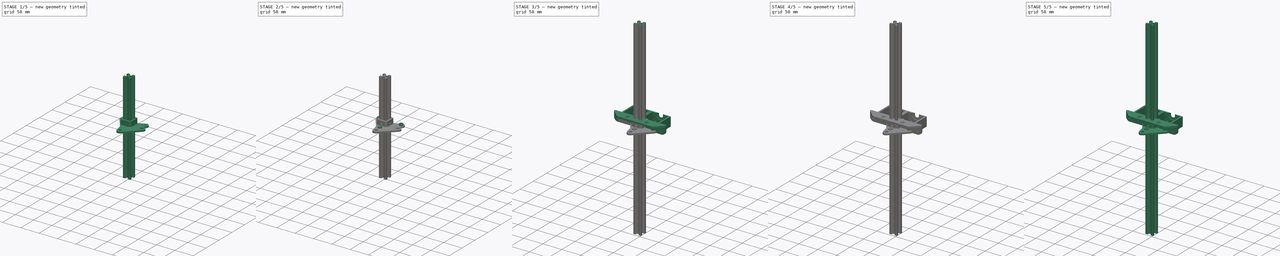
[diagram: build sequence overview — one tinted view per stage of 5, left to right]
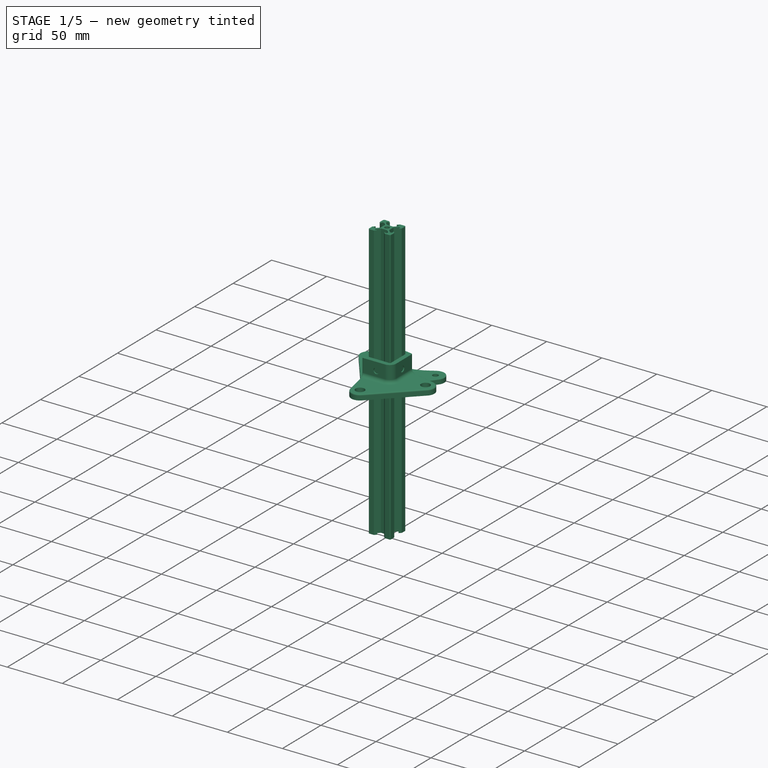
[diagram: stage 1 of 5 — iso view after this stage's code; geometry added in this stage tinted green]
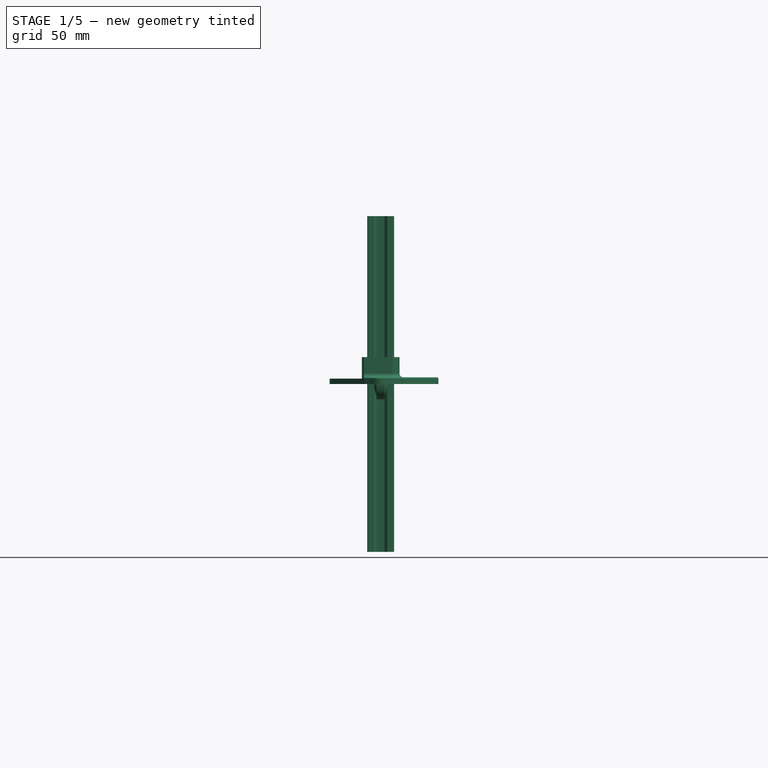
[diagram: stage 1 of 5 — front view after this stage's code; geometry added in this stage tinted green]
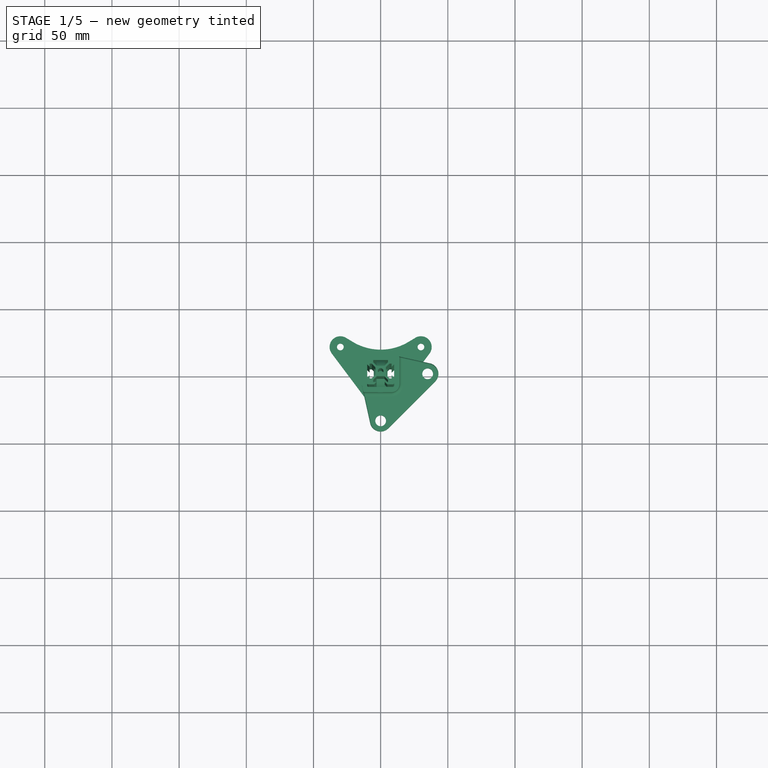
[diagram: stage 1 of 5 — top view after this stage's code; geometry added in this stage tinted green]
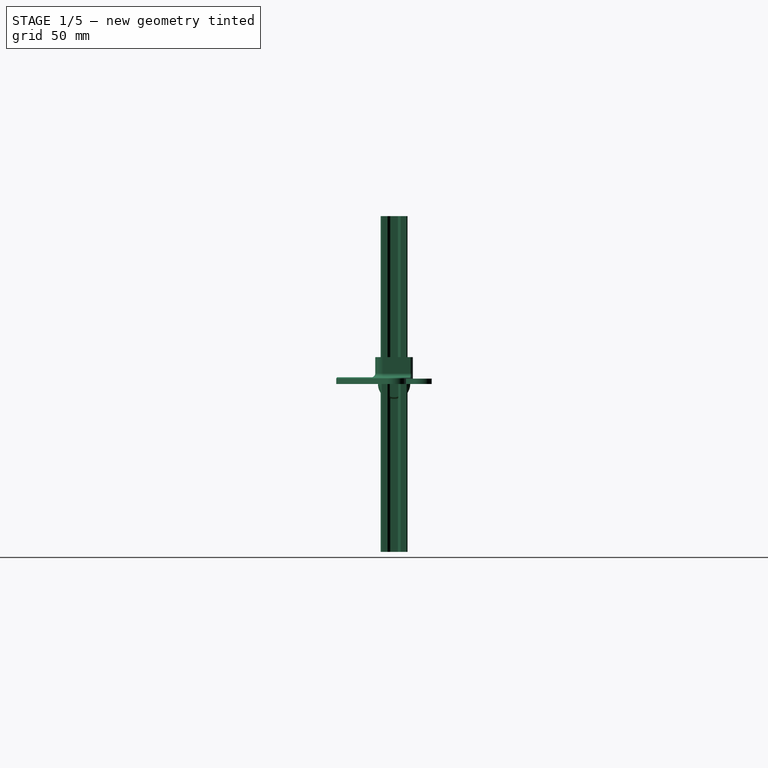
[diagram: stage 1 of 5 — right view after this stage's code; geometry added in this stage tinted green]
FCSTD DOCUMENT  (FreeCAD 0.18R15969 (Git))
Label: hotbar_box
License: All rights reserved
LicenseURL: http://en.wikipedia.org/wiki/All_rights_reserved
objects: Sketcher::SketchObject×119, PartDesign::Pad×46, PartDesign::Body×45, PartDesign::Pocket×34, App::Part×29, PartDesign::Hole×26, PartDesign::PolarPattern×24, PartDesign::Fillet×15, PartDesign::Revolution×12, Spreadsheet::Sheet×1, PartDesign::Chamfer×1
note: 440 computed .brp shape members not serialized (recipe doc carries the construction recipe); baked Part::Feature solids carry a one-line shape summary decoded from their .brp

FEATURE [PartDesign::Body] Body031  label="V-Slot Rail013"
  Group = -> [Sketch094,Pad032,PolarPattern016]
  Origin = -> Origin060
  Placement = pos=(0,135,55) rot=(0,1,0;1.5708rad)
  Tip = -> PolarPattern016
  expr: Placement.Base.z = dim.z_len / 2 - 10 - 80
  expr: Placement.Base.y = +dim.y_len / 2 - 10
FEATURE [App::Part] Part001  label="X-rails"
  Group = -> [Body,Body001,Body002,Body003,Body030,Body031]
  Origin = -> Origin002
FEATURE [App::Part] Part029
  Group = -> [Body026,Body027,Body028,Body029]
  Origin = -> Origin061
  Placement = pos=(0,125,0) rot=(1,0,0;1.5708rad)
  expr: Placement.Base.y = dim.y_len / 2 - 20
FEATURE [Sketcher::SketchObject] Sketch095
  MapMode = 5
  Support = -> [XY_Plane062]
  sketch-geometry (22):
    g0: LineSegment StartX=-9 StartY=-10 StartZ=0 EndX=9 EndY=-10 EndZ=0
    g1: LineSegment StartX=10 StartY=-9 StartZ=0 EndX=10 EndY=9 EndZ=0
    g2: LineSegment StartX=9 StartY=10 StartZ=0 EndX=-9 EndY=10 EndZ=0
    g3: LineSegment StartX=-10 StartY=9 StartZ=0 EndX=-10 EndY=-9 EndZ=0
    g4: Circle CenterX=30 CenterY=20 CenterZ=0 NormalX=0 NormalY=0 NormalZ=1 AngleXU=0 Radius=2.5
    g5: Circle CenterX=-30 CenterY=20 CenterZ=0 NormalX=0 NormalY=0 NormalZ=1 AngleXU=0 Radius=2.5
    g6: Circle CenterX=0 CenterY=-20 CenterZ=0 NormalX=0 NormalY=0 NormalZ=1 AngleXU=0 Radius=2.5
    g7: LineSegment StartX=36.4 StartY=15.2 StartZ=0 EndX=6.4 EndY=-24.8 EndZ=0
    g8: LineSegment StartX=-6.4 StartY=-24.8 StartZ=0 EndX=-36.4 EndY=15.2 EndZ=0
    g9: ArcOfCircle CenterX=-30 CenterY=20 CenterZ=0 NormalX=0 NormalY=0 NormalZ=1 AngleXU=0 Radius=8 StartAngle=1.03351 EndAngle=3.78509
    g10: ArcOfCircle CenterX=30 CenterY=20 CenterZ=0 NormalX=0 NormalY=0 NormalZ=1 AngleXU=0 Radius=8 StartAngle=5.63968 EndAngle=8.39126
    g11: ArcOfCircle CenterX=0 CenterY=-20 CenterZ=0 NormalX=0 NormalY=0 NormalZ=1 AngleXU=0 Radius=8 StartAngle=3.78509 EndAngle=5.63968
    g12: LineSegment StartX=-25.9056 StartY=26.8728 StartZ=0 EndX=-20.4721 EndY=23.6359 EndZ=0
    g13: LineSegment StartX=25.9056 StartY=26.8728 StartZ=0 EndX=20.4721 EndY=23.6359 EndZ=0
    g14: ArcOfCircle CenterX=0 CenterY=58 CenterZ=0 NormalX=0 NormalY=0 NormalZ=1 AngleXU=0 Radius=40 StartAngle=4.17511 EndAngle=5.24967
    g15: ArcOfCircle CenterX=-9 CenterY=9 CenterZ=0 NormalX=0 NormalY=0 NormalZ=1 AngleXU=0 Radius=1 StartAngle=1.5708 EndAngle=3.14159
    g16: ArcOfCircle CenterX=9 CenterY=9 CenterZ=0 NormalX=0 NormalY=0 NormalZ=1 AngleXU=0 Radius=1 StartAngle=7e-16 EndAngle=1.5708
    g17: ArcOfCircle CenterX=9 CenterY=-9 CenterZ=0 NormalX=0 NormalY=0 NormalZ=1 AngleXU=0 Radius=1 StartAngle=4.71239 EndAngle=6.28319
    g18: ArcOfCircle CenterX=-9 CenterY=-9 CenterZ=0 NormalX=0 NormalY=0 NormalZ=1 AngleXU=0 Radius=1 StartAngle=3.14159 EndAngle=4.71239
    g19: LineSegment [constr] StartX=-9 StartY=9 StartZ=0 EndX=0 EndY=0 EndZ=0
    g20: LineSegment [constr] StartX=0 StartY=0 StartZ=0 EndX=9 EndY=9 EndZ=0
    g21: LineSegment [constr] StartX=0 StartY=0 StartZ=0 EndX=-9 EndY=-9 EndZ=0
  constraints (52):
    c: Horizontal(g0)
    c: Horizontal(g2)
    c: Vertical(g1)
    c: Vertical(g3)
    c: Equal(g2,g3)
    c: PointOnObject(g6,g-2)
    c: Radius(g6) = 2.5
    c: Equal(g6,g4)
    c: Equal(g6,g5)
    c: Tangent(g8,g9) = 1.5708
    c: Tangent(g7,g10) = 1.5708
    c: Tangent(g7,g11) = 1.5708
    c: Tangent(g8,g11) = 1.5708
    c: Coincident(g11,g6)
    c: Coincident(g10,g4)
    c: Coincident(g5,g9)
    c: DistanceX(g5,g-1) = 30
    c: DistanceY(g-1,g5) = 20
    c: DistanceX(g-1,g4) = 30
    c: DistanceY(g-1,g4) = 20
    c: DistanceY(g6,g-1) = 20
    c: Radius(g10) = 8
    c: Equal(g10,g11)
    c: Equal(g10,g9)
    c: Tangent(g12,g9) = 1.5708
    c: Tangent(g10,g13) = -1.5708
    c: Tangent(g12,g14) = -1.5708
    c: Tangent(g13,g14) = 1.5708
    c: PointOnObject(g14,g-2)
    c: Tangent(g3,g15) = -1.5708
    c: Tangent(g2,g15) = -1.5708
    c: Tangent(g2,g16) = -1.5708
    c: Tangent(g1,g16) = -1.5708
    c: Tangent(g1,g17) = -1.5708
    c: Tangent(g0,g17) = -1.5708
    c: Tangent(g0,g18) = -1.5708
    c: Tangent(g3,g18) = -1.5708
    c: DistanceX(g3,g1) = 20
    c: Radius(g17) = 1
    c: Equal(g17,g18)
    c: Equal(g17,g15)
    c: Equal(g17,g16)
    c: Coincident(g19,g15)
    c: Coincident(g19,g-1)
    c: Coincident(g20,g-1)
    c: Coincident(g20,g16)
    c: Coincident(g21,g-1)
    c: Coincident(g21,g18)
    c: Equal(g19,g21)
    c: Equal(g21,g20)
    c: Radius(g14) = 40
    c: DistanceY(g-1,g14) = 58
FEATURE [Sketcher::SketchObject] Sketch097
  MapMode = 5
  Placement = pos=(-8.2e-14,13,0) rot=(0,0.707107,0.707107;3.14159rad)
  sketch-geometry (1):
    g0: Circle CenterX=0 CenterY=10.5 CenterZ=0 NormalX=0 NormalY=0 NormalZ=1 AngleXU=0 Radius=2.5
  constraints (2):
    c: PointOnObject(g0,g-2)
    c: Radius(g0) = 2.5
FEATURE [Sketcher::SketchObject] Sketch099
  MapMode = 5
  Placement = pos=(0,0,0) rot=(1,0,0;1.5708rad)
  Support = -> [XZ_Plane063]
  sketch-geometry (8):
    g0: LineSegment StartX=-3 StartY=12 StartZ=0 EndX=-5.1 EndY=9.9 EndZ=0
    g1: LineSegment StartX=-3 StartY=12 StartZ=0 EndX=3 EndY=12 EndZ=0
    g2: LineSegment StartX=3 StartY=12 StartZ=0 EndX=5.1 EndY=9.9 EndZ=0
    g3: LineSegment StartX=-5.1 StartY=9.9 StartZ=0 EndX=-5.1 EndY=2.5 EndZ=0
    g4: LineSegment StartX=-5.1 StartY=2.5 StartZ=0 EndX=5.1 EndY=2.5 EndZ=0
    g5: LineSegment StartX=5.1 StartY=2.5 StartZ=0 EndX=5.1 EndY=9.9 EndZ=0
    g6: LineSegment [constr] StartX=-5.1 StartY=2.5 StartZ=0 EndX=0 EndY=0 EndZ=0
    g7: LineSegment [constr] StartX=0 StartY=0 StartZ=0 EndX=5.1 EndY=2.5 EndZ=0
  constraints (22):
    c: Coincident(g1,g0)
    c: Horizontal(g1)
    c: Coincident(g2,g1)
    c: Coincident(g3,g0)
    c: Vertical(g3)
    c: Coincident(g4,g3)
    c: Horizontal(g4)
    c: Coincident(g5,g4)
    c: Coincident(g5,g2)
    c: Vertical(g5)
    c: Coincident(g6,g3)
    c: Coincident(g6,g-1)
    c: Coincident(g7,g-1)
    c: Coincident(g7,g4)
    c: Equal(g7,g6)
    c: DistanceY(g-1,g3) = 2.5
    c: DistanceX(g3,g4) = 10.2
    c: Equal(g0,g2)
    c: Equal(g3,g5)
    c: Angle(g3,g0) = 2.35619
    c: DistanceX(g1,g1) = 6
    c: DistanceY(g-1,g0) = 12
FEATURE [Sketcher::SketchObject] Sketch100
  MapMode = 5
  Placement = pos=(0,0,0) rot=(1,0,0;1.5708rad)
  Support = -> [XZ_Plane064]
  sketch-geometry (8):
    g0: LineSegment StartX=-3 StartY=12 StartZ=0 EndX=-5.1 EndY=9.9 EndZ=0
    g1: LineSegment StartX=-3 StartY=12 StartZ=0 EndX=3 EndY=12 EndZ=0
    g2: LineSegment StartX=3 StartY=12 StartZ=0 EndX=5.1 EndY=9.9 EndZ=0
    g3: LineSegment StartX=-5.1 StartY=9.9 StartZ=0 EndX=-5.1 EndY=2.5 EndZ=0
    g4: LineSegment StartX=-5.1 StartY=2.5 StartZ=0 EndX=5.1 EndY=2.5 EndZ=0
    g5: LineSegment StartX=5.1 StartY=2.5 StartZ=0 EndX=5.1 EndY=9.9 EndZ=0
    g6: LineSegment [constr] StartX=-5.1 StartY=2.5 StartZ=0 EndX=0 EndY=0 EndZ=0
    g7: LineSegment [constr] StartX=0 StartY=0 StartZ=0 EndX=5.1 EndY=2.5 EndZ=0
  constraints (22):
    c: Coincident(g1,g0)
    c: Horizontal(g1)
    c: Coincident(g2,g1)
    c: Coincident(g3,g0)
    c: Vertical(g3)
    c: Coincident(g4,g3)
    c: Horizontal(g4)
    c: Coincident(g5,g4)
    c: Coincident(g5,g2)
    c: Vertical(g5)
    c: Coincident(g6,g3)
    c: Coincident(g6,g-1)
    c: Coincident(g7,g-1)
    c: Coincident(g7,g4)
    c: Equal(g7,g6)
    c: DistanceY(g-1,g3) = 2.5
    c: DistanceX(g3,g4) = 10.2
    c: Equal(g0,g2)
    c: Equal(g3,g5)
    c: Angle(g3,g0) = 2.35619
    c: DistanceX(g1,g1) = 6
    c: DistanceY(g-1,g0) = 12
FEATURE [Sketcher::SketchObject] Sketch101
  MapMode = 5
  Placement = pos=(0,0,0) rot=(1,0,0;1.5708rad)
  Support = -> [XZ_Plane065]
  sketch-geometry (8):
    g0: LineSegment StartX=-3 StartY=12 StartZ=0 EndX=-5.1 EndY=9.9 EndZ=0
    g1: LineSegment StartX=-3 StartY=12 StartZ=0 EndX=3 EndY=12 EndZ=0
    g2: LineSegment StartX=3 StartY=12 StartZ=0 EndX=5.1 EndY=9.9 EndZ=0
    g3: LineSegment StartX=-5.1 StartY=9.9 StartZ=0 EndX=-5.1 EndY=2.5 EndZ=0
    g4: LineSegment StartX=-5.1 StartY=2.5 StartZ=0 EndX=5.1 EndY=2.5 EndZ=0
    g5: LineSegment StartX=5.1 StartY=2.5 StartZ=0 EndX=5.1 EndY=9.9 EndZ=0
    g6: LineSegment [constr] StartX=-5.1 StartY=2.5 StartZ=0 EndX=0 EndY=0 EndZ=0
    g7: LineSegment [constr] StartX=0 StartY=0 StartZ=0 EndX=5.1 EndY=2.5 EndZ=0
  constraints (22):
    c: Coincident(g1,g0)
    c: Horizontal(g1)
    c: Coincident(g2,g1)
    c: Coincident(g3,g0)
    c: Vertical(g3)
    c: Coincident(g4,g3)
    c: Horizontal(g4)
    c: Coincident(g5,g4)
    c: Coincident(g5,g2)
    c: Vertical(g5)
    c: Coincident(g6,g3)
    c: Coincident(g6,g-1)
    c: Coincident(g7,g-1)
    c: Coincident(g7,g4)
    c: Equal(g7,g6)
    c: DistanceY(g-1,g3) = 2.5
    c: DistanceX(g3,g4) = 10.2
    c: Equal(g0,g2)
    c: Equal(g3,g5)
    c: Angle(g3,g0) = 2.35619
    c: DistanceX(g1,g1) = 6
    c: DistanceY(g-1,g0) = 12
FEATURE [PartDesign::Revolution] Revolution003
  Angle = 360
  Axis = (1,0,0)
  Base = (0,0,0)
  Placement = pos=(0,0,0) rot=(1,0,0;1.5708rad)
  Profile = -> Sketch101
  ReferenceAxis = -> X_Axis066
  Refine = true
  Reversed = true
FEATURE [PartDesign::Revolution] Revolution004
  Angle = 360
  Axis = (1,0,0)
  Base = (0,0,0)
  Placement = pos=(0,0,0) rot=(1,0,0;1.5708rad)
  Profile = -> Sketch100
  ReferenceAxis = -> X_Axis065
  Refine = true
  Reversed = true
FEATURE [PartDesign::Pad] Pad033
  Length = 4
  Length2 = 100
  Profile = -> Sketch095
  Refine = true
  Type = 0
FEATURE [Sketcher::SketchObject] Sketch096
  ExternalGeometry = -> [Pad033]
  MapMode = 5
  Placement = pos=(0,0,4) rot=(0,0,1;0rad)
  Support = -> [Pad033]
  sketch-geometry (16):
    g0: LineSegment StartX=-9 StartY=-10 StartZ=0 EndX=9 EndY=-10 EndZ=0
    g1: LineSegment StartX=10 StartY=-9 StartZ=0 EndX=10 EndY=9 EndZ=0
    g2: LineSegment StartX=9 StartY=10 StartZ=0 EndX=-9 EndY=10 EndZ=0
    g3: LineSegment StartX=-10 StartY=9 StartZ=0 EndX=-10 EndY=-9 EndZ=0
    g4: ArcOfCircle CenterX=-9 CenterY=9 CenterZ=0 NormalX=0 NormalY=0 NormalZ=1 AngleXU=0 Radius=1 StartAngle=1.5708 EndAngle=3.14159
    g5: ArcOfCircle CenterX=9 CenterY=9 CenterZ=0 NormalX=0 NormalY=0 NormalZ=1 AngleXU=0 Radius=1 StartAngle=-2.07923e-11 EndAngle=1.5708
    g6: ArcOfCircle CenterX=9 CenterY=-9 CenterZ=0 NormalX=0 NormalY=0 NormalZ=1 AngleXU=0 Radius=1 StartAngle=4.71239 EndAngle=6.28319
    g7: ArcOfCircle CenterX=-9 CenterY=-9 CenterZ=0 NormalX=0 NormalY=0 NormalZ=1 AngleXU=0 Radius=1 StartAngle=3.14159 EndAngle=4.71239
    g8: LineSegment StartX=-9 StartY=13 StartZ=0 EndX=9 EndY=13 EndZ=0
    g9: LineSegment StartX=13 StartY=9 StartZ=0 EndX=13 EndY=-9 EndZ=0
    g10: LineSegment StartX=9 StartY=-13 StartZ=0 EndX=-9 EndY=-13 EndZ=0
    g11: LineSegment StartX=-13 StartY=-9 StartZ=0 EndX=-13 EndY=9 EndZ=0
    g12: ArcOfCircle CenterX=-9 CenterY=9 CenterZ=0 NormalX=0 NormalY=0 NormalZ=1 AngleXU=0 Radius=4 StartAngle=1.5708 EndAngle=3.14159
    g13: ArcOfCircle CenterX=9 CenterY=9 CenterZ=0 NormalX=0 NormalY=0 NormalZ=1 AngleXU=0 Radius=4 StartAngle=0 EndAngle=1.5708
    g14: ArcOfCircle CenterX=9 CenterY=-9 CenterZ=0 NormalX=0 NormalY=0 NormalZ=1 AngleXU=0 Radius=4 StartAngle=4.71239 EndAngle=6.28319
    g15: ArcOfCircle CenterX=-9 CenterY=-9 CenterZ=0 NormalX=0 NormalY=0 NormalZ=1 AngleXU=0 Radius=4 StartAngle=3.14159 EndAngle=4.71239
  constraints (30):
    c: Tangent(g3,g4) = -1.5708
    c: Tangent(g2,g4) = -1.5708
    c: Tangent(g2,g5) = -1.5708
    c: Tangent(g1,g5) = -1.5708
    c: Tangent(g1,g6) = -1.5708
    c: Tangent(g0,g6) = -1.5708
    c: Tangent(g0,g7) = -1.5708
    c: Tangent(g3,g7) = -1.5708
    c: Coincident(g1,g-4)
    c: Coincident(g2,g-4)
    c: Coincident(g1,g-5)
    c: Coincident(g0,g-5)
    c: Coincident(g3,g-6)
    c: Coincident(g3,g-3)
    c: Tangent(g11,g12) = 1.5708
    c: Tangent(g8,g12) = 1.5708
    c: Tangent(g8,g13) = 1.5708
    c: Tangent(g9,g13) = 1.5708
    c: Tangent(g9,g14) = 1.5708
    c: Tangent(g10,g14) = 1.5708
    c: Tangent(g10,g15) = 1.5708
    c: Tangent(g11,g15) = 1.5708
    c: Coincident(g12,g4)
    c: Coincident(g13,g5)
    c: Coincident(g7,g15)
    c: Coincident(g14,g6)
    c: Radius(g12) = 4
    c: Equal(g12,g13)
    c: Equal(g12,g14)
    c: Equal(g12,g15)
FEATURE [PartDesign::Pad] Pad034
  BaseFeature = -> Pad033
  Length = 14
  Length2 = 100
  Profile = -> Sketch096
  Refine = true
  Type = 0
FEATURE [PartDesign::Body] Body041
  Group = -> [Sketch113,Revolution011]
  Origin = -> Origin074
  Placement = pos=(0,-20,-10) rot=(0,1,0;1.5708rad)
  Tip = -> Revolution011
FEATURE [App::Part] Part033
  Group = -> [Body036,Body037,Body038,Body039]
  Origin = -> Origin078
  Placement = pos=(0,125,0) rot=(1,0,0;1.5708rad)
  expr: Placement.Base.y = dim.y_len / 2 - 20
FEATURE [PartDesign::Body] Body042
  Group = -> [Sketch114,Revolution010]
  Origin = -> Origin075
  Placement = pos=(-30,20,-10) rot=(0,1,0;1.5708rad)
  Tip = -> Revolution010
FEATURE [PartDesign::Body] Body043
  Group = -> [Sketch115,Revolution009]
  Origin = -> Origin076
  Placement = pos=(30,20,-10) rot=(0,1,0;1.5708rad)
  Tip = -> Revolution009
FEATURE [App::Part] Part032
  Group = -> [Body040,Body041,Body042,Body043]
  Origin = -> Origin077
  Placement = pos=(0,0,0) rot=(1,0,0;1.5708rad)
FEATURE [App::Part] Part034
  Group = -> [Part032]
  Origin = -> Origin072
  Placement = pos=(0,-125,0) rot=(0,0,1;3.14159rad)
  expr: Placement.Base.y = -dim.y_len / 2 + 20
FEATURE [Sketcher::SketchObject] Sketch116
  MapMode = 5
  Support = -> [XY_Plane081]
  sketch-geometry (20):
    g0: LineSegment [constr] StartX=-10 StartY=4.9 StartZ=0 EndX=-10 EndY=10 EndZ=0
    g1: LineSegment [constr] StartX=-10 StartY=10 StartZ=0 EndX=-4.9 EndY=10 EndZ=0
    g2: LineSegment StartX=-4.9 StartY=10 StartZ=0 EndX=-3.1 EndY=8.2 EndZ=0
    g3: LineSegment StartX=-3.1 StartY=8.2 StartZ=0 EndX=-5.49934 EndY=8.2 EndZ=0
    g4: LineSegment StartX=-5.49934 StartY=8.2 StartZ=0 EndX=-5.49934 EndY=6.56 EndZ=0
    g5: LineSegment StartX=-5.49934 StartY=6.56 StartZ=0 EndX=-2.84 EndY=3.90066 EndZ=0
    g6: LineSegment StartX=-2.84 StartY=3.90066 StartZ=0 EndX=0 EndY=3.90066 EndZ=0
    g7: LineSegment [constr] StartX=0 StartY=0 StartZ=0 EndX=0 EndY=3.90066 EndZ=0
    g8: LineSegment [constr] StartX=0 StartY=0 StartZ=0 EndX=-3.90066 EndY=0 EndZ=0
    g9: LineSegment StartX=-3.90066 StartY=0 StartZ=0 EndX=-3.90066 EndY=2.84 EndZ=0
    g10: LineSegment StartX=-3.90066 StartY=2.84 StartZ=0 EndX=-6.56 EndY=5.49934 EndZ=0
    g11: LineSegment StartX=-6.56 StartY=5.49934 StartZ=0 EndX=-8.2 EndY=5.49934 EndZ=0
    g12: LineSegment StartX=-8.2 StartY=5.49934 StartZ=0 EndX=-8.2 EndY=3.1 EndZ=0
    g13: LineSegment StartX=-8.2 StartY=3.1 StartZ=0 EndX=-10 EndY=4.9 EndZ=0
    g14: LineSegment StartX=-3.90066 StartY=0 StartZ=0 EndX=-2.1 EndY=3e-16 EndZ=0
    g15: LineSegment StartX=0 StartY=3.90066 StartZ=0 EndX=0 EndY=2.1 EndZ=0
    g16: ArcOfCircle CenterX=0 CenterY=0 CenterZ=0 NormalX=0 NormalY=0 NormalZ=1 AngleXU=0 Radius=2.1 StartAngle=1.5708 EndAngle=3.14159
    g17: LineSegment StartX=-4.9 StartY=10 StartZ=0 EndX=-9 EndY=10 EndZ=0
    g18: LineSegment StartX=-10 StartY=4.9 StartZ=0 EndX=-10 EndY=9 EndZ=0
    g19: ArcOfCircle CenterX=-9 CenterY=9 CenterZ=0 NormalX=0 NormalY=0 NormalZ=1 AngleXU=0 Radius=1 StartAngle=1.5708 EndAngle=3.14159
  constraints (56):
    c: Vertical(g0)
    c: Coincident(g1,g0)
    c: Horizontal(g1)
    c: Coincident(g2,g1)
    c: Coincident(g3,g2)
    c: Horizontal(g3)
    c: Coincident(g4,g3)
    c: Vertical(g4)
    c: Coincident(g5,g4)
    c: Coincident(g6,g5)
    c: PointOnObject(g6,g-2)
    c: Horizontal(g6)
    c: Coincident(g7,g-1)
    c: Coincident(g7,g6)
    c: Coincident(g8,g7)
    c: PointOnObject(g8,g-1)
    c: Coincident(g9,g8)
    c: Vertical(g9)
    c: Coincident(g10,g9)
    c: Coincident(g11,g10)
    c: Horizontal(g11)
    c: Coincident(g12,g11)
    c: Vertical(g12)
    c: Coincident(g13,g12)
    c: Coincident(g13,g0)
    c: Equal(g9,g6)
    c: Equal(g8,g7)
    c: Equal(g5,g10)
    c: Equal(g4,g11)
    c: Equal(g3,g12)
    c: Equal(g13,g2)
    c: Equal(g1,g0)
    c: DistanceX(g0,g7) = 10
    c: DistanceY(g7,g0) = 10
    c: DistanceX(g2,g7) = 3.1
    c: Angle(g2,g3) = 0.785398
    c: DistanceY(g2,g1) = 1.8
    c: DistanceX(g6,g6) = 2.84
    c: Parallel(g5,g2)
    c: Distance(g4,g10) = 1.5
    c: DistanceX(g11,g10) = 1.64
    c: Coincident(g14,g9)
    c: PointOnObject(g14,g8)
    c: Coincident(g15,g6)
    c: PointOnObject(g15,g7)
    c: Coincident(g16,g-1)
    c: Coincident(g16,g14)
    c: Coincident(g16,g15)
    c: Radius(g16) = 2.1
    c: Coincident(g17,g2)
    c: Coincident(g18,g13)
    c: Tangent(g18,g19) = 1.5708
    c: Tangent(g17,g19) = -1.5708
    c: PointOnObject(g18,g0)
    c: PointOnObject(g17,g1)
    c: Radius(g19) = 1
FEATURE [PartDesign::Pad] Pad042
  Length = 250
  Length2 = 100
  Midplane = true
  Profile = -> Sketch116
  Refine = true
  Type = 0
  expr: Length = dim.y_len - 40
FEATURE [PartDesign::PolarPattern] PolarPattern020
  Angle = 360
  Axis = -> Sketch116 [N_Axis]
  BaseFeature = -> Pad042
  Occurrences = 4
  Originals = -> [Pad042]
  Refine = true
FEATURE [PartDesign::Body] Body044  label="V-Slot Rail014"
  Group = -> [Sketch116,Pad042,PolarPattern020]
  Origin = -> Origin081
  Placement = pos=(0,0,0) rot=(1,0,0;1.5708rad)
  Tip = -> PolarPattern020
FEATURE [Sketcher::SketchObject] Sketch117
  MapMode = 5
  Support = -> [XY_Plane082]
  sketch-geometry (20):
    g0: LineSegment [constr] StartX=-10 StartY=4.9 StartZ=0 EndX=-10 EndY=10 EndZ=0
    g1: LineSegment [constr] StartX=-10 StartY=10 StartZ=0 EndX=-4.9 EndY=10 EndZ=0
    g2: LineSegment StartX=-4.9 StartY=10 StartZ=0 EndX=-3.1 EndY=8.2 EndZ=0
    g3: LineSegment StartX=-3.1 StartY=8.2 StartZ=0 EndX=-5.49934 EndY=8.2 EndZ=0
    g4: LineSegment StartX=-5.49934 StartY=8.2 StartZ=0 EndX=-5.49934 EndY=6.56 EndZ=0
    g5: LineSegment StartX=-5.49934 StartY=6.56 StartZ=0 EndX=-2.84 EndY=3.90066 EndZ=0
    g6: LineSegment StartX=-2.84 StartY=3.90066 StartZ=0 EndX=0 EndY=3.90066 EndZ=0
    g7: LineSegment [constr] StartX=0 StartY=0 StartZ=0 EndX=0 EndY=3.90066 EndZ=0
    g8: LineSegment [constr] StartX=0 StartY=0 StartZ=0 EndX=-3.90066 EndY=0 EndZ=0
    g9: LineSegment StartX=-3.90066 StartY=0 StartZ=0 EndX=-3.90066 EndY=2.84 EndZ=0
    g10: LineSegment StartX=-3.90066 StartY=2.84 StartZ=0 EndX=-6.56 EndY=5.49934 EndZ=0
    g11: LineSegment StartX=-6.56 StartY=5.49934 StartZ=0 EndX=-8.2 EndY=5.49934 EndZ=0
    g12: LineSegment StartX=-8.2 StartY=5.49934 StartZ=0 EndX=-8.2 EndY=3.1 EndZ=0
    g13: LineSegment StartX=-8.2 StartY=3.1 StartZ=0 EndX=-10 EndY=4.9 EndZ=0
    g14: LineSegment StartX=-3.90066 StartY=0 StartZ=0 EndX=-2.1 EndY=3e-16 EndZ=0
    g15: LineSegment StartX=0 StartY=3.90066 StartZ=0 EndX=0 EndY=2.1 EndZ=0
    g16: ArcOfCircle CenterX=0 CenterY=0 CenterZ=0 NormalX=0 NormalY=0 NormalZ=1 AngleXU=0 Radius=2.1 StartAngle=1.5708 EndAngle=3.14159
    g17: LineSegment StartX=-4.9 StartY=10 StartZ=0 EndX=-9 EndY=10 EndZ=0
    g18: LineSegment StartX=-10 StartY=4.9 StartZ=0 EndX=-10 EndY=9 EndZ=0
    g19: ArcOfCircle CenterX=-9 CenterY=9 CenterZ=0 NormalX=0 NormalY=0 NormalZ=1 AngleXU=0 Radius=1 StartAngle=1.5708 EndAngle=3.14159
  constraints (56):
    c: Vertical(g0)
    c: Coincident(g1,g0)
    c: Horizontal(g1)
    c: Coincident(g2,g1)
    c: Coincident(g3,g2)
    c: Horizontal(g3)
    c: Coincident(g4,g3)
    c: Vertical(g4)
    c: Coincident(g5,g4)
    c: Coincident(g6,g5)
    c: PointOnObject(g6,g-2)
    c: Horizontal(g6)
    c: Coincident(g7,g-1)
    c: Coincident(g7,g6)
    c: Coincident(g8,g7)
    c: PointOnObject(g8,g-1)
    c: Coincident(g9,g8)
    c: Vertical(g9)
    c: Coincident(g10,g9)
    c: Coincident(g11,g10)
    c: Horizontal(g11)
    c: Coincident(g12,g11)
    c: Vertical(g12)
    c: Coincident(g13,g12)
    c: Coincident(g13,g0)
    c: Equal(g9,g6)
    c: Equal(g8,g7)
    c: Equal(g5,g10)
    c: Equal(g4,g11)
    c: Equal(g3,g12)
    c: Equal(g13,g2)
    c: Equal(g1,g0)
    c: DistanceX(g0,g7) = 10
    c: DistanceY(g7,g0) = 10
    c: DistanceX(g2,g7) = 3.1
    c: Angle(g2,g3) = 0.785398
    c: DistanceY(g2,g1) = 1.8
    c: DistanceX(g6,g6) = 2.84
    c: Parallel(g5,g2)
    c: Distance(g4,g10) = 1.5
    c: DistanceX(g11,g10) = 1.64
    c: Coincident(g14,g9)
    c: PointOnObject(g14,g8)
    c: Coincident(g15,g6)
    c: PointOnObject(g15,g7)
    c: Coincident(g16,g-1)
    c: Coincident(g16,g14)
    c: Coincident(g16,g15)
    c: Radius(g16) = 2.1
    c: Coincident(g17,g2)
    c: Coincident(g18,g13)
    c: Tangent(g18,g19) = 1.5708
    c: Tangent(g17,g19) = -1.5708
    c: PointOnObject(g18,g0)
    c: PointOnObject(g17,g1)
    c: Radius(g19) = 1
FEATURE [PartDesign::Pad] Pad043
  Length = 250
  Length2 = 100
  Midplane = true
  Profile = -> Sketch117
  Refine = true
  Type = 0
  expr: Length = dim.y_len - 40
FEATURE [PartDesign::PolarPattern] PolarPattern021
  Angle = 360
  Axis = -> Sketch117 [N_Axis]
  BaseFeature = -> Pad043
  Occurrences = 4
  Originals = -> [Pad043]
  Refine = true
FEATURE [PartDesign::Body] Body045  label="V-Slot Rail015"
  Group = -> [Sketch117,Pad043,PolarPattern021]
  Origin = -> Origin082
  Placement = pos=(0,0,0) rot=(1,0,0;1.5708rad)
  Tip = -> PolarPattern021
FEATURE [Sketcher::SketchObject] Sketch118
  MapMode = 5
  Support = -> [XY_Plane084]
  sketch-geometry (25):
    g0: LineSegment StartX=-8 StartY=10 StartZ=0 EndX=8 EndY=10 EndZ=0
    g1: LineSegment StartX=10 StartY=8 StartZ=0 EndX=10 EndY=-8 EndZ=0
    g2: LineSegment StartX=8 StartY=-10 StartZ=0 EndX=-8 EndY=-10 EndZ=0
    g3: LineSegment StartX=-10 StartY=-8 StartZ=0 EndX=-10 EndY=8 EndZ=0
    g4: ArcOfCircle CenterX=-8 CenterY=8 CenterZ=0 NormalX=0 NormalY=0 NormalZ=1 AngleXU=0 Radius=2 StartAngle=1.5708 EndAngle=3.14159
    g5: ArcOfCircle CenterX=8 CenterY=8 CenterZ=0 NormalX=0 NormalY=0 NormalZ=1 AngleXU=0 Radius=2 StartAngle=0 EndAngle=1.5708
    g6: ArcOfCircle CenterX=8 CenterY=-8 CenterZ=0 NormalX=0 NormalY=0 NormalZ=1 AngleXU=0 Radius=2 StartAngle=4.71239 EndAngle=6.28319
    g7: ArcOfCircle CenterX=-8 CenterY=-8 CenterZ=0 NormalX=0 NormalY=0 NormalZ=1 AngleXU=0 Radius=2 StartAngle=3.14159 EndAngle=4.71239
    g8: LineSegment [constr] StartX=-8 StartY=8 StartZ=0 EndX=0 EndY=0 EndZ=0
    g9: LineSegment [constr] StartX=0 StartY=0 StartZ=0 EndX=8 EndY=8 EndZ=0
    g10: LineSegment [constr] StartX=0 StartY=0 StartZ=0 EndX=-8 EndY=-8 EndZ=0
    g11: LineSegment StartX=-8 StartY=14 StartZ=0 EndX=8 EndY=14 EndZ=0
    g12: LineSegment StartX=9.29165 StartY=13.8593 StartZ=0 EndX=36.7222 EndY=7.81243 EndZ=0
    g13: LineSegment StartX=40.6569 StartY=-5.65685 StartZ=0 EndX=5.65685 EndY=-40.6569 EndZ=0
    g14: LineSegment StartX=-7.81243 StartY=-36.7222 StartZ=0 EndX=-13.8593 EndY=-9.29165 EndZ=0
    g15: LineSegment StartX=-14 StartY=-8 StartZ=0 EndX=-14 EndY=8 EndZ=0
    g16: ArcOfCircle CenterX=-8 CenterY=8 CenterZ=0 NormalX=0 NormalY=0 NormalZ=1 AngleXU=0 Radius=6 StartAngle=1.5708 EndAngle=3.14159
    g17: ArcOfCircle CenterX=8 CenterY=8 CenterZ=0 NormalX=0 NormalY=0 NormalZ=1 AngleXU=0 Radius=6 StartAngle=1.35382 EndAngle=1.5708
    g18: ArcOfCircle CenterX=35 CenterY=0 CenterZ=0 NormalX=0 NormalY=0 NormalZ=1 AngleXU=0 Radius=8 StartAngle=5.49779 EndAngle=7.63701
    g19: ArcOfCircle CenterX=0 CenterY=-35 CenterZ=0 NormalX=0 NormalY=0 NormalZ=1 AngleXU=0 Radius=8 StartAngle=3.35857 EndAngle=5.49779
    g20: ArcOfCircle CenterX=-8 CenterY=-8 CenterZ=0 NormalX=0 NormalY=0 NormalZ=1 AngleXU=0 Radius=6 StartAngle=3.14159 EndAngle=3.35857
    g21: LineSegment [constr] StartX=0 StartY=0 StartZ=0 EndX=35 EndY=0 EndZ=0
    g22: LineSegment [constr] StartX=0 StartY=0 StartZ=0 EndX=0 EndY=-35 EndZ=0
    g23: Circle CenterX=35 CenterY=0 CenterZ=0 NormalX=0 NormalY=0 NormalZ=1 AngleXU=0 Radius=4
    g24: Circle CenterX=0 CenterY=-35 CenterZ=0 NormalX=0 NormalY=0 NormalZ=1 AngleXU=0 Radius=4
  constraints (56):
    c: Horizontal(g0)
    c: Horizontal(g2)
    c: Vertical(g1)
    c: Vertical(g3)
    c: Tangent(g3,g4) = 1.5708
    c: Tangent(g0,g4) = 1.5708
    c: Tangent(g0,g5) = 1.5708
    c: Tangent(g1,g5) = 1.5708
    c: Tangent(g1,g6) = 1.5708
    c: Tangent(g2,g6) = 1.5708
    c: Tangent(g2,g7) = 1.5708
    c: Tangent(g3,g7) = 1.5708
    c: Radius(g7) = 2
    c: Equal(g7,g4)
    c: Equal(g7,g5)
    c: Equal(g7,g6)
    c: DistanceX(g3,g1) = 20
    c: Equal(g3,g0)
    c: Coincident(g8,g4)
    c: Coincident(g8,g-1)
    c: Coincident(g9,g-1)
    c: Coincident(g9,g5)
    c: Coincident(g10,g-1)
    c: Coincident(g10,g7)
    c: Equal(g10,g8)
    c: Equal(g8,g9)
    c: Horizontal(g11)
    c: Vertical(g15)
    c: Tangent(g15,g16) = 1.5708
    c: Tangent(g11,g16) = 1.5708
    c: Tangent(g11,g17) = 1.5708
    c: Tangent(g12,g17) = 1.5708
    c: Tangent(g12,g18) = 1.5708
    c: Tangent(g13,g18) = 1.5708
    c: Tangent(g13,g19) = 1.5708
    c: Tangent(g14,g19) = 1.5708
    c: Tangent(g14,g20) = 1.5708
    c: Tangent(g15,g20) = 1.5708
    c: Coincident(g16,g4)
    c: Coincident(g17,g5)
    c: Coincident(g20,g7)
    c: DistanceY(g0,g11) = 4
    c: PointOnObject(g18,g-1)
    c: PointOnObject(g19,g-2)
    c: Equal(g19,g18)
    c: Coincident(g21,g-1)
    c: Coincident(g21,g18)
    c: Coincident(g22,g-1)
    c: Coincident(g22,g19)
    c: Equal(g22,g21)
    c: DistanceX(g21,g21) = 35
    c: Coincident(g23,g18)
    c: Coincident(g24,g19)
    c: Equal(g24,g23)
    c: Radius(g23) = 4
    c: Radius(g18) = 8
FEATURE [PartDesign::Pad] Pad044
  Length = 5
  Length2 = 100
  Profile = -> Sketch118
  Refine = true
  Type = 0
FEATURE [Sketcher::SketchObject] Sketch119
  ExternalGeometry = -> [Pad044]
  MapMode = 5
  Placement = pos=(0,0,5) rot=(0,0,1;0rad)
  Support = -> [Pad044]
  sketch-geometry (18):
    g0: LineSegment StartX=-8 StartY=10 StartZ=0 EndX=8 EndY=10 EndZ=0
    g1: LineSegment StartX=10 StartY=8 StartZ=0 EndX=10 EndY=-8 EndZ=0
    g2: LineSegment StartX=8 StartY=-10 StartZ=0 EndX=-8 EndY=-10 EndZ=0
    g3: LineSegment StartX=-10 StartY=-8 StartZ=0 EndX=-10 EndY=8 EndZ=0
    g4: ArcOfCircle CenterX=-8 CenterY=8 CenterZ=0 NormalX=0 NormalY=0 NormalZ=1 AngleXU=0 Radius=2 StartAngle=1.5708 EndAngle=3.14159
    g5: ArcOfCircle CenterX=8 CenterY=8 CenterZ=0 NormalX=0 NormalY=0 NormalZ=1 AngleXU=0 Radius=2 StartAngle=0 EndAngle=1.5708
    g6: ArcOfCircle CenterX=8 CenterY=-8 CenterZ=0 NormalX=0 NormalY=0 NormalZ=1 AngleXU=0 Radius=2 StartAngle=4.71239 EndAngle=6.28319
    g7: ArcOfCircle CenterX=-8 CenterY=-8 CenterZ=0 NormalX=0 NormalY=0 NormalZ=1 AngleXU=0 Radius=2 StartAngle=3.14159 EndAngle=4.71239
    g8: LineSegment StartX=-8 StartY=14 StartZ=0 EndX=8 EndY=14 EndZ=0
    g9: LineSegment StartX=14 StartY=12.8214 StartZ=0 EndX=14 EndY=-8 EndZ=0
    g10: LineSegment StartX=8 StartY=-14 StartZ=0 EndX=-12.8214 EndY=-14 EndZ=0
    g11: LineSegment StartX=-14 StartY=-8 StartZ=0 EndX=-14 EndY=8 EndZ=0
    g12: ArcOfCircle CenterX=-8 CenterY=8 CenterZ=0 NormalX=0 NormalY=0 NormalZ=1 AngleXU=0 Radius=6 StartAngle=1.5708 EndAngle=3.14159
    g13: ArcOfCircle CenterX=8 CenterY=-8 CenterZ=0 NormalX=0 NormalY=0 NormalZ=1 AngleXU=0 Radius=6 StartAngle=4.71239 EndAngle=6.28319
    g14: ArcOfCircle CenterX=-8 CenterY=-8 CenterZ=0 NormalX=0 NormalY=0 NormalZ=1 AngleXU=0 Radius=6 StartAngle=3.14159 EndAngle=3.35857
    g15: ArcOfCircle CenterX=8 CenterY=8 CenterZ=0 NormalX=0 NormalY=0 NormalZ=1 AngleXU=0 Radius=6 StartAngle=1.35382 EndAngle=1.5708
    g16: LineSegment StartX=14 StartY=12.8214 StartZ=0 EndX=9.29165 EndY=13.8593 EndZ=0
    g17: LineSegment StartX=-12.8214 StartY=-14 StartZ=0 EndX=-13.8593 EndY=-9.29165 EndZ=0
  constraints (43):
    c: Coincident(g1,g-10)
    c: Coincident(g1,g-9)
    c: Coincident(g2,g-8)
    c: Coincident(g2,g-7)
    c: Coincident(g3,g-6)
    c: Coincident(g3,g-5)
    c: Coincident(g0,g-10)
    c: Coincident(g0,g-4)
    c: Coincident(g4,g-4)
    c: Coincident(g4,g3)
    c: Coincident(g4,g0)
    c: Coincident(g5,g-10)
    c: Coincident(g5,g0)
    c: Coincident(g5,g1)
    c: Coincident(g6,g-8)
    c: Coincident(g6,g2)
    c: Coincident(g6,g1)
    c: Coincident(g7,g-6)
    c: Coincident(g7,g2)
    c: Coincident(g7,g3)
    c: Tangent(g11,g12) = 1.5708
    c: Tangent(g8,g12) = 1.5708
    c: Tangent(g9,g13) = 1.5708
    c: Tangent(g10,g13) = 1.5708
    c: Coincident(g13,g6)
    c: Coincident(g4,g12)
    c: Horizontal(g8)
    c: Vertical(g9)
    c: Horizontal(g10)
    c: DistanceY(g0,g8) = 4
    c: Coincident(g14,g7)
    c: Coincident(g14,g11)
    c: Coincident(g14,g-12)
    c: Coincident(g15,g5)
    c: Coincident(g15,g8)
    c: Coincident(g15,g-11)
    c: PointOnObject(g9,g-11)
    c: PointOnObject(g10,g-12)
    c: Coincident(g16,g9)
    c: Coincident(g16,g15)
    c: Coincident(g17,g10)
    c: Coincident(g17,g14)
    c: Equal(g13,g12)
FEATURE [PartDesign::Pad] Pad045
  BaseFeature = -> Pad044
  Length = 15
  Length2 = 100
  Profile = -> Sketch119
  Refine = true
  Type = 0
FEATURE [PartDesign::Fillet] Fillet009
  Base = -> Pad045 [Edge34,Edge35,Edge36]
  BaseFeature = -> Pad045
  Radius = 3
FEATURE [PartDesign::Fillet] Fillet001
  Base = -> Fillet009 [Edge29]
  BaseFeature = -> Fillet009
  Radius = 1
FEATURE [Sketcher::SketchObject] Sketch120
  MapMode = 5
  Placement = pos=(0,14,0) rot=(0,0.707107,0.707107;3.14159rad)
  Support = -> [Fillet001]
  sketch-geometry (2):
    g0: LineSegment [constr] StartX=0 StartY=0 StartZ=0 EndX=0 EndY=12.5 EndZ=0
    g1: Circle CenterX=0 CenterY=12.5 CenterZ=0 NormalX=0 NormalY=0 NormalZ=1 AngleXU=0 Radius=2.5
  constraints (5):
    c: Coincident(g0,g-1)
    c: PointOnObject(g0,g-2)
    c: Coincident(g1,g0)
    c: Radius(g1) = 2.5
    c: DistanceY(g0,g0) = 12.5
FEATURE [PartDesign::Pocket] Pocket032
  BaseFeature = -> Fillet001
  Length = 9
  Length2 = 100
  Midplane = true
  Profile = -> Sketch120
  Refine = true
  Type = 0
FEATURE [PartDesign::PolarPattern] PolarPattern022
  Angle = 360
  Axis = -> Z_Axis084
  BaseFeature = -> Pocket032
  Occurrences = 4
  Originals = -> [Pocket032]
  Refine = true
FEATURE [PartDesign::Body] Body046
  Group = -> [Sketch118,Pad044,Sketch119,Pad045,Fillet009,Fillet001,Sketch120,Pocket032,PolarPattern022]
  Origin = -> Origin084
  Placement = pos=(0,0,0) rot=(1,0,0;1.5708rad)
  Tip = -> PolarPattern022
FEATURE [Sketcher::SketchObject] Sketch121
  MapMode = 5
  Support = -> [XY_Plane085]
  sketch-geometry (25):
    g0: LineSegment StartX=-8 StartY=10 StartZ=0 EndX=8 EndY=10 EndZ=0
    g1: LineSegment StartX=10 StartY=8 StartZ=0 EndX=10 EndY=-8 EndZ=0
    g2: LineSegment StartX=8 StartY=-10 StartZ=0 EndX=-8 EndY=-10 EndZ=0
    g3: LineSegment StartX=-10 StartY=-8 StartZ=0 EndX=-10 EndY=8 EndZ=0
    g4: ArcOfCircle CenterX=-8 CenterY=8 CenterZ=0 NormalX=0 NormalY=0 NormalZ=1 AngleXU=0 Radius=2 StartAngle=1.5708 EndAngle=3.14159
    g5: ArcOfCircle CenterX=8 CenterY=8 CenterZ=0 NormalX=0 NormalY=0 NormalZ=1 AngleXU=0 Radius=2 StartAngle=0 EndAngle=1.5708
    g6: ArcOfCircle CenterX=8 CenterY=-8 CenterZ=0 NormalX=0 NormalY=0 NormalZ=1 AngleXU=0 Radius=2 StartAngle=4.71239 EndAngle=6.28319
    g7: ArcOfCircle CenterX=-8 CenterY=-8 CenterZ=0 NormalX=0 NormalY=0 NormalZ=1 AngleXU=0 Radius=2 StartAngle=3.14159 EndAngle=4.71239
    g8: LineSegment [constr] StartX=-8 StartY=8 StartZ=0 EndX=0 EndY=0 EndZ=0
    g9: LineSegment [constr] StartX=0 StartY=0 StartZ=0 EndX=8 EndY=8 EndZ=0
    g10: LineSegment [constr] StartX=0 StartY=0 StartZ=0 EndX=-8 EndY=-8 EndZ=0
    g11: LineSegment StartX=-8 StartY=14 StartZ=0 EndX=8 EndY=14 EndZ=0
    g12: LineSegment StartX=9.29165 StartY=13.8593 StartZ=0 EndX=36.7222 EndY=7.81243 EndZ=0
    g13: LineSegment StartX=40.6569 StartY=-5.65685 StartZ=0 EndX=5.65685 EndY=-40.6569 EndZ=0
    g14: LineSegment StartX=-7.81243 StartY=-36.7222 StartZ=0 EndX=-13.8593 EndY=-9.29165 EndZ=0
    g15: LineSegment StartX=-14 StartY=-8 StartZ=0 EndX=-14 EndY=8 EndZ=0
    g16: ArcOfCircle CenterX=-8 CenterY=8 CenterZ=0 NormalX=0 NormalY=0 NormalZ=1 AngleXU=0 Radius=6 StartAngle=1.5708 EndAngle=3.14159
    g17: ArcOfCircle CenterX=8 CenterY=8 CenterZ=0 NormalX=0 NormalY=0 NormalZ=1 AngleXU=0 Radius=6 StartAngle=1.35382 EndAngle=1.5708
    g18: ArcOfCircle CenterX=35 CenterY=0 CenterZ=0 NormalX=0 NormalY=0 NormalZ=1 AngleXU=0 Radius=8 StartAngle=5.49779 EndAngle=7.63701
    g19: ArcOfCircle CenterX=0 CenterY=-35 CenterZ=0 NormalX=0 NormalY=0 NormalZ=1 AngleXU=0 Radius=8 StartAngle=3.35857 EndAngle=5.49779
    g20: ArcOfCircle CenterX=-8 CenterY=-8 CenterZ=0 NormalX=0 NormalY=0 NormalZ=1 AngleXU=0 Radius=6 StartAngle=3.14159 EndAngle=3.35857
    g21: LineSegment [constr] StartX=0 StartY=0 StartZ=0 EndX=35 EndY=0 EndZ=0
    g22: LineSegment [constr] StartX=0 StartY=0 StartZ=0 EndX=0 EndY=-35 EndZ=0
    g23: Circle CenterX=35 CenterY=0 CenterZ=0 NormalX=0 NormalY=0 NormalZ=1 AngleXU=0 Radius=4
    g24: Circle CenterX=0 CenterY=-35 CenterZ=0 NormalX=0 NormalY=0 NormalZ=1 AngleXU=0 Radius=4
  constraints (56):
    c: Horizontal(g0)
    c: Horizontal(g2)
    c: Vertical(g1)
    c: Vertical(g3)
    c: Tangent(g3,g4) = 1.5708
    c: Tangent(g0,g4) = 1.5708
    c: Tangent(g0,g5) = 1.5708
    c: Tangent(g1,g5) = 1.5708
    c: Tangent(g1,g6) = 1.5708
    c: Tangent(g2,g6) = 1.5708
    c: Tangent(g2,g7) = 1.5708
    c: Tangent(g3,g7) = 1.5708
    c: Radius(g7) = 2
    c: Equal(g7,g4)
    c: Equal(g7,g5)
    c: Equal(g7,g6)
    c: DistanceX(g3,g1) = 20
    c: Equal(g3,g0)
    c: Coincident(g8,g4)
    c: Coincident(g8,g-1)
    c: Coincident(g9,g-1)
    c: Coincident(g9,g5)
    c: Coincident(g10,g-1)
    c: Coincident(g10,g7)
    c: Equal(g10,g8)
    c: Equal(g8,g9)
    c: Horizontal(g11)
    c: Vertical(g15)
    c: Tangent(g15,g16) = 1.5708
    c: Tangent(g11,g16) = 1.5708
    c: Tangent(g11,g17) = 1.5708
    c: Tangent(g12,g17) = 1.5708
    c: Tangent(g12,g18) = 1.5708
    c: Tangent(g13,g18) = 1.5708
    c: Tangent(g13,g19) = 1.5708
    c: Tangent(g14,g19) = 1.5708
    c: Tangent(g14,g20) = 1.5708
    c: Tangent(g15,g20) = 1.5708
    c: Coincident(g16,g4)
    c: Coincident(g17,g5)
    c: Coincident(g20,g7)
    c: DistanceY(g0,g11) = 4
    c: PointOnObject(g18,g-1)
    c: PointOnObject(g19,g-2)
    c: Equal(g19,g18)
    c: Coincident(g21,g-1)
    c: Coincident(g21,g18)
    c: Coincident(g22,g-1)
    c: Coincident(g22,g19)
    c: Equal(g22,g21)
    c: DistanceX(g21,g21) = 35
    c: Coincident(g23,g18)
    c: Coincident(g24,g19)
    c: Equal(g24,g23)
    c: Radius(g23) = 4
    c: Radius(g18) = 8
FEATURE [PartDesign::Pad] Pad047
  Length = 5
  Length2 = 100
  Profile = -> Sketch121
  Refine = true
  Type = 0
FEATURE [Sketcher::SketchObject] Sketch122
  ExternalGeometry = -> [Pad047]
  MapMode = 5
  Placement = pos=(0,0,5) rot=(0,0,1;0rad)
  Support = -> [Pad047]
  sketch-geometry (18):
    g0: LineSegment StartX=-8 StartY=10 StartZ=0 EndX=8 EndY=10 EndZ=0
    g1: LineSegment StartX=10 StartY=8 StartZ=0 EndX=10 EndY=-8 EndZ=0
    g2: LineSegment StartX=8 StartY=-10 StartZ=0 EndX=-8 EndY=-10 EndZ=0
    g3: LineSegment StartX=-10 StartY=-8 StartZ=0 EndX=-10 EndY=8 EndZ=0
    g4: ArcOfCircle CenterX=-8 CenterY=8 CenterZ=0 NormalX=0 NormalY=0 NormalZ=1 AngleXU=0 Radius=2 StartAngle=1.5708 EndAngle=3.14159
    g5: ArcOfCircle CenterX=8 CenterY=8 CenterZ=0 NormalX=0 NormalY=0 NormalZ=1 AngleXU=0 Radius=2 StartAngle=0 EndAngle=1.5708
    g6: ArcOfCircle CenterX=8 CenterY=-8 CenterZ=0 NormalX=0 NormalY=0 NormalZ=1 AngleXU=0 Radius=2 StartAngle=4.71239 EndAngle=6.28319
    g7: ArcOfCircle CenterX=-8 CenterY=-8 CenterZ=0 NormalX=0 NormalY=0 NormalZ=1 AngleXU=0 Radius=2 StartAngle=3.14159 EndAngle=4.71239
    g8: LineSegment StartX=-8 StartY=14 StartZ=0 EndX=8 EndY=14 EndZ=0
    g9: LineSegment StartX=14 StartY=12.8214 StartZ=0 EndX=14 EndY=-8 EndZ=0
    g10: LineSegment StartX=8 StartY=-14 StartZ=0 EndX=-12.8214 EndY=-14 EndZ=0
    g11: LineSegment StartX=-14 StartY=-8 StartZ=0 EndX=-14 EndY=8 EndZ=0
    g12: ArcOfCircle CenterX=-8 CenterY=8 CenterZ=0 NormalX=0 NormalY=0 NormalZ=1 AngleXU=0 Radius=6 StartAngle=1.5708 EndAngle=3.14159
    g13: ArcOfCircle CenterX=8 CenterY=-8 CenterZ=0 NormalX=0 NormalY=0 NormalZ=1 AngleXU=0 Radius=6 StartAngle=4.71239 EndAngle=6.28319
    g14: ArcOfCircle CenterX=-8 CenterY=-8 CenterZ=0 NormalX=0 NormalY=0 NormalZ=1 AngleXU=0 Radius=6 StartAngle=3.14159 EndAngle=3.35857
    g15: ArcOfCircle CenterX=8 CenterY=8 CenterZ=0 NormalX=0 NormalY=0 NormalZ=1 AngleXU=0 Radius=6 StartAngle=1.35382 EndAngle=1.5708
    g16: LineSegment StartX=14 StartY=12.8214 StartZ=0 EndX=9.29165 EndY=13.8593 EndZ=0
    g17: LineSegment StartX=-12.8214 StartY=-14 StartZ=0 EndX=-13.8593 EndY=-9.29165 EndZ=0
  constraints (43):
    c: Coincident(g1,g-10)
    c: Coincident(g1,g-9)
    c: Coincident(g2,g-8)
    c: Coincident(g2,g-7)
    c: Coincident(g3,g-6)
    c: Coincident(g3,g-5)
    c: Coincident(g0,g-10)
    c: Coincident(g0,g-4)
    c: Coincident(g4,g-4)
    c: Coincident(g4,g3)
    c: Coincident(g4,g0)
    c: Coincident(g5,g-10)
    c: Coincident(g5,g0)
    c: Coincident(g5,g1)
    c: Coincident(g6,g-8)
    c: Coincident(g6,g2)
    c: Coincident(g6,g1)
    c: Coincident(g7,g-6)
    c: Coincident(g7,g2)
    c: Coincident(g7,g3)
    c: Tangent(g11,g12) = 1.5708
    c: Tangent(g8,g12) = 1.5708
    c: Tangent(g9,g13) = 1.5708
    c: Tangent(g10,g13) = 1.5708
    c: Coincident(g13,g6)
    c: Coincident(g4,g12)
    c: Horizontal(g8)
    c: Vertical(g9)
    c: Horizontal(g10)
    c: DistanceY(g0,g8) = 4
    c: Coincident(g14,g7)
    c: Coincident(g14,g11)
    c: Coincident(g14,g-12)
    c: Coincident(g15,g5)
    c: Coincident(g15,g8)
    c: Coincident(g15,g-11)
    c: PointOnObject(g9,g-11)
    c: PointOnObject(g10,g-12)
    c: Coincident(g16,g9)
    c: Coincident(g16,g15)
    c: Coincident(g17,g10)
    c: Coincident(g17,g14)
    c: Equal(g13,g12)
FEATURE [PartDesign::Pad] Pad046
  BaseFeature = -> Pad047
  Length = 15
  Length2 = 100
  Profile = -> Sketch122
  Refine = true
  Type = 0
FEATURE [PartDesign::Fillet] Fillet011
  Base = -> Pad046 [Edge34,Edge35,Edge36]
  BaseFeature = -> Pad046
  Radius = 3
FEATURE [PartDesign::Fillet] Fillet010
  Base = -> Fillet011 [Edge29]
  BaseFeature = -> Fillet011
  Radius = 1
FEATURE [Sketcher::SketchObject] Sketch123
  MapMode = 5
  Placement = pos=(0,14,0) rot=(0,0.707107,0.707107;3.14159rad)
  Support = -> [Fillet010]
  sketch-geometry (2):
    g0: LineSegment [constr] StartX=0 StartY=0 StartZ=0 EndX=0 EndY=12.5 EndZ=0
    g1: Circle CenterX=0 CenterY=12.5 CenterZ=0 NormalX=0 NormalY=0 NormalZ=1 AngleXU=0 Radius=2.5
  constraints (5):
    c: Coincident(g0,g-1)
    c: PointOnObject(g0,g-2)
    c: Coincident(g1,g0)
    c: Radius(g1) = 2.5
    c: DistanceY(g0,g0) = 12.5
FEATURE [PartDesign::Pocket] Pocket033
  BaseFeature = -> Fillet010
  Length = 9
  Length2 = 100
  Midplane = true
  Profile = -> Sketch123
  Refine = true
  Type = 0
FEATURE [PartDesign::PolarPattern] PolarPattern023
  Angle = 360
  Axis = -> Z_Axis085
  BaseFeature = -> Pocket033
  Occurrences = 4
  Originals = -> [Pocket033]
  Refine = true
FEATURE [PartDesign::Body] Body047
  Group = -> [Sketch121,Pad047,Sketch122,Pad046,Fillet011,Fillet010,Sketch123,Pocket033,PolarPattern023]
  Origin = -> Origin085
  Placement = pos=(0,0,0) rot=(1,0,0;1.5708rad)
  Tip = -> PolarPattern023
FEATURE [App::Part] Part038
  Group = -> [Body047]
  Origin = -> Origin086
  Placement = pos=(0,71,0) rot=(0,0,1;3.14159rad)
FEATURE [Sketcher::SketchObject] Sketch124
  MapMode = 5
  Support = -> [XY_Plane087]
  sketch-geometry (25):
    g0: LineSegment StartX=-8 StartY=10 StartZ=0 EndX=8 EndY=10 EndZ=0
    g1: LineSegment StartX=10 StartY=8 StartZ=0 EndX=10 EndY=-8 EndZ=0
    g2: LineSegment StartX=8 StartY=-10 StartZ=0 EndX=-8 EndY=-10 EndZ=0
    g3: LineSegment StartX=-10 StartY=-8 StartZ=0 EndX=-10 EndY=8 EndZ=0
    g4: ArcOfCircle CenterX=-8 CenterY=8 CenterZ=0 NormalX=0 NormalY=0 NormalZ=1 AngleXU=0 Radius=2 StartAngle=1.5708 EndAngle=3.14159
    g5: ArcOfCircle CenterX=8 CenterY=8 CenterZ=0 NormalX=0 NormalY=0 NormalZ=1 AngleXU=0 Radius=2 StartAngle=0 EndAngle=1.5708
    g6: ArcOfCircle CenterX=8 CenterY=-8 CenterZ=0 NormalX=0 NormalY=0 NormalZ=1 AngleXU=0 Radius=2 StartAngle=4.71239 EndAngle=6.28319
    g7: ArcOfCircle CenterX=-8 CenterY=-8 CenterZ=0 NormalX=0 NormalY=0 NormalZ=1 AngleXU=0 Radius=2 StartAngle=3.14159 EndAngle=4.71239
    g8: LineSegment [constr] StartX=-8 StartY=8 StartZ=0 EndX=0 EndY=0 EndZ=0
    g9: LineSegment [constr] StartX=0 StartY=0 StartZ=0 EndX=8 EndY=8 EndZ=0
    g10: LineSegment [constr] StartX=0 StartY=0 StartZ=0 EndX=-8 EndY=-8 EndZ=0
    g11: LineSegment StartX=-8 StartY=14 StartZ=0 EndX=8 EndY=14 EndZ=0
    g12: LineSegment StartX=9.29165 StartY=13.8593 StartZ=0 EndX=36.7222 EndY=7.81243 EndZ=0
    g13: LineSegment StartX=40.6569 StartY=-5.65685 StartZ=0 EndX=5.65685 EndY=-40.6569 EndZ=0
    g14: LineSegment StartX=-7.81243 StartY=-36.7222 StartZ=0 EndX=-13.8593 EndY=-9.29165 EndZ=0
    g15: LineSegment StartX=-14 StartY=-8 StartZ=0 EndX=-14 EndY=8 EndZ=0
    g16: ArcOfCircle CenterX=-8 CenterY=8 CenterZ=0 NormalX=0 NormalY=0 NormalZ=1 AngleXU=0 Radius=6 StartAngle=1.5708 EndAngle=3.14159
    g17: ArcOfCircle CenterX=8 CenterY=8 CenterZ=0 NormalX=0 NormalY=0 NormalZ=1 AngleXU=0 Radius=6 StartAngle=1.35382 EndAngle=1.5708
    g18: ArcOfCircle CenterX=35 CenterY=0 CenterZ=0 NormalX=0 NormalY=0 NormalZ=1 AngleXU=0 Radius=8 StartAngle=5.49779 EndAngle=7.63701
    g19: ArcOfCircle CenterX=0 CenterY=-35 CenterZ=0 NormalX=0 NormalY=0 NormalZ=1 AngleXU=0 Radius=8 StartAngle=3.35857 EndAngle=5.49779
    g20: ArcOfCircle CenterX=-8 CenterY=-8 CenterZ=0 NormalX=0 NormalY=0 NormalZ=1 AngleXU=0 Radius=6 StartAngle=3.14159 EndAngle=3.35857
    g21: LineSegment [constr] StartX=0 StartY=0 StartZ=0 EndX=35 EndY=0 EndZ=0
    g22: LineSegment [constr] StartX=0 StartY=0 StartZ=0 EndX=0 EndY=-35 EndZ=0
    g23: Circle CenterX=35 CenterY=0 CenterZ=0 NormalX=0 NormalY=0 NormalZ=1 AngleXU=0 Radius=4
    g24: Circle CenterX=0 CenterY=-35 CenterZ=0 NormalX=0 NormalY=0 NormalZ=1 AngleXU=0 Radius=4
  constraints (56):
    c: Horizontal(g0)
    c: Horizontal(g2)
    c: Vertical(g1)
    c: Vertical(g3)
    c: Tangent(g3,g4) = 1.5708
    c: Tangent(g0,g4) = 1.5708
    c: Tangent(g0,g5) = 1.5708
    c: Tangent(g1,g5) = 1.5708
    c: Tangent(g1,g6) = 1.5708
    c: Tangent(g2,g6) = 1.5708
    c: Tangent(g2,g7) = 1.5708
    c: Tangent(g3,g7) = 1.5708
    c: Radius(g7) = 2
    c: Equal(g7,g4)
    c: Equal(g7,g5)
    c: Equal(g7,g6)
    c: DistanceX(g3,g1) = 20
    c: Equal(g3,g0)
    c: Coincident(g8,g4)
    c: Coincident(g8,g-1)
    c: Coincident(g9,g-1)
    c: Coincident(g9,g5)
    c: Coincident(g10,g-1)
    c: Coincident(g10,g7)
    c: Equal(g10,g8)
    c: Equal(g8,g9)
    c: Horizontal(g11)
    c: Vertical(g15)
    c: Tangent(g15,g16) = 1.5708
    c: Tangent(g11,g16) = 1.5708
    c: Tangent(g11,g17) = 1.5708
    c: Tangent(g12,g17) = 1.5708
    c: Tangent(g12,g18) = 1.5708
    c: Tangent(g13,g18) = 1.5708
    c: Tangent(g13,g19) = 1.5708
    c: Tangent(g14,g19) = 1.5708
    c: Tangent(g14,g20) = 1.5708
    c: Tangent(g15,g20) = 1.5708
    c: Coincident(g16,g4)
    c: Coincident(g17,g5)
    c: Coincident(g20,g7)
    c: DistanceY(g0,g11) = 4
    c: PointOnObject(g18,g-1)
    c: PointOnObject(g19,g-2)
    c: Equal(g19,g18)
    c: Coincident(g21,g-1)
    c: Coincident(g21,g18)
    c: Coincident(g22,g-1)
    c: Coincident(g22,g19)
    c: Equal(g22,g21)
    c: DistanceX(g21,g21) = 35
    c: Coincident(g23,g18)
    c: Coincident(g24,g19)
    c: Equal(g24,g23)
    c: Radius(g23) = 4
    c: Radius(g18) = 8
FEATURE [PartDesign::Pad] Pad049
  Length = 5
  Length2 = 100
  Profile = -> Sketch124
  Refine = true
  Type = 0
FEATURE [Sketcher::SketchObject] Sketch125
  ExternalGeometry = -> [Pad049]
  MapMode = 5
  Placement = pos=(0,0,5) rot=(0,0,1;0rad)
  Support = -> [Pad049]
  sketch-geometry (18):
    g0: LineSegment StartX=-8 StartY=10 StartZ=0 EndX=8 EndY=10 EndZ=0
    g1: LineSegment StartX=10 StartY=8 StartZ=0 EndX=10 EndY=-8 EndZ=0
    g2: LineSegment StartX=8 StartY=-10 StartZ=0 EndX=-8 EndY=-10 EndZ=0
    g3: LineSegment StartX=-10 StartY=-8 StartZ=0 EndX=-10 EndY=8 EndZ=0
    g4: ArcOfCircle CenterX=-8 CenterY=8 CenterZ=0 NormalX=0 NormalY=0 NormalZ=1 AngleXU=0 Radius=2 StartAngle=1.5708 EndAngle=3.14159
    g5: ArcOfCircle CenterX=8 CenterY=8 CenterZ=0 NormalX=0 NormalY=0 NormalZ=1 AngleXU=0 Radius=2 StartAngle=0 EndAngle=1.5708
    g6: ArcOfCircle CenterX=8 CenterY=-8 CenterZ=0 NormalX=0 NormalY=0 NormalZ=1 AngleXU=0 Radius=2 StartAngle=4.71239 EndAngle=6.28319
    g7: ArcOfCircle CenterX=-8 CenterY=-8 CenterZ=0 NormalX=0 NormalY=0 NormalZ=1 AngleXU=0 Radius=2 StartAngle=3.14159 EndAngle=4.71239
    g8: LineSegment StartX=-8 StartY=14 StartZ=0 EndX=8 EndY=14 EndZ=0
    g9: LineSegment StartX=14 StartY=12.8214 StartZ=0 EndX=14 EndY=-8 EndZ=0
    g10: LineSegment StartX=8 StartY=-14 StartZ=0 EndX=-12.8214 EndY=-14 EndZ=0
    g11: LineSegment StartX=-14 StartY=-8 StartZ=0 EndX=-14 EndY=8 EndZ=0
    g12: ArcOfCircle CenterX=-8 CenterY=8 CenterZ=0 NormalX=0 NormalY=0 NormalZ=1 AngleXU=0 Radius=6 StartAngle=1.5708 EndAngle=3.14159
    g13: ArcOfCircle CenterX=8 CenterY=-8 CenterZ=0 NormalX=0 NormalY=0 NormalZ=1 AngleXU=0 Radius=6 StartAngle=4.71239 EndAngle=6.28319
    g14: ArcOfCircle CenterX=-8 CenterY=-8 CenterZ=0 NormalX=0 NormalY=0 NormalZ=1 AngleXU=0 Radius=6 StartAngle=3.14159 EndAngle=3.35857
    g15: ArcOfCircle CenterX=8 CenterY=8 CenterZ=0 NormalX=0 NormalY=0 NormalZ=1 AngleXU=0 Radius=6 StartAngle=1.35382 EndAngle=1.5708
    g16: LineSegment StartX=14 StartY=12.8214 StartZ=0 EndX=9.29165 EndY=13.8593 EndZ=0
    g17: LineSegment StartX=-12.8214 StartY=-14 StartZ=0 EndX=-13.8593 EndY=-9.29165 EndZ=0
  constraints (43):
    c: Coincident(g1,g-10)
    c: Coincident(g1,g-9)
    c: Coincident(g2,g-8)
    c: Coincident(g2,g-7)
    c: Coincident(g3,g-6)
    c: Coincident(g3,g-5)
    c: Coincident(g0,g-10)
    c: Coincident(g0,g-4)
    c: Coincident(g4,g-4)
    c: Coincident(g4,g3)
    c: Coincident(g4,g0)
    c: Coincident(g5,g-10)
    c: Coincident(g5,g0)
    c: Coincident(g5,g1)
    c: Coincident(g6,g-8)
    c: Coincident(g6,g2)
    c: Coincident(g6,g1)
    c: Coincident(g7,g-6)
    c: Coincident(g7,g2)
    c: Coincident(g7,g3)
    c: Tangent(g11,g12) = 1.5708
    c: Tangent(g8,g12) = 1.5708
    c: Tangent(g9,g13) = 1.5708
    c: Tangent(g10,g13) = 1.5708
    c: Coincident(g13,g6)
    c: Coincident(g4,g12)
    c: Horizontal(g8)
    c: Vertical(g9)
    c: Horizontal(g10)
    c: DistanceY(g0,g8) = 4
    c: Coincident(g14,g7)
    c: Coincident(g14,g11)
    c: Coincident(g14,g-12)
    c: Coincident(g15,g5)
    c: Coincident(g15,g8)
    c: Coincident(g15,g-11)
    c: PointOnObject(g9,g-11)
    c: PointOnObject(g10,g-12)
    c: Coincident(g16,g9)
    c: Coincident(g16,g15)
    c: Coincident(g17,g10)
    c: Coincident(g17,g14)
    c: Equal(g13,g12)
FEATURE [PartDesign::Pad] Pad048
  BaseFeature = -> Pad049
  Length = 15
  Length2 = 100
  Profile = -> Sketch125
  Refine = true
  Type = 0
FEATURE [PartDesign::Fillet] Fillet013
  Base = -> Pad048 [Edge34,Edge35,Edge36]
  BaseFeature = -> Pad048
  Radius = 3
FEATURE [PartDesign::Fillet] Fillet012
  Base = -> Fillet013 [Edge29]
  BaseFeature = -> Fillet013
  Radius = 1
FEATURE [Sketcher::SketchObject] Sketch126
  MapMode = 5
  Placement = pos=(0,14,0) rot=(0,0.707107,0.707107;3.14159rad)
  Support = -> [Fillet012]
  sketch-geometry (2):
    g0: LineSegment [constr] StartX=0 StartY=0 StartZ=0 EndX=0 EndY=12.5 EndZ=0
    g1: Circle CenterX=0 CenterY=12.5 CenterZ=0 NormalX=0 NormalY=0 NormalZ=1 AngleXU=0 Radius=2.5
  constraints (5):
    c: Coincident(g0,g-1)
    c: PointOnObject(g0,g-2)
    c: Coincident(g1,g0)
    c: Radius(g1) = 2.5
    c: DistanceY(g0,g0) = 12.5
FEATURE [PartDesign::Pocket] Pocket034
  BaseFeature = -> Fillet012
  Length = 9
  Length2 = 100
  Midplane = true
  Profile = -> Sketch126
  Refine = true
  Type = 0
FEATURE [PartDesign::PolarPattern] PolarPattern024
  Angle = 360
  Axis = -> Z_Axis087
  BaseFeature = -> Pocket034
  Occurrences = 4
  Originals = -> [Pocket034]
  Refine = true
FEATURE [PartDesign::Body] Body048
  Group = -> [Sketch124,Pad049,Sketch125,Pad048,Fillet013,Fillet012,Sketch126,Pocket034,PolarPattern024]
  Origin = -> Origin087
  Placement = pos=(0,0,0) rot=(1,0,0;1.5708rad)
  Tip = -> PolarPattern024
FEATURE [App::Part] Part039
  Group = -> [Body048]
  Origin = -> Origin088
  Placement = pos=(0,0,0) rot=(0,1,0;1.5708rad)
FEATURE [App::Part] Part040
  Group = -> [Part039]
  Origin = -> Origin089
  Placement = pos=(0,71,0) rot=(0,0,1;3.14159rad)
FEATURE [Sketcher::SketchObject] Sketch127
  MapMode = 5
  Support = -> [XY_Plane090]
  sketch-geometry (25):
    g0: LineSegment StartX=-8 StartY=10 StartZ=0 EndX=8 EndY=10 EndZ=0
    g1: LineSegment StartX=10 StartY=8 StartZ=0 EndX=10 EndY=-8 EndZ=0
    g2: LineSegment StartX=8 StartY=-10 StartZ=0 EndX=-8 EndY=-10 EndZ=0
    g3: LineSegment StartX=-10 StartY=-8 StartZ=0 EndX=-10 EndY=8 EndZ=0
    g4: ArcOfCircle CenterX=-8 CenterY=8 CenterZ=0 NormalX=0 NormalY=0 NormalZ=1 AngleXU=0 Radius=2 StartAngle=1.5708 EndAngle=3.14159
    g5: ArcOfCircle CenterX=8 CenterY=8 CenterZ=0 NormalX=0 NormalY=0 NormalZ=1 AngleXU=0 Radius=2 StartAngle=0 EndAngle=1.5708
    g6: ArcOfCircle CenterX=8 CenterY=-8 CenterZ=0 NormalX=0 NormalY=0 NormalZ=1 AngleXU=0 Radius=2 StartAngle=4.71239 EndAngle=6.28319
    g7: ArcOfCircle CenterX=-8 CenterY=-8 CenterZ=0 NormalX=0 NormalY=0 NormalZ=1 AngleXU=0 Radius=2 StartAngle=3.14159 EndAngle=4.71239
    g8: LineSegment [constr] StartX=-8 StartY=8 StartZ=0 EndX=0 EndY=0 EndZ=0
    g9: LineSegment [constr] StartX=0 StartY=0 StartZ=0 EndX=8 EndY=8 EndZ=0
    g10: LineSegment [constr] StartX=0 StartY=0 StartZ=0 EndX=-8 EndY=-8 EndZ=0
    g11: LineSegment StartX=-8 StartY=14 StartZ=0 EndX=8 EndY=14 EndZ=0
    g12: LineSegment StartX=9.29165 StartY=13.8593 StartZ=0 EndX=36.7222 EndY=7.81243 EndZ=0
    g13: LineSegment StartX=40.6569 StartY=-5.65685 StartZ=0 EndX=5.65685 EndY=-40.6569 EndZ=0
    g14: LineSegment StartX=-7.81243 StartY=-36.7222 StartZ=0 EndX=-13.8593 EndY=-9.29165 EndZ=0
    g15: LineSegment StartX=-14 StartY=-8 StartZ=0 EndX=-14 EndY=8 EndZ=0
    g16: ArcOfCircle CenterX=-8 CenterY=8 CenterZ=0 NormalX=0 NormalY=0 NormalZ=1 AngleXU=0 Radius=6 StartAngle=1.5708 EndAngle=3.14159
    g17: ArcOfCircle CenterX=8 CenterY=8 CenterZ=0 NormalX=0 NormalY=0 NormalZ=1 AngleXU=0 Radius=6 StartAngle=1.35382 EndAngle=1.5708
    g18: ArcOfCircle CenterX=35 CenterY=0 CenterZ=0 NormalX=0 NormalY=0 NormalZ=1 AngleXU=0 Radius=8 StartAngle=5.49779 EndAngle=7.63701
    g19: ArcOfCircle CenterX=0 CenterY=-35 CenterZ=0 NormalX=0 NormalY=0 NormalZ=1 AngleXU=0 Radius=8 StartAngle=3.35857 EndAngle=5.49779
    g20: ArcOfCircle CenterX=-8 CenterY=-8 CenterZ=0 NormalX=0 NormalY=0 NormalZ=1 AngleXU=0 Radius=6 StartAngle=3.14159 EndAngle=3.35857
    g21: LineSegment [constr] StartX=0 StartY=0 StartZ=0 EndX=35 EndY=0 EndZ=0
    g22: LineSegment [constr] StartX=0 StartY=0 StartZ=0 EndX=0 EndY=-35 EndZ=0
    g23: Circle CenterX=35 CenterY=0 CenterZ=0 NormalX=0 NormalY=0 NormalZ=1 AngleXU=0 Radius=4
    g24: Circle CenterX=0 CenterY=-35 CenterZ=0 NormalX=0 NormalY=0 NormalZ=1 AngleXU=0 Radius=4
  constraints (56):
    c: Horizontal(g0)
    c: Horizontal(g2)
    c: Vertical(g1)
    c: Vertical(g3)
    c: Tangent(g3,g4) = 1.5708
    c: Tangent(g0,g4) = 1.5708
    c: Tangent(g0,g5) = 1.5708
    c: Tangent(g1,g5) = 1.5708
    c: Tangent(g1,g6) = 1.5708
    c: Tangent(g2,g6) = 1.5708
    c: Tangent(g2,g7) = 1.5708
    c: Tangent(g3,g7) = 1.5708
    c: Radius(g7) = 2
    c: Equal(g7,g4)
    c: Equal(g7,g5)
    c: Equal(g7,g6)
    c: DistanceX(g3,g1) = 20
    c: Equal(g3,g0)
    c: Coincident(g8,g4)
    c: Coincident(g8,g-1)
    c: Coincident(g9,g-1)
    c: Coincident(g9,g5)
    c: Coincident(g10,g-1)
    c: Coincident(g10,g7)
    c: Equal(g10,g8)
    c: Equal(g8,g9)
    c: Horizontal(g11)
    c: Vertical(g15)
    c: Tangent(g15,g16) = 1.5708
    c: Tangent(g11,g16) = 1.5708
    c: Tangent(g11,g17) = 1.5708
    c: Tangent(g12,g17) = 1.5708
    c: Tangent(g12,g18) = 1.5708
    c: Tangent(g13,g18) = 1.5708
    c: Tangent(g13,g19) = 1.5708
    c: Tangent(g14,g19) = 1.5708
    c: Tangent(g14,g20) = 1.5708
    c: Tangent(g15,g20) = 1.5708
    c: Coincident(g16,g4)
    c: Coincident(g17,g5)
    c: Coincident(g20,g7)
    c: DistanceY(g0,g11) = 4
    c: PointOnObject(g18,g-1)
    c: PointOnObject(g19,g-2)
    c: Equal(g19,g18)
    c: Coincident(g21,g-1)
    c: Coincident(g21,g18)
    c: Coincident(g22,g-1)
    c: Coincident(g22,g19)
    c: Equal(g22,g21)
    c: DistanceX(g21,g21) = 35
    c: Coincident(g23,g18)
    c: Coincident(g24,g19)
    c: Equal(g24,g23)
    c: Radius(g23) = 4
    c: Radius(g18) = 8
FEATURE [PartDesign::Pad] Pad051
  Length = 5
  Length2 = 100
  Profile = -> Sketch127
  Refine = true
  Type = 0
FEATURE [Sketcher::SketchObject] Sketch128
  ExternalGeometry = -> [Pad051]
  MapMode = 5
  Placement = pos=(0,0,5) rot=(0,0,1;0rad)
  Support = -> [Pad051]
  sketch-geometry (18):
    g0: LineSegment StartX=-8 StartY=10 StartZ=0 EndX=8 EndY=10 EndZ=0
    g1: LineSegment StartX=10 StartY=8 StartZ=0 EndX=10 EndY=-8 EndZ=0
    g2: LineSegment StartX=8 StartY=-10 StartZ=0 EndX=-8 EndY=-10 EndZ=0
    g3: LineSegment StartX=-10 StartY=-8 StartZ=0 EndX=-10 EndY=8 EndZ=0
    g4: ArcOfCircle CenterX=-8 CenterY=8 CenterZ=0 NormalX=0 NormalY=0 NormalZ=1 AngleXU=0 Radius=2 StartAngle=1.5708 EndAngle=3.14159
    g5: ArcOfCircle CenterX=8 CenterY=8 CenterZ=0 NormalX=0 NormalY=0 NormalZ=1 AngleXU=0 Radius=2 StartAngle=0 EndAngle=1.5708
    g6: ArcOfCircle CenterX=8 CenterY=-8 CenterZ=0 NormalX=0 NormalY=0 NormalZ=1 AngleXU=0 Radius=2 StartAngle=4.71239 EndAngle=6.28319
    g7: ArcOfCircle CenterX=-8 CenterY=-8 CenterZ=0 NormalX=0 NormalY=0 NormalZ=1 AngleXU=0 Radius=2 StartAngle=3.14159 EndAngle=4.71239
    g8: LineSegment StartX=-8 StartY=14 StartZ=0 EndX=8 EndY=14 EndZ=0
    g9: LineSegment StartX=14 StartY=12.8214 StartZ=0 EndX=14 EndY=-8 EndZ=0
    g10: LineSegment StartX=8 StartY=-14 StartZ=0 EndX=-12.8214 EndY=-14 EndZ=0
    g11: LineSegment StartX=-14 StartY=-8 StartZ=0 EndX=-14 EndY=8 EndZ=0
    g12: ArcOfCircle CenterX=-8 CenterY=8 CenterZ=0 NormalX=0 NormalY=0 NormalZ=1 AngleXU=0 Radius=6 StartAngle=1.5708 EndAngle=3.14159
    g13: ArcOfCircle CenterX=8 CenterY=-8 CenterZ=0 NormalX=0 NormalY=0 NormalZ=1 AngleXU=0 Radius=6 StartAngle=4.71239 EndAngle=6.28319
    g14: ArcOfCircle CenterX=-8 CenterY=-8 CenterZ=0 NormalX=0 NormalY=0 NormalZ=1 AngleXU=0 Radius=6 StartAngle=3.14159 EndAngle=3.35857
    g15: ArcOfCircle CenterX=8 CenterY=8 CenterZ=0 NormalX=0 NormalY=0 NormalZ=1 AngleXU=0 Radius=6 StartAngle=1.35382 EndAngle=1.5708
    g16: LineSegment StartX=14 StartY=12.8214 StartZ=0 EndX=9.29165 EndY=13.8593 EndZ=0
    g17: LineSegment StartX=-12.8214 StartY=-14 StartZ=0 EndX=-13.8593 EndY=-9.29165 EndZ=0
  constraints (43):
    c: Coincident(g1,g-10)
    c: Coincident(g1,g-9)
    c: Coincident(g2,g-8)
    c: Coincident(g2,g-7)
    c: Coincident(g3,g-6)
    c: Coincident(g3,g-5)
    c: Coincident(g0,g-10)
    c: Coincident(g0,g-4)
    c: Coincident(g4,g-4)
    c: Coincident(g4,g3)
    c: Coincident(g4,g0)
    c: Coincident(g5,g-10)
    c: Coincident(g5,g0)
    c: Coincident(g5,g1)
    c: Coincident(g6,g-8)
    c: Coincident(g6,g2)
    c: Coincident(g6,g1)
    c: Coincident(g7,g-6)
    c: Coincident(g7,g2)
    c: Coincident(g7,g3)
    c: Tangent(g11,g12) = 1.5708
    c: Tangent(g8,g12) = 1.5708
    c: Tangent(g9,g13) = 1.5708
    c: Tangent(g10,g13) = 1.5708
    c: Coincident(g13,g6)
    c: Coincident(g4,g12)
    c: Horizontal(g8)
    c: Vertical(g9)
    c: Horizontal(g10)
    c: DistanceY(g0,g8) = 4
    c: Coincident(g14,g7)
    c: Coincident(g14,g11)
    c: Coincident(g14,g-12)
    c: Coincident(g15,g5)
    c: Coincident(g15,g8)
    c: Coincident(g15,g-11)
    c: PointOnObject(g9,g-11)
    c: PointOnObject(g10,g-12)
    c: Coincident(g16,g9)
    c: Coincident(g16,g15)
    c: Coincident(g17,g10)
    c: Coincident(g17,g14)
    c: Equal(g13,g12)
FEATURE [PartDesign::Pad] Pad050
  BaseFeature = -> Pad051
  Length = 15
  Length2 = 100
  Profile = -> Sketch128
  Refine = true
  Type = 0
FEATURE [PartDesign::Fillet] Fillet015
  Base = -> Pad050 [Edge34,Edge35,Edge36]
  BaseFeature = -> Pad050
  Radius = 3
FEATURE [PartDesign::Fillet] Fillet014
  Base = -> Fillet015 [Edge29]
  BaseFeature = -> Fillet015
  Radius = 1
FEATURE [Sketcher::SketchObject] Sketch129
  MapMode = 5
  Placement = pos=(0,14,0) rot=(0,0.707107,0.707107;3.14159rad)
  Support = -> [Fillet014]
  sketch-geometry (2):
    g0: LineSegment [constr] StartX=0 StartY=0 StartZ=0 EndX=0 EndY=12.5 EndZ=0
    g1: Circle CenterX=0 CenterY=12.5 CenterZ=0 NormalX=0 NormalY=0 NormalZ=1 AngleXU=0 Radius=2.5
  constraints (5):
    c: Coincident(g0,g-1)
    c: PointOnObject(g0,g-2)
    c: Coincident(g1,g0)
    c: Radius(g1) = 2.5
    c: DistanceY(g0,g0) = 12.5
FEATURE [PartDesign::Pocket] Pocket035
  BaseFeature = -> Fillet014
  Length = 9
  Length2 = 100
  Midplane = true
  Profile = -> Sketch129
  Refine = true
  Type = 0
FEATURE [PartDesign::PolarPattern] PolarPattern025
  Angle = 360
  Axis = -> Z_Axis090
  BaseFeature = -> Pocket035
  Occurrences = 4
  Originals = -> [Pocket035]
  Refine = true
FEATURE [PartDesign::Body] Body049
  Group = -> [Sketch127,Pad051,Sketch128,Pad050,Fillet015,Fillet014,Sketch129,Pocket035,PolarPattern025]
  Origin = -> Origin090
  Placement = pos=(0,0,0) rot=(1,0,0;1.5708rad)
  Tip = -> PolarPattern025
FEATURE [App::Part] Part041
  Group = -> [Body049]
  Origin = -> Origin091
  Placement = pos=(0,-71,0) rot=(0,1,0;1.5708rad)
FEATURE [App::Part] Part035  label="C 1"
  Group = -> [Part033,Part034,Body044,Part038,Part041]
  Origin = -> Origin079
  Placement = pos=(75,0,0) rot=(0,0,1;0rad)
FEATURE [App::Part] Part042
  Group = -> [Body046]
  Origin = -> Origin092
  Placement = pos=(0,-71,0) rot=(0,0,1;0rad)
FEATURE [App::Part] Part036  label="C 2"
  Group = -> [Part029,Part031,Body045,Part040,Part042]
  Origin = -> Origin080
  Placement = pos=(-75,0,0) rot=(0,0,1;0rad)
FEATURE [App::Part] Part037
  Group = -> [Part035,Part036]
  Origin = -> Origin083
  Placement = pos=(0,0,95) rot=(0,0,1;0rad)
  expr: Placement.Base.z = dim.z_len / 2 - 50
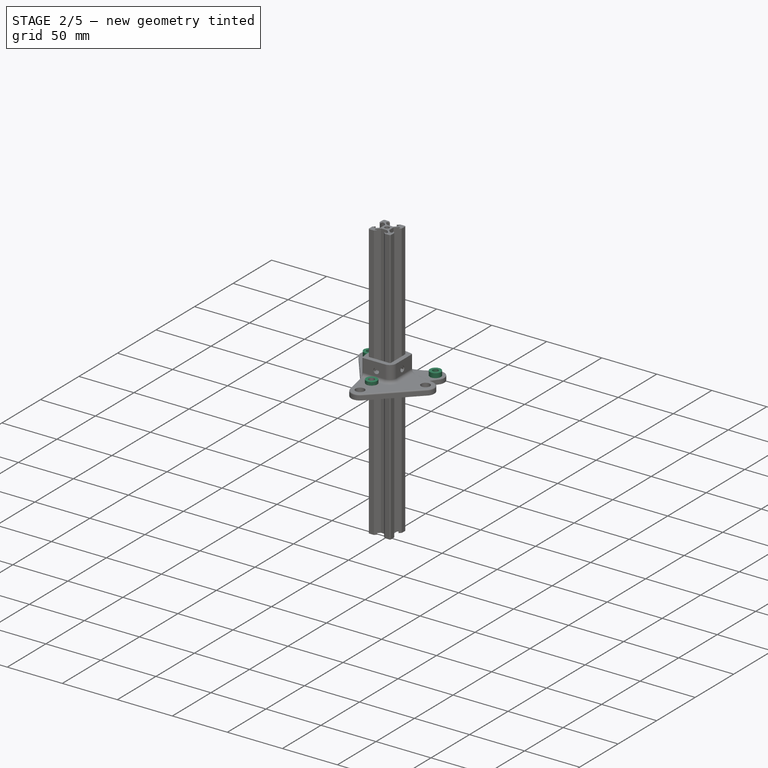
[diagram: stage 2 of 5 — iso view after this stage's code; geometry added in this stage tinted green]
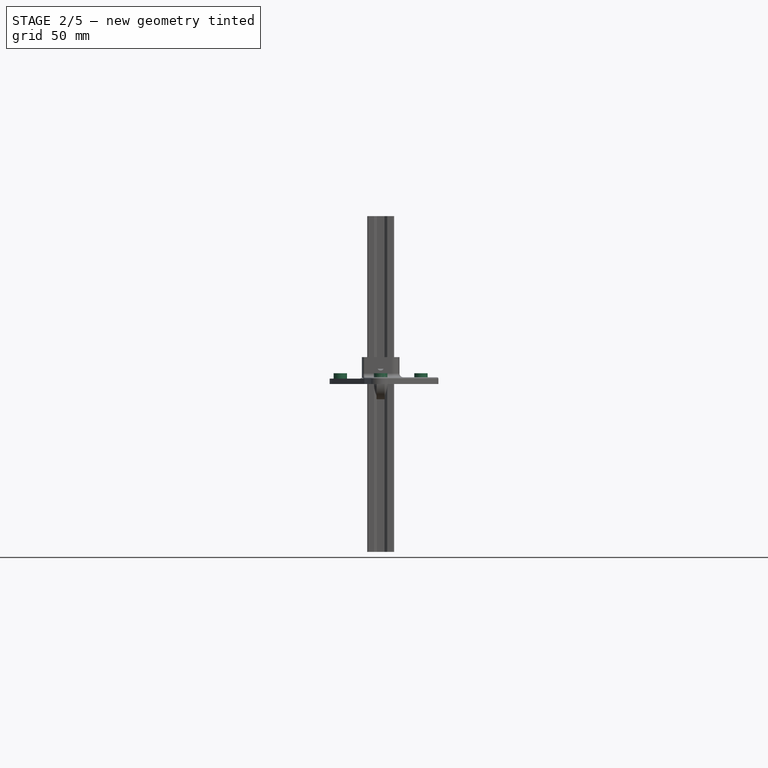
[diagram: stage 2 of 5 — front view after this stage's code; geometry added in this stage tinted green]
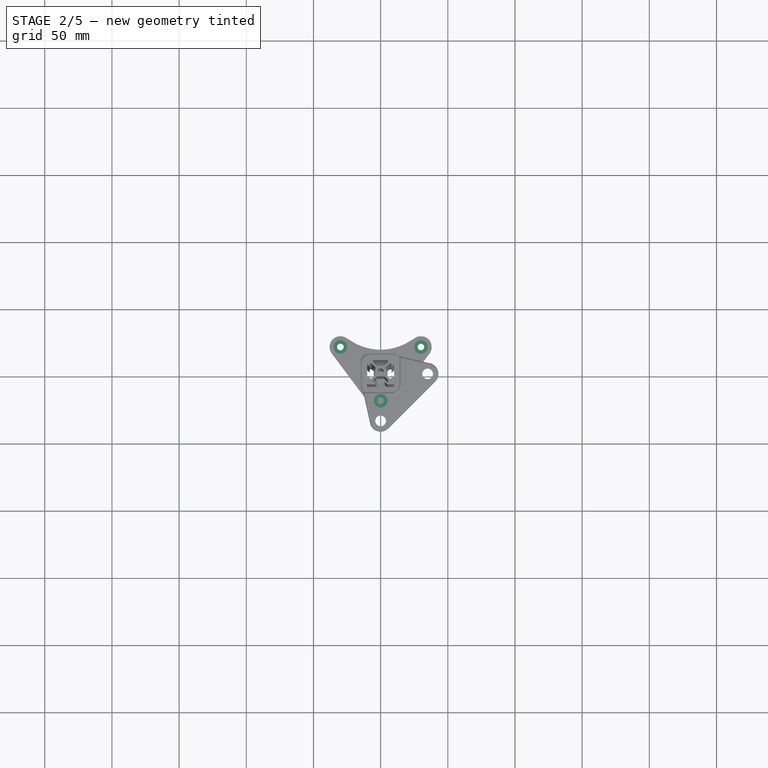
[diagram: stage 2 of 5 — top view after this stage's code; geometry added in this stage tinted green]
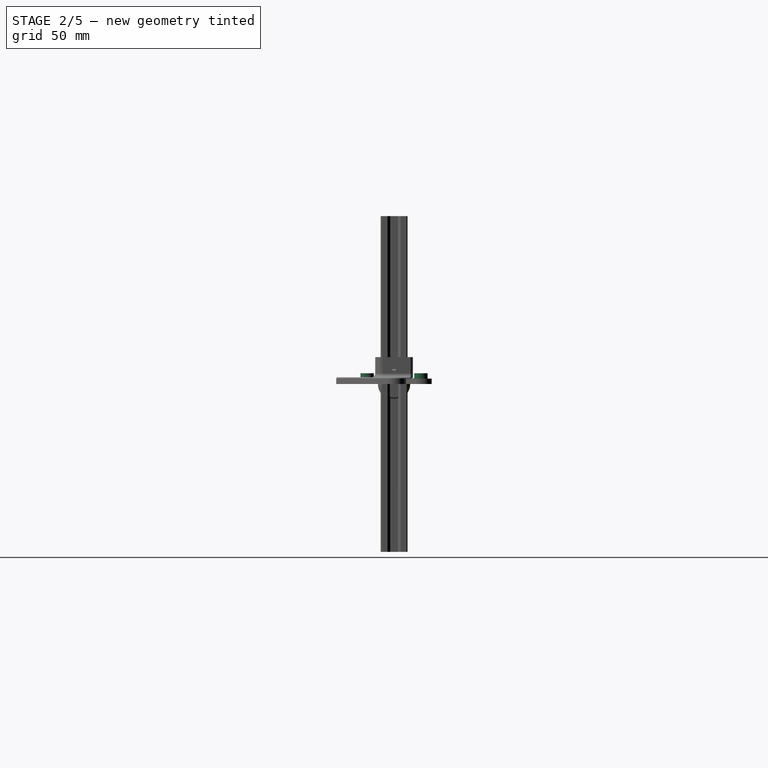
[diagram: stage 2 of 5 — right view after this stage's code; geometry added in this stage tinted green]
FEATURE [PartDesign::Body] Body023
  Group = -> [Sketch077,Pad024,Sketch078,Pocket026,Sketch079,Pad025,Sketch080,Hole026,Sketch081,Hole027,Chamfer001,Sketch082,Sketch083,Pocket027,Fillet003,Fillet004,Fillet005]
  Origin = -> Origin053
  Tip = -> Fillet005
FEATURE [App::Part] Part027
  Group = -> [Body023]
  Origin = -> Origin051
  Placement = pos=(0,0,0) rot=(0,0,1;1.5708rad)
FEATURE [App::Part] Part028
  Group = -> [Part027]
  Origin = -> Origin052
  Placement = pos=(-250,0,145) rot=(0,1,0;3.14159rad)
  expr: Placement.Base.z = dim.z_len / 2
  expr: Placement.Base.x = -dim.x_len / 2 + 20
FEATURE [Sketcher::SketchObject] Sketch086
  MapMode = 5
  Support = -> [XY_Plane056]
  sketch-geometry (22):
    g0: LineSegment StartX=-9 StartY=-10 StartZ=0 EndX=9 EndY=-10 EndZ=0
    g1: LineSegment StartX=10 StartY=-9 StartZ=0 EndX=10 EndY=9 EndZ=0
    g2: LineSegment StartX=9 StartY=10 StartZ=0 EndX=-9 EndY=10 EndZ=0
    g3: LineSegment StartX=-10 StartY=9 StartZ=0 EndX=-10 EndY=-9 EndZ=0
    g4: Circle CenterX=30 CenterY=20 CenterZ=0 NormalX=0 NormalY=0 NormalZ=1 AngleXU=0 Radius=2.5
    g5: Circle CenterX=-30 CenterY=20 CenterZ=0 NormalX=0 NormalY=0 NormalZ=1 AngleXU=0 Radius=2.5
    g6: Circle CenterX=0 CenterY=-20 CenterZ=0 NormalX=0 NormalY=0 NormalZ=1 AngleXU=0 Radius=2.5
    g7: LineSegment StartX=36.4 StartY=15.2 StartZ=0 EndX=6.4 EndY=-24.8 EndZ=0
    g8: LineSegment StartX=-6.4 StartY=-24.8 StartZ=0 EndX=-36.4 EndY=15.2 EndZ=0
    g9: ArcOfCircle CenterX=-30 CenterY=20 CenterZ=0 NormalX=0 NormalY=0 NormalZ=1 AngleXU=0 Radius=8 StartAngle=1.03351 EndAngle=3.78509
    g10: ArcOfCircle CenterX=30 CenterY=20 CenterZ=0 NormalX=0 NormalY=0 NormalZ=1 AngleXU=0 Radius=8 StartAngle=5.63968 EndAngle=8.39126
    g11: ArcOfCircle CenterX=0 CenterY=-20 CenterZ=0 NormalX=0 NormalY=0 NormalZ=1 AngleXU=0 Radius=8 StartAngle=3.78509 EndAngle=5.63968
    g12: LineSegment StartX=-25.9056 StartY=26.8728 StartZ=0 EndX=-20.4721 EndY=23.6359 EndZ=0
    g13: LineSegment StartX=25.9056 StartY=26.8728 StartZ=0 EndX=20.4721 EndY=23.6359 EndZ=0
    g14: ArcOfCircle CenterX=0 CenterY=58 CenterZ=0 NormalX=0 NormalY=0 NormalZ=1 AngleXU=0 Radius=40 StartAngle=4.17511 EndAngle=5.24967
    g15: ArcOfCircle CenterX=-9 CenterY=9 CenterZ=0 NormalX=0 NormalY=0 NormalZ=1 AngleXU=0 Radius=1 StartAngle=1.5708 EndAngle=3.14159
    g16: ArcOfCircle CenterX=9 CenterY=9 CenterZ=0 NormalX=0 NormalY=0 NormalZ=1 AngleXU=0 Radius=1 StartAngle=7e-16 EndAngle=1.5708
    g17: ArcOfCircle CenterX=9 CenterY=-9 CenterZ=0 NormalX=0 NormalY=0 NormalZ=1 AngleXU=0 Radius=1 StartAngle=4.71239 EndAngle=6.28319
    g18: ArcOfCircle CenterX=-9 CenterY=-9 CenterZ=0 NormalX=0 NormalY=0 NormalZ=1 AngleXU=0 Radius=1 StartAngle=3.14159 EndAngle=4.71239
    g19: LineSegment [constr] StartX=-9 StartY=9 StartZ=0 EndX=0 EndY=0 EndZ=0
    g20: LineSegment [constr] StartX=0 StartY=0 StartZ=0 EndX=9 EndY=9 EndZ=0
    g21: LineSegment [constr] StartX=0 StartY=0 StartZ=0 EndX=-9 EndY=-9 EndZ=0
  constraints (52):
    c: Horizontal(g0)
    c: Horizontal(g2)
    c: Vertical(g1)
    c: Vertical(g3)
    c: Equal(g2,g3)
    c: PointOnObject(g6,g-2)
    c: Radius(g6) = 2.5
    c: Equal(g6,g4)
    c: Equal(g6,g5)
    c: Tangent(g8,g9) = 1.5708
    c: Tangent(g7,g10) = 1.5708
    c: Tangent(g7,g11) = 1.5708
    c: Tangent(g8,g11) = 1.5708
    c: Coincident(g11,g6)
    c: Coincident(g10,g4)
    c: Coincident(g5,g9)
    c: DistanceX(g5,g-1) = 30
    c: DistanceY(g-1,g5) = 20
    c: DistanceX(g-1,g4) = 30
    c: DistanceY(g-1,g4) = 20
    c: DistanceY(g6,g-1) = 20
    c: Radius(g10) = 8
    c: Equal(g10,g11)
    c: Equal(g10,g9)
    c: Tangent(g12,g9) = 1.5708
    c: Tangent(g10,g13) = -1.5708
    c: Tangent(g12,g14) = -1.5708
    c: Tangent(g13,g14) = 1.5708
    c: PointOnObject(g14,g-2)
    c: Tangent(g3,g15) = -1.5708
    c: Tangent(g2,g15) = -1.5708
    c: Tangent(g2,g16) = -1.5708
    c: Tangent(g1,g16) = -1.5708
    c: Tangent(g1,g17) = -1.5708
    c: Tangent(g0,g17) = -1.5708
    c: Tangent(g0,g18) = -1.5708
    c: Tangent(g3,g18) = -1.5708
    c: DistanceX(g3,g1) = 20
    c: Radius(g17) = 1
    c: Equal(g17,g18)
    c: Equal(g17,g15)
    c: Equal(g17,g16)
    c: Coincident(g19,g15)
    c: Coincident(g19,g-1)
    c: Coincident(g20,g-1)
    c: Coincident(g20,g16)
    c: Coincident(g21,g-1)
    c: Coincident(g21,g18)
    c: Equal(g19,g21)
    c: Equal(g21,g20)
    c: Radius(g14) = 40
    c: DistanceY(g-1,g14) = 58
FEATURE [PartDesign::Pad] Pad028
  Length = 4
  Length2 = 100
  Profile = -> Sketch086
  Refine = true
  Type = 0
FEATURE [Sketcher::SketchObject] Sketch087
  ExternalGeometry = -> [Pad028]
  MapMode = 5
  Placement = pos=(0,0,4) rot=(0,0,1;0rad)
  Support = -> [Pad028]
  sketch-geometry (16):
    g0: LineSegment StartX=-9 StartY=-10 StartZ=0 EndX=9 EndY=-10 EndZ=0
    g1: LineSegment StartX=10 StartY=-9 StartZ=0 EndX=10 EndY=9 EndZ=0
    g2: LineSegment StartX=9 StartY=10 StartZ=0 EndX=-9 EndY=10 EndZ=0
    g3: LineSegment StartX=-10 StartY=9 StartZ=0 EndX=-10 EndY=-9 EndZ=0
    g4: ArcOfCircle CenterX=-9 CenterY=9 CenterZ=0 NormalX=0 NormalY=0 NormalZ=1 AngleXU=0 Radius=1 StartAngle=1.5708 EndAngle=3.14159
    g5: ArcOfCircle CenterX=9 CenterY=9 CenterZ=0 NormalX=0 NormalY=0 NormalZ=1 AngleXU=0 Radius=1 StartAngle=-2.07923e-11 EndAngle=1.5708
    g6: ArcOfCircle CenterX=9 CenterY=-9 CenterZ=0 NormalX=0 NormalY=0 NormalZ=1 AngleXU=0 Radius=1 StartAngle=4.71239 EndAngle=6.28319
    g7: ArcOfCircle CenterX=-9 CenterY=-9 CenterZ=0 NormalX=0 NormalY=0 NormalZ=1 AngleXU=0 Radius=1 StartAngle=3.14159 EndAngle=4.71239
    g8: LineSegment StartX=-9 StartY=13 StartZ=0 EndX=9 EndY=13 EndZ=0
    g9: LineSegment StartX=13 StartY=9 StartZ=0 EndX=13 EndY=-9 EndZ=0
    g10: LineSegment StartX=9 StartY=-13 StartZ=0 EndX=-9 EndY=-13 EndZ=0
    g11: LineSegment StartX=-13 StartY=-9 StartZ=0 EndX=-13 EndY=9 EndZ=0
    g12: ArcOfCircle CenterX=-9 CenterY=9 CenterZ=0 NormalX=0 NormalY=0 NormalZ=1 AngleXU=0 Radius=4 StartAngle=1.5708 EndAngle=3.14159
    g13: ArcOfCircle CenterX=9 CenterY=9 CenterZ=0 NormalX=0 NormalY=0 NormalZ=1 AngleXU=0 Radius=4 StartAngle=0 EndAngle=1.5708
    g14: ArcOfCircle CenterX=9 CenterY=-9 CenterZ=0 NormalX=0 NormalY=0 NormalZ=1 AngleXU=0 Radius=4 StartAngle=4.71239 EndAngle=6.28319
    g15: ArcOfCircle CenterX=-9 CenterY=-9 CenterZ=0 NormalX=0 NormalY=0 NormalZ=1 AngleXU=0 Radius=4 StartAngle=3.14159 EndAngle=4.71239
  constraints (30):
    c: Tangent(g3,g4) = -1.5708
    c: Tangent(g2,g4) = -1.5708
    c: Tangent(g2,g5) = -1.5708
    c: Tangent(g1,g5) = -1.5708
    c: Tangent(g1,g6) = -1.5708
    c: Tangent(g0,g6) = -1.5708
    c: Tangent(g0,g7) = -1.5708
    c: Tangent(g3,g7) = -1.5708
    c: Coincident(g1,g-4)
    c: Coincident(g2,g-4)
    c: Coincident(g1,g-5)
    c: Coincident(g0,g-5)
    c: Coincident(g3,g-6)
    c: Coincident(g3,g-3)
    c: Tangent(g11,g12) = 1.5708
    c: Tangent(g8,g12) = 1.5708
    c: Tangent(g8,g13) = 1.5708
    c: Tangent(g9,g13) = 1.5708
    c: Tangent(g9,g14) = 1.5708
    c: Tangent(g10,g14) = 1.5708
    c: Tangent(g10,g15) = 1.5708
    c: Tangent(g11,g15) = 1.5708
    c: Coincident(g12,g4)
    c: Coincident(g13,g5)
    c: Coincident(g7,g15)
    c: Coincident(g14,g6)
    c: Radius(g12) = 4
    c: Equal(g12,g13)
    c: Equal(g12,g14)
    c: Equal(g12,g15)
FEATURE [PartDesign::Pad] Pad029
  BaseFeature = -> Pad028
  Length = 14
  Length2 = 100
  Profile = -> Sketch087
  Refine = true
  Type = 0
FEATURE [Sketcher::SketchObject] Sketch088
  MapMode = 5
  Placement = pos=(-8.2e-14,13,0) rot=(0,0.707107,0.707107;3.14159rad)
  sketch-geometry (1):
    g0: Circle CenterX=0 CenterY=10.5 CenterZ=0 NormalX=0 NormalY=0 NormalZ=1 AngleXU=0 Radius=2.5
  constraints (2):
    c: PointOnObject(g0,g-2)
    c: Radius(g0) = 2.5
FEATURE [PartDesign::Pocket] Pocket028
  BaseFeature = -> Pad029
  Length = 9
  Length2 = 100
  Midplane = true
  Profile = -> Sketch088
  Refine = true
  Type = 0
FEATURE [PartDesign::PolarPattern] PolarPattern014
  Angle = 360
  Axis = -> Z_Axis056
  BaseFeature = -> Pocket028
  Occurrences = 4
  Originals = -> [Pocket028]
  Refine = true
FEATURE [Sketcher::SketchObject] Sketch089
  ExternalGeometry = -> [PolarPattern014]
  MapMode = 5
  Placement = pos=(0,0,4) rot=(0,0,1;0rad)
  Support = -> [PolarPattern014]
  sketch-geometry (6):
    g0: Circle CenterX=-30 CenterY=20 CenterZ=0 NormalX=0 NormalY=0 NormalZ=1 AngleXU=0 Radius=2.5
    g1: Circle CenterX=30 CenterY=20 CenterZ=0 NormalX=0 NormalY=0 NormalZ=1 AngleXU=0 Radius=2.5
    g2: Circle CenterX=30 CenterY=20 CenterZ=0 NormalX=0 NormalY=0 NormalZ=1 AngleXU=0 Radius=5
    g3: Circle CenterX=-30 CenterY=20 CenterZ=0 NormalX=0 NormalY=0 NormalZ=1 AngleXU=0 Radius=5
    g4: Circle CenterX=0 CenterY=-20 CenterZ=0 NormalX=0 NormalY=0 NormalZ=1 AngleXU=0 Radius=5
    g5: Circle CenterX=0 CenterY=-20 CenterZ=0 NormalX=0 NormalY=0 NormalZ=1 AngleXU=0 Radius=2.5
  constraints (12):
    c: Coincident(g0,g-3)
    c: Coincident(g1,g-4)
    c: Coincident(g2,g1)
    c: Coincident(g3,g0)
    c: Coincident(g4,g-5)
    c: Coincident(g5,g4)
    c: Radius(g5) = 2.5
    c: Equal(g5,g1)
    c: Equal(g5,g0)
    c: Radius(g3) = 5
    c: Equal(g3,g2)
    c: Equal(g3,g4)
FEATURE [PartDesign::Pad] Pad030
  BaseFeature = -> PolarPattern014
  Length = 4
  Length2 = 100
  Profile = -> Sketch089
  Refine = true
  Type = 0
FEATURE [PartDesign::Fillet] Fillet
  Base = -> Pad030 [Edge34]
  BaseFeature = -> Pad030
  Radius = 3
FEATURE [PartDesign::Body] Body026
  Group = -> [Sketch086,Pad028,Sketch087,Pad029,Sketch088,Pocket028,PolarPattern014,Sketch089,Pad030,Fillet]
  Origin = -> Origin056
  Tip = -> Fillet
FEATURE [Sketcher::SketchObject] Sketch090
  MapMode = 5
  Placement = pos=(0,0,0) rot=(1,0,0;1.5708rad)
  Support = -> [XZ_Plane001]
  sketch-geometry (8):
    g0: LineSegment StartX=-3 StartY=12 StartZ=0 EndX=-5.1 EndY=9.9 EndZ=0
    g1: LineSegment StartX=-3 StartY=12 StartZ=0 EndX=3 EndY=12 EndZ=0
    g2: LineSegment StartX=3 StartY=12 StartZ=0 EndX=5.1 EndY=9.9 EndZ=0
    g3: LineSegment StartX=-5.1 StartY=9.9 StartZ=0 EndX=-5.1 EndY=2.5 EndZ=0
    g4: LineSegment StartX=-5.1 StartY=2.5 StartZ=0 EndX=5.1 EndY=2.5 EndZ=0
    g5: LineSegment StartX=5.1 StartY=2.5 StartZ=0 EndX=5.1 EndY=9.9 EndZ=0
    g6: LineSegment [constr] StartX=-5.1 StartY=2.5 StartZ=0 EndX=0 EndY=0 EndZ=0
    g7: LineSegment [constr] StartX=0 StartY=0 StartZ=0 EndX=5.1 EndY=2.5 EndZ=0
  constraints (22):
    c: Coincident(g1,g0)
    c: Horizontal(g1)
    c: Coincident(g2,g1)
    c: Coincident(g3,g0)
    c: Vertical(g3)
    c: Coincident(g4,g3)
    c: Horizontal(g4)
    c: Coincident(g5,g4)
    c: Coincident(g5,g2)
    c: Vertical(g5)
    c: Coincident(g6,g3)
    c: Coincident(g6,g-1)
    c: Coincident(g7,g-1)
    c: Coincident(g7,g4)
    c: Equal(g7,g6)
    c: DistanceY(g-1,g3) = 2.5
    c: DistanceX(g3,g4) = 10.2
    c: Equal(g0,g2)
    c: Equal(g3,g5)
    c: Angle(g3,g0) = 2.35619
    c: DistanceX(g1,g1) = 6
    c: DistanceY(g-1,g0) = 12
FEATURE [PartDesign::Revolution] Revolution
  Angle = 360
  Axis = (1,0,0)
  Base = (0,0,0)
  Placement = pos=(0,0,0) rot=(1,0,0;1.5708rad)
  Profile = -> Sketch090
  ReferenceAxis = -> X_Axis001
  Refine = true
  Reversed = true
FEATURE [PartDesign::Body] Body027
  Group = -> [Sketch090,Revolution]
  Origin = -> Origin001
  Placement = pos=(0,-20,-10) rot=(0,1,0;1.5708rad)
  Tip = -> Revolution
FEATURE [Sketcher::SketchObject] Sketch091
  MapMode = 5
  Placement = pos=(0,0,0) rot=(1,0,0;1.5708rad)
  Support = -> [XZ_Plane057]
  sketch-geometry (8):
    g0: LineSegment StartX=-3 StartY=12 StartZ=0 EndX=-5.1 EndY=9.9 EndZ=0
    g1: LineSegment StartX=-3 StartY=12 StartZ=0 EndX=3 EndY=12 EndZ=0
    g2: LineSegment StartX=3 StartY=12 StartZ=0 EndX=5.1 EndY=9.9 EndZ=0
    g3: LineSegment StartX=-5.1 StartY=9.9 StartZ=0 EndX=-5.1 EndY=2.5 EndZ=0
    g4: LineSegment StartX=-5.1 StartY=2.5 StartZ=0 EndX=5.1 EndY=2.5 EndZ=0
    g5: LineSegment StartX=5.1 StartY=2.5 StartZ=0 EndX=5.1 EndY=9.9 EndZ=0
    g6: LineSegment [constr] StartX=-5.1 StartY=2.5 StartZ=0 EndX=0 EndY=0 EndZ=0
    g7: LineSegment [constr] StartX=0 StartY=0 StartZ=0 EndX=5.1 EndY=2.5 EndZ=0
  constraints (22):
    c: Coincident(g1,g0)
    c: Horizontal(g1)
    c: Coincident(g2,g1)
    c: Coincident(g3,g0)
    c: Vertical(g3)
    c: Coincident(g4,g3)
    c: Horizontal(g4)
    c: Coincident(g5,g4)
    c: Coincident(g5,g2)
    c: Vertical(g5)
    c: Coincident(g6,g3)
    c: Coincident(g6,g-1)
    c: Coincident(g7,g-1)
    c: Coincident(g7,g4)
    c: Equal(g7,g6)
    c: DistanceY(g-1,g3) = 2.5
    c: DistanceX(g3,g4) = 10.2
    c: Equal(g0,g2)
    c: Equal(g3,g5)
    c: Angle(g3,g0) = 2.35619
    c: DistanceX(g1,g1) = 6
    c: DistanceY(g-1,g0) = 12
FEATURE [PartDesign::Revolution] Revolution001
  Angle = 360
  Axis = (1,0,0)
  Base = (0,0,0)
  Placement = pos=(0,0,0) rot=(1,0,0;1.5708rad)
  Profile = -> Sketch091
  ReferenceAxis = -> X_Axis057
  Refine = true
  Reversed = true
FEATURE [PartDesign::Body] Body028
  Group = -> [Sketch091,Revolution001]
  Origin = -> Origin057
  Placement = pos=(-30,20,-10) rot=(0,1,0;1.5708rad)
  Tip = -> Revolution001
FEATURE [Sketcher::SketchObject] Sketch092
  MapMode = 5
  Placement = pos=(0,0,0) rot=(1,0,0;1.5708rad)
  Support = -> [XZ_Plane058]
  sketch-geometry (8):
    g0: LineSegment StartX=-3 StartY=12 StartZ=0 EndX=-5.1 EndY=9.9 EndZ=0
    g1: LineSegment StartX=-3 StartY=12 StartZ=0 EndX=3 EndY=12 EndZ=0
    g2: LineSegment StartX=3 StartY=12 StartZ=0 EndX=5.1 EndY=9.9 EndZ=0
    g3: LineSegment StartX=-5.1 StartY=9.9 StartZ=0 EndX=-5.1 EndY=2.5 EndZ=0
    g4: LineSegment StartX=-5.1 StartY=2.5 StartZ=0 EndX=5.1 EndY=2.5 EndZ=0
    g5: LineSegment StartX=5.1 StartY=2.5 StartZ=0 EndX=5.1 EndY=9.9 EndZ=0
    g6: LineSegment [constr] StartX=-5.1 StartY=2.5 StartZ=0 EndX=0 EndY=0 EndZ=0
    g7: LineSegment [constr] StartX=0 StartY=0 StartZ=0 EndX=5.1 EndY=2.5 EndZ=0
  constraints (22):
    c: Coincident(g1,g0)
    c: Horizontal(g1)
    c: Coincident(g2,g1)
    c: Coincident(g3,g0)
    c: Vertical(g3)
    c: Coincident(g4,g3)
    c: Horizontal(g4)
    c: Coincident(g5,g4)
    c: Coincident(g5,g2)
    c: Vertical(g5)
    c: Coincident(g6,g3)
    c: Coincident(g6,g-1)
    c: Coincident(g7,g-1)
    c: Coincident(g7,g4)
    c: Equal(g7,g6)
    c: DistanceY(g-1,g3) = 2.5
    c: DistanceX(g3,g4) = 10.2
    c: Equal(g0,g2)
    c: Equal(g3,g5)
    c: Angle(g3,g0) = 2.35619
    c: DistanceX(g1,g1) = 6
    c: DistanceY(g-1,g0) = 12
FEATURE [PartDesign::Revolution] Revolution002
  Angle = 360
  Axis = (1,0,0)
  Base = (0,0,0)
  Placement = pos=(0,0,0) rot=(1,0,0;1.5708rad)
  Profile = -> Sketch092
  ReferenceAxis = -> X_Axis058
  Refine = true
  Reversed = true
FEATURE [PartDesign::Pocket] Pocket029
  BaseFeature = -> Pad034
  Length = 9
  Length2 = 100
  Midplane = true
  Profile = -> Sketch097
  Refine = true
  Type = 0
FEATURE [PartDesign::Revolution] Revolution005
  Angle = 360
  Axis = (1,0,0)
  Base = (0,0,0)
  Placement = pos=(0,0,0) rot=(1,0,0;1.5708rad)
  Profile = -> Sketch099
  ReferenceAxis = -> X_Axis064
  Refine = true
  Reversed = true
FEATURE [PartDesign::Body] Body033
  Group = -> [Sketch099,Revolution005]
  Origin = -> Origin063
  Placement = pos=(0,-20,-10) rot=(0,1,0;1.5708rad)
  Tip = -> Revolution005
FEATURE [PartDesign::PolarPattern] PolarPattern017
  Angle = 360
  Axis = -> Z_Axis062
  BaseFeature = -> Pocket029
  Occurrences = 4
  Originals = -> [Pocket029]
  Refine = true
FEATURE [Sketcher::SketchObject] Sketch098
  ExternalGeometry = -> [PolarPattern017]
  MapMode = 5
  Placement = pos=(0,0,4) rot=(0,0,1;0rad)
  Support = -> [PolarPattern017]
  sketch-geometry (6):
    g0: Circle CenterX=-30 CenterY=20 CenterZ=0 NormalX=0 NormalY=0 NormalZ=1 AngleXU=0 Radius=2.5
    g1: Circle CenterX=30 CenterY=20 CenterZ=0 NormalX=0 NormalY=0 NormalZ=1 AngleXU=0 Radius=2.5
    g2: Circle CenterX=30 CenterY=20 CenterZ=0 NormalX=0 NormalY=0 NormalZ=1 AngleXU=0 Radius=5
    g3: Circle CenterX=-30 CenterY=20 CenterZ=0 NormalX=0 NormalY=0 NormalZ=1 AngleXU=0 Radius=5
    g4: Circle CenterX=0 CenterY=-20 CenterZ=0 NormalX=0 NormalY=0 NormalZ=1 AngleXU=0 Radius=5
    g5: Circle CenterX=0 CenterY=-20 CenterZ=0 NormalX=0 NormalY=0 NormalZ=1 AngleXU=0 Radius=2.5
  constraints (12):
    c: Coincident(g0,g-3)
    c: Coincident(g1,g-4)
    c: Coincident(g2,g1)
    c: Coincident(g3,g0)
    c: Coincident(g4,g-5)
    c: Coincident(g5,g4)
    c: Radius(g5) = 2.5
    c: Equal(g5,g1)
    c: Equal(g5,g0)
    c: Radius(g3) = 5
    c: Equal(g3,g2)
    c: Equal(g3,g4)
FEATURE [PartDesign::Pad] Pad035
  BaseFeature = -> PolarPattern017
  Length = 4
  Length2 = 100
  Profile = -> Sketch098
  Refine = true
  Type = 0
FEATURE [PartDesign::Fillet] Fillet006
  Base = -> Pad035 [Edge34]
  BaseFeature = -> Pad035
  Radius = 3
FEATURE [PartDesign::Body] Body032
  Group = -> [Sketch095,Pad033,Sketch096,Pad034,Sketch097,Pocket029,PolarPattern017,Sketch098,Pad035,Fillet006]
  Origin = -> Origin062
  Tip = -> Fillet006
FEATURE [PartDesign::Body] Body034
  Group = -> [Sketch100,Revolution004]
  Origin = -> Origin064
  Placement = pos=(-30,20,-10) rot=(0,1,0;1.5708rad)
  Tip = -> Revolution004
FEATURE [PartDesign::Body] Body035
  Group = -> [Sketch101,Revolution003]
  Origin = -> Origin065
  Placement = pos=(30,20,-10) rot=(0,1,0;1.5708rad)
  Tip = -> Revolution003
FEATURE [App::Part] Part030
  Group = -> [Body032,Body033,Body034,Body035]
  Origin = -> Origin066
  Placement = pos=(0,0,0) rot=(1,0,0;1.5708rad)
FEATURE [App::Part] Part031
  Group = -> [Part030]
  Origin = -> Origin067
  Placement = pos=(0,-125,0) rot=(0,0,1;3.14159rad)
  expr: Placement.Base.y = -dim.y_len / 2 + 20
FEATURE [Sketcher::SketchObject] Sketch102
  MapMode = 5
  Support = -> [XY_Plane068]
  sketch-geometry (22):
    g0: LineSegment StartX=-9 StartY=-10 StartZ=0 EndX=9 EndY=-10 EndZ=0
    g1: LineSegment StartX=10 StartY=-9 StartZ=0 EndX=10 EndY=9 EndZ=0
    g2: LineSegment StartX=9 StartY=10 StartZ=0 EndX=-9 EndY=10 EndZ=0
    g3: LineSegment StartX=-10 StartY=9 StartZ=0 EndX=-10 EndY=-9 EndZ=0
    g4: Circle CenterX=30 CenterY=20 CenterZ=0 NormalX=0 NormalY=0 NormalZ=1 AngleXU=0 Radius=2.5
    g5: Circle CenterX=-30 CenterY=20 CenterZ=0 NormalX=0 NormalY=0 NormalZ=1 AngleXU=0 Radius=2.5
    g6: Circle CenterX=0 CenterY=-20 CenterZ=0 NormalX=0 NormalY=0 NormalZ=1 AngleXU=0 Radius=2.5
    g7: LineSegment StartX=36.4 StartY=15.2 StartZ=0 EndX=6.4 EndY=-24.8 EndZ=0
    g8: LineSegment StartX=-6.4 StartY=-24.8 StartZ=0 EndX=-36.4 EndY=15.2 EndZ=0
    g9: ArcOfCircle CenterX=-30 CenterY=20 CenterZ=0 NormalX=0 NormalY=0 NormalZ=1 AngleXU=0 Radius=8 StartAngle=1.03351 EndAngle=3.78509
    g10: ArcOfCircle CenterX=30 CenterY=20 CenterZ=0 NormalX=0 NormalY=0 NormalZ=1 AngleXU=0 Radius=8 StartAngle=5.63968 EndAngle=8.39126
    g11: ArcOfCircle CenterX=0 CenterY=-20 CenterZ=0 NormalX=0 NormalY=0 NormalZ=1 AngleXU=0 Radius=8 StartAngle=3.78509 EndAngle=5.63968
    g12: LineSegment StartX=-25.9056 StartY=26.8728 StartZ=0 EndX=-20.4721 EndY=23.6359 EndZ=0
    g13: LineSegment StartX=25.9056 StartY=26.8728 StartZ=0 EndX=20.4721 EndY=23.6359 EndZ=0
    g14: ArcOfCircle CenterX=0 CenterY=58 CenterZ=0 NormalX=0 NormalY=0 NormalZ=1 AngleXU=0 Radius=40 StartAngle=4.17511 EndAngle=5.24967
    g15: ArcOfCircle CenterX=-9 CenterY=9 CenterZ=0 NormalX=0 NormalY=0 NormalZ=1 AngleXU=0 Radius=1 StartAngle=1.5708 EndAngle=3.14159
    g16: ArcOfCircle CenterX=9 CenterY=9 CenterZ=0 NormalX=0 NormalY=0 NormalZ=1 AngleXU=0 Radius=1 StartAngle=7e-16 EndAngle=1.5708
    g17: ArcOfCircle CenterX=9 CenterY=-9 CenterZ=0 NormalX=0 NormalY=0 NormalZ=1 AngleXU=0 Radius=1 StartAngle=4.71239 EndAngle=6.28319
    g18: ArcOfCircle CenterX=-9 CenterY=-9 CenterZ=0 NormalX=0 NormalY=0 NormalZ=1 AngleXU=0 Radius=1 StartAngle=3.14159 EndAngle=4.71239
    g19: LineSegment [constr] StartX=-9 StartY=9 StartZ=0 EndX=0 EndY=0 EndZ=0
    g20: LineSegment [constr] StartX=0 StartY=0 StartZ=0 EndX=9 EndY=9 EndZ=0
    g21: LineSegment [constr] StartX=0 StartY=0 StartZ=0 EndX=-9 EndY=-9 EndZ=0
  constraints (52):
    c: Horizontal(g0)
    c: Horizontal(g2)
    c: Vertical(g1)
    c: Vertical(g3)
    c: Equal(g2,g3)
    c: PointOnObject(g6,g-2)
    c: Radius(g6) = 2.5
    c: Equal(g6,g4)
    c: Equal(g6,g5)
    c: Tangent(g8,g9) = 1.5708
    c: Tangent(g7,g10) = 1.5708
    c: Tangent(g7,g11) = 1.5708
    c: Tangent(g8,g11) = 1.5708
    c: Coincident(g11,g6)
    c: Coincident(g10,g4)
    c: Coincident(g5,g9)
    c: DistanceX(g5,g-1) = 30
    c: DistanceY(g-1,g5) = 20
    c: DistanceX(g-1,g4) = 30
    c: DistanceY(g-1,g4) = 20
    c: DistanceY(g6,g-1) = 20
    c: Radius(g10) = 8
    c: Equal(g10,g11)
    c: Equal(g10,g9)
    c: Tangent(g12,g9) = 1.5708
    c: Tangent(g10,g13) = -1.5708
    c: Tangent(g12,g14) = -1.5708
    c: Tangent(g13,g14) = 1.5708
    c: PointOnObject(g14,g-2)
    c: Tangent(g3,g15) = -1.5708
    c: Tangent(g2,g15) = -1.5708
    c: Tangent(g2,g16) = -1.5708
    c: Tangent(g1,g16) = -1.5708
    c: Tangent(g1,g17) = -1.5708
    c: Tangent(g0,g17) = -1.5708
    c: Tangent(g0,g18) = -1.5708
    c: Tangent(g3,g18) = -1.5708
    c: DistanceX(g3,g1) = 20
    c: Radius(g17) = 1
    c: Equal(g17,g18)
    c: Equal(g17,g15)
    c: Equal(g17,g16)
    c: Coincident(g19,g15)
    c: Coincident(g19,g-1)
    c: Coincident(g20,g-1)
    c: Coincident(g20,g16)
    c: Coincident(g21,g-1)
    c: Coincident(g21,g18)
    c: Equal(g19,g21)
    c: Equal(g21,g20)
    c: Radius(g14) = 40
    c: DistanceY(g-1,g14) = 58
FEATURE [Sketcher::SketchObject] Sketch104
  MapMode = 5
  Placement = pos=(-8.2e-14,13,0) rot=(0,0.707107,0.707107;3.14159rad)
  sketch-geometry (1):
    g0: Circle CenterX=0 CenterY=10.5 CenterZ=0 NormalX=0 NormalY=0 NormalZ=1 AngleXU=0 Radius=2.5
  constraints (2):
    c: PointOnObject(g0,g-2)
    c: Radius(g0) = 2.5
FEATURE [Sketcher::SketchObject] Sketch106
  MapMode = 5
  Placement = pos=(0,0,0) rot=(1,0,0;1.5708rad)
  Support = -> [XZ_Plane069]
  sketch-geometry (8):
    g0: LineSegment StartX=-3 StartY=12 StartZ=0 EndX=-5.1 EndY=9.9 EndZ=0
    g1: LineSegment StartX=-3 StartY=12 StartZ=0 EndX=3 EndY=12 EndZ=0
    g2: LineSegment StartX=3 StartY=12 StartZ=0 EndX=5.1 EndY=9.9 EndZ=0
    g3: LineSegment StartX=-5.1 StartY=9.9 StartZ=0 EndX=-5.1 EndY=2.5 EndZ=0
    g4: LineSegment StartX=-5.1 StartY=2.5 StartZ=0 EndX=5.1 EndY=2.5 EndZ=0
    g5: LineSegment StartX=5.1 StartY=2.5 StartZ=0 EndX=5.1 EndY=9.9 EndZ=0
    g6: LineSegment [constr] StartX=-5.1 StartY=2.5 StartZ=0 EndX=0 EndY=0 EndZ=0
    g7: LineSegment [constr] StartX=0 StartY=0 StartZ=0 EndX=5.1 EndY=2.5 EndZ=0
  constraints (22):
    c: Coincident(g1,g0)
    c: Horizontal(g1)
    c: Coincident(g2,g1)
    c: Coincident(g3,g0)
    c: Vertical(g3)
    c: Coincident(g4,g3)
    c: Horizontal(g4)
    c: Coincident(g5,g4)
    c: Coincident(g5,g2)
    c: Vertical(g5)
    c: Coincident(g6,g3)
    c: Coincident(g6,g-1)
    c: Coincident(g7,g-1)
    c: Coincident(g7,g4)
    c: Equal(g7,g6)
    c: DistanceY(g-1,g3) = 2.5
    c: DistanceX(g3,g4) = 10.2
    c: Equal(g0,g2)
    c: Equal(g3,g5)
    c: Angle(g3,g0) = 2.35619
    c: DistanceX(g1,g1) = 6
    c: DistanceY(g-1,g0) = 12
FEATURE [Sketcher::SketchObject] Sketch107
  MapMode = 5
  Placement = pos=(0,0,0) rot=(1,0,0;1.5708rad)
  Support = -> [XZ_Plane070]
  sketch-geometry (8):
    g0: LineSegment StartX=-3 StartY=12 StartZ=0 EndX=-5.1 EndY=9.9 EndZ=0
    g1: LineSegment StartX=-3 StartY=12 StartZ=0 EndX=3 EndY=12 EndZ=0
    g2: LineSegment StartX=3 StartY=12 StartZ=0 EndX=5.1 EndY=9.9 EndZ=0
    g3: LineSegment StartX=-5.1 StartY=9.9 StartZ=0 EndX=-5.1 EndY=2.5 EndZ=0
    g4: LineSegment StartX=-5.1 StartY=2.5 StartZ=0 EndX=5.1 EndY=2.5 EndZ=0
    g5: LineSegment StartX=5.1 StartY=2.5 StartZ=0 EndX=5.1 EndY=9.9 EndZ=0
    g6: LineSegment [constr] StartX=-5.1 StartY=2.5 StartZ=0 EndX=0 EndY=0 EndZ=0
    g7: LineSegment [constr] StartX=0 StartY=0 StartZ=0 EndX=5.1 EndY=2.5 EndZ=0
  constraints (22):
    c: Coincident(g1,g0)
    c: Horizontal(g1)
    c: Coincident(g2,g1)
    c: Coincident(g3,g0)
    c: Vertical(g3)
    c: Coincident(g4,g3)
    c: Horizontal(g4)
    c: Coincident(g5,g4)
    c: Coincident(g5,g2)
    c: Vertical(g5)
    c: Coincident(g6,g3)
    c: Coincident(g6,g-1)
    c: Coincident(g7,g-1)
    c: Coincident(g7,g4)
    c: Equal(g7,g6)
    c: DistanceY(g-1,g3) = 2.5
    c: DistanceX(g3,g4) = 10.2
    c: Equal(g0,g2)
    c: Equal(g3,g5)
    c: Angle(g3,g0) = 2.35619
    c: DistanceX(g1,g1) = 6
    c: DistanceY(g-1,g0) = 12
FEATURE [Sketcher::SketchObject] Sketch108
  MapMode = 5
  Placement = pos=(0,0,0) rot=(1,0,0;1.5708rad)
  Support = -> [XZ_Plane071]
  sketch-geometry (8):
    g0: LineSegment StartX=-3 StartY=12 StartZ=0 EndX=-5.1 EndY=9.9 EndZ=0
    g1: LineSegment StartX=-3 StartY=12 StartZ=0 EndX=3 EndY=12 EndZ=0
    g2: LineSegment StartX=3 StartY=12 StartZ=0 EndX=5.1 EndY=9.9 EndZ=0
    g3: LineSegment StartX=-5.1 StartY=9.9 StartZ=0 EndX=-5.1 EndY=2.5 EndZ=0
    g4: LineSegment StartX=-5.1 StartY=2.5 StartZ=0 EndX=5.1 EndY=2.5 EndZ=0
    g5: LineSegment StartX=5.1 StartY=2.5 StartZ=0 EndX=5.1 EndY=9.9 EndZ=0
    g6: LineSegment [constr] StartX=-5.1 StartY=2.5 StartZ=0 EndX=0 EndY=0 EndZ=0
    g7: LineSegment [constr] StartX=0 StartY=0 StartZ=0 EndX=5.1 EndY=2.5 EndZ=0
  constraints (22):
    c: Coincident(g1,g0)
    c: Horizontal(g1)
    c: Coincident(g2,g1)
    c: Coincident(g3,g0)
    c: Vertical(g3)
    c: Coincident(g4,g3)
    c: Horizontal(g4)
    c: Coincident(g5,g4)
    c: Coincident(g5,g2)
    c: Vertical(g5)
    c: Coincident(g6,g3)
    c: Coincident(g6,g-1)
    c: Coincident(g7,g-1)
    c: Coincident(g7,g4)
    c: Equal(g7,g6)
    c: DistanceY(g-1,g3) = 2.5
    c: DistanceX(g3,g4) = 10.2
    c: Equal(g0,g2)
    c: Equal(g3,g5)
    c: Angle(g3,g0) = 2.35619
    c: DistanceX(g1,g1) = 6
    c: DistanceY(g-1,g0) = 12
FEATURE [PartDesign::Revolution] Revolution006
  Angle = 360
  Axis = (1,0,0)
  Base = (0,0,0)
  Placement = pos=(0,0,0) rot=(1,0,0;1.5708rad)
  Profile = -> Sketch108
  ReferenceAxis = -> X_Axis072
  Refine = true
  Reversed = true
FEATURE [PartDesign::Revolution] Revolution007
  Angle = 360
  Axis = (1,0,0)
  Base = (0,0,0)
  Placement = pos=(0,0,0) rot=(1,0,0;1.5708rad)
  Profile = -> Sketch107
  ReferenceAxis = -> X_Axis071
  Refine = true
  Reversed = true
FEATURE [PartDesign::Pad] Pad036
  Length = 4
  Length2 = 100
  Profile = -> Sketch102
  Refine = true
  Type = 0
FEATURE [Sketcher::SketchObject] Sketch103
  ExternalGeometry = -> [Pad036]
  MapMode = 5
  Placement = pos=(0,0,4) rot=(0,0,1;0rad)
  Support = -> [Pad036]
  sketch-geometry (16):
    g0: LineSegment StartX=-9 StartY=-10 StartZ=0 EndX=9 EndY=-10 EndZ=0
    g1: LineSegment StartX=10 StartY=-9 StartZ=0 EndX=10 EndY=9 EndZ=0
    g2: LineSegment StartX=9 StartY=10 StartZ=0 EndX=-9 EndY=10 EndZ=0
    g3: LineSegment StartX=-10 StartY=9 StartZ=0 EndX=-10 EndY=-9 EndZ=0
    g4: ArcOfCircle CenterX=-9 CenterY=9 CenterZ=0 NormalX=0 NormalY=0 NormalZ=1 AngleXU=0 Radius=1 StartAngle=1.5708 EndAngle=3.14159
    g5: ArcOfCircle CenterX=9 CenterY=9 CenterZ=0 NormalX=0 NormalY=0 NormalZ=1 AngleXU=0 Radius=1 StartAngle=-2.07923e-11 EndAngle=1.5708
    g6: ArcOfCircle CenterX=9 CenterY=-9 CenterZ=0 NormalX=0 NormalY=0 NormalZ=1 AngleXU=0 Radius=1 StartAngle=4.71239 EndAngle=6.28319
    g7: ArcOfCircle CenterX=-9 CenterY=-9 CenterZ=0 NormalX=0 NormalY=0 NormalZ=1 AngleXU=0 Radius=1 StartAngle=3.14159 EndAngle=4.71239
    g8: LineSegment StartX=-9 StartY=13 StartZ=0 EndX=9 EndY=13 EndZ=0
    g9: LineSegment StartX=13 StartY=9 StartZ=0 EndX=13 EndY=-9 EndZ=0
    g10: LineSegment StartX=9 StartY=-13 StartZ=0 EndX=-9 EndY=-13 EndZ=0
    g11: LineSegment StartX=-13 StartY=-9 StartZ=0 EndX=-13 EndY=9 EndZ=0
    g12: ArcOfCircle CenterX=-9 CenterY=9 CenterZ=0 NormalX=0 NormalY=0 NormalZ=1 AngleXU=0 Radius=4 StartAngle=1.5708 EndAngle=3.14159
    g13: ArcOfCircle CenterX=9 CenterY=9 CenterZ=0 NormalX=0 NormalY=0 NormalZ=1 AngleXU=0 Radius=4 StartAngle=0 EndAngle=1.5708
    g14: ArcOfCircle CenterX=9 CenterY=-9 CenterZ=0 NormalX=0 NormalY=0 NormalZ=1 AngleXU=0 Radius=4 StartAngle=4.71239 EndAngle=6.28319
    g15: ArcOfCircle CenterX=-9 CenterY=-9 CenterZ=0 NormalX=0 NormalY=0 NormalZ=1 AngleXU=0 Radius=4 StartAngle=3.14159 EndAngle=4.71239
  constraints (30):
    c: Tangent(g3,g4) = -1.5708
    c: Tangent(g2,g4) = -1.5708
    c: Tangent(g2,g5) = -1.5708
    c: Tangent(g1,g5) = -1.5708
    c: Tangent(g1,g6) = -1.5708
    c: Tangent(g0,g6) = -1.5708
    c: Tangent(g0,g7) = -1.5708
    c: Tangent(g3,g7) = -1.5708
    c: Coincident(g1,g-4)
    c: Coincident(g2,g-4)
    c: Coincident(g1,g-5)
    c: Coincident(g0,g-5)
    c: Coincident(g3,g-6)
    c: Coincident(g3,g-3)
    c: Tangent(g11,g12) = 1.5708
    c: Tangent(g8,g12) = 1.5708
    c: Tangent(g8,g13) = 1.5708
    c: Tangent(g9,g13) = 1.5708
    c: Tangent(g9,g14) = 1.5708
    c: Tangent(g10,g14) = 1.5708
    c: Tangent(g10,g15) = 1.5708
    c: Tangent(g11,g15) = 1.5708
    c: Coincident(g12,g4)
    c: Coincident(g13,g5)
    c: Coincident(g7,g15)
    c: Coincident(g14,g6)
    c: Radius(g12) = 4
    c: Equal(g12,g13)
    c: Equal(g12,g14)
    c: Equal(g12,g15)
FEATURE [PartDesign::Pad] Pad037
  BaseFeature = -> Pad036
  Length = 14
  Length2 = 100
  Profile = -> Sketch103
  Refine = true
  Type = 0
FEATURE [PartDesign::Pocket] Pocket030
  BaseFeature = -> Pad037
  Length = 9
  Length2 = 100
  Midplane = true
  Profile = -> Sketch104
  Refine = true
  Type = 0
FEATURE [PartDesign::Revolution] Revolution008
  Angle = 360
  Axis = (1,0,0)
  Base = (0,0,0)
  Placement = pos=(0,0,0) rot=(1,0,0;1.5708rad)
  Profile = -> Sketch106
  ReferenceAxis = -> X_Axis070
  Refine = true
  Reversed = true
FEATURE [PartDesign::Body] Body037
  Group = -> [Sketch106,Revolution008]
  Origin = -> Origin069
  Placement = pos=(0,-20,-10) rot=(0,1,0;1.5708rad)
  Tip = -> Revolution008
FEATURE [PartDesign::PolarPattern] PolarPattern018
  Angle = 360
  Axis = -> Z_Axis068
  BaseFeature = -> Pocket030
  Occurrences = 4
  Originals = -> [Pocket030]
  Refine = true
FEATURE [Sketcher::SketchObject] Sketch105
  ExternalGeometry = -> [PolarPattern018]
  MapMode = 5
  Placement = pos=(0,0,4) rot=(0,0,1;0rad)
  Support = -> [PolarPattern018]
  sketch-geometry (6):
    g0: Circle CenterX=-30 CenterY=20 CenterZ=0 NormalX=0 NormalY=0 NormalZ=1 AngleXU=0 Radius=2.5
    g1: Circle CenterX=30 CenterY=20 CenterZ=0 NormalX=0 NormalY=0 NormalZ=1 AngleXU=0 Radius=2.5
    g2: Circle CenterX=30 CenterY=20 CenterZ=0 NormalX=0 NormalY=0 NormalZ=1 AngleXU=0 Radius=5
    g3: Circle CenterX=-30 CenterY=20 CenterZ=0 NormalX=0 NormalY=0 NormalZ=1 AngleXU=0 Radius=5
    g4: Circle CenterX=0 CenterY=-20 CenterZ=0 NormalX=0 NormalY=0 NormalZ=1 AngleXU=0 Radius=5
    g5: Circle CenterX=0 CenterY=-20 CenterZ=0 NormalX=0 NormalY=0 NormalZ=1 AngleXU=0 Radius=2.5
  constraints (12):
    c: Coincident(g0,g-3)
    c: Coincident(g1,g-4)
    c: Coincident(g2,g1)
    c: Coincident(g3,g0)
    c: Coincident(g4,g-5)
    c: Coincident(g5,g4)
    c: Radius(g5) = 2.5
    c: Equal(g5,g1)
    c: Equal(g5,g0)
    c: Radius(g3) = 5
    c: Equal(g3,g2)
    c: Equal(g3,g4)
FEATURE [PartDesign::Pad] Pad038
  BaseFeature = -> PolarPattern018
  Length = 4
  Length2 = 100
  Profile = -> Sketch105
  Refine = true
  Type = 0
FEATURE [PartDesign::Body] Body036
  Group = -> [Sketch102,Pad036,Sketch103,Pad037,Sketch104,Pocket030,PolarPattern018,Sketch105,Pad038,Fillet008]
  Origin = -> Origin068
  Tip = -> Fillet008
FEATURE [PartDesign::Body] Body038
  Group = -> [Sketch107,Revolution007]
  Origin = -> Origin070
  Placement = pos=(-30,20,-10) rot=(0,1,0;1.5708rad)
  Tip = -> Revolution007
FEATURE [PartDesign::Body] Body039
  Group = -> [Sketch108,Revolution006]
  Origin = -> Origin071
  Placement = pos=(30,20,-10) rot=(0,1,0;1.5708rad)
  Tip = -> Revolution006
FEATURE [Sketcher::SketchObject] Sketch109
  MapMode = 5
  Support = -> [XY_Plane077]
  sketch-geometry (22):
    g0: LineSegment StartX=-9 StartY=-10 StartZ=0 EndX=9 EndY=-10 EndZ=0
    g1: LineSegment StartX=10 StartY=-9 StartZ=0 EndX=10 EndY=9 EndZ=0
    g2: LineSegment StartX=9 StartY=10 StartZ=0 EndX=-9 EndY=10 EndZ=0
    g3: LineSegment StartX=-10 StartY=9 StartZ=0 EndX=-10 EndY=-9 EndZ=0
    g4: Circle CenterX=30 CenterY=20 CenterZ=0 NormalX=0 NormalY=0 NormalZ=1 AngleXU=0 Radius=2.5
    g5: Circle CenterX=-30 CenterY=20 CenterZ=0 NormalX=0 NormalY=0 NormalZ=1 AngleXU=0 Radius=2.5
    g6: Circle CenterX=0 CenterY=-20 CenterZ=0 NormalX=0 NormalY=0 NormalZ=1 AngleXU=0 Radius=2.5
    g7: LineSegment StartX=36.4 StartY=15.2 StartZ=0 EndX=6.4 EndY=-24.8 EndZ=0
    g8: LineSegment StartX=-6.4 StartY=-24.8 StartZ=0 EndX=-36.4 EndY=15.2 EndZ=0
    g9: ArcOfCircle CenterX=-30 CenterY=20 CenterZ=0 NormalX=0 NormalY=0 NormalZ=1 AngleXU=0 Radius=8 StartAngle=1.03351 EndAngle=3.78509
    g10: ArcOfCircle CenterX=30 CenterY=20 CenterZ=0 NormalX=0 NormalY=0 NormalZ=1 AngleXU=0 Radius=8 StartAngle=5.63968 EndAngle=8.39126
    g11: ArcOfCircle CenterX=0 CenterY=-20 CenterZ=0 NormalX=0 NormalY=0 NormalZ=1 AngleXU=0 Radius=8 StartAngle=3.78509 EndAngle=5.63968
    g12: LineSegment StartX=-25.9056 StartY=26.8728 StartZ=0 EndX=-20.4721 EndY=23.6359 EndZ=0
    g13: LineSegment StartX=25.9056 StartY=26.8728 StartZ=0 EndX=20.4721 EndY=23.6359 EndZ=0
    g14: ArcOfCircle CenterX=0 CenterY=58 CenterZ=0 NormalX=0 NormalY=0 NormalZ=1 AngleXU=0 Radius=40 StartAngle=4.17511 EndAngle=5.24967
    g15: ArcOfCircle CenterX=-9 CenterY=9 CenterZ=0 NormalX=0 NormalY=0 NormalZ=1 AngleXU=0 Radius=1 StartAngle=1.5708 EndAngle=3.14159
    g16: ArcOfCircle CenterX=9 CenterY=9 CenterZ=0 NormalX=0 NormalY=0 NormalZ=1 AngleXU=0 Radius=1 StartAngle=7e-16 EndAngle=1.5708
    g17: ArcOfCircle CenterX=9 CenterY=-9 CenterZ=0 NormalX=0 NormalY=0 NormalZ=1 AngleXU=0 Radius=1 StartAngle=4.71239 EndAngle=6.28319
    g18: ArcOfCircle CenterX=-9 CenterY=-9 CenterZ=0 NormalX=0 NormalY=0 NormalZ=1 AngleXU=0 Radius=1 StartAngle=3.14159 EndAngle=4.71239
    g19: LineSegment [constr] StartX=-9 StartY=9 StartZ=0 EndX=0 EndY=0 EndZ=0
    g20: LineSegment [constr] StartX=0 StartY=0 StartZ=0 EndX=9 EndY=9 EndZ=0
    g21: LineSegment [constr] StartX=0 StartY=0 StartZ=0 EndX=-9 EndY=-9 EndZ=0
  constraints (52):
    c: Horizontal(g0)
    c: Horizontal(g2)
    c: Vertical(g1)
    c: Vertical(g3)
    c: Equal(g2,g3)
    c: PointOnObject(g6,g-2)
    c: Radius(g6) = 2.5
    c: Equal(g6,g4)
    c: Equal(g6,g5)
    c: Tangent(g8,g9) = 1.5708
    c: Tangent(g7,g10) = 1.5708
    c: Tangent(g7,g11) = 1.5708
    c: Tangent(g8,g11) = 1.5708
    c: Coincident(g11,g6)
    c: Coincident(g10,g4)
    c: Coincident(g5,g9)
    c: DistanceX(g5,g-1) = 30
    c: DistanceY(g-1,g5) = 20
    c: DistanceX(g-1,g4) = 30
    c: DistanceY(g-1,g4) = 20
    c: DistanceY(g6,g-1) = 20
    c: Radius(g10) = 8
    c: Equal(g10,g11)
    c: Equal(g10,g9)
    c: Tangent(g12,g9) = 1.5708
    c: Tangent(g10,g13) = -1.5708
    c: Tangent(g12,g14) = -1.5708
    c: Tangent(g13,g14) = 1.5708
    c: PointOnObject(g14,g-2)
    c: Tangent(g3,g15) = -1.5708
    c: Tangent(g2,g15) = -1.5708
    c: Tangent(g2,g16) = -1.5708
    c: Tangent(g1,g16) = -1.5708
    c: Tangent(g1,g17) = -1.5708
    c: Tangent(g0,g17) = -1.5708
    c: Tangent(g0,g18) = -1.5708
    c: Tangent(g3,g18) = -1.5708
    c: DistanceX(g3,g1) = 20
    c: Radius(g17) = 1
    c: Equal(g17,g18)
    c: Equal(g17,g15)
    c: Equal(g17,g16)
    c: Coincident(g19,g15)
    c: Coincident(g19,g-1)
    c: Coincident(g20,g-1)
    c: Coincident(g20,g16)
    c: Coincident(g21,g-1)
    c: Coincident(g21,g18)
    c: Equal(g19,g21)
    c: Equal(g21,g20)
    c: Radius(g14) = 40
    c: DistanceY(g-1,g14) = 58
FEATURE [Sketcher::SketchObject] Sketch111
  MapMode = 5
  Placement = pos=(-8.2e-14,13,0) rot=(0,0.707107,0.707107;3.14159rad)
  sketch-geometry (1):
    g0: Circle CenterX=0 CenterY=10.5 CenterZ=0 NormalX=0 NormalY=0 NormalZ=1 AngleXU=0 Radius=2.5
  constraints (2):
    c: PointOnObject(g0,g-2)
    c: Radius(g0) = 2.5
FEATURE [Sketcher::SketchObject] Sketch113
  MapMode = 5
  Placement = pos=(0,0,0) rot=(1,0,0;1.5708rad)
  Support = -> [XZ_Plane073]
  sketch-geometry (8):
    g0: LineSegment StartX=-3 StartY=12 StartZ=0 EndX=-5.1 EndY=9.9 EndZ=0
    g1: LineSegment StartX=-3 StartY=12 StartZ=0 EndX=3 EndY=12 EndZ=0
    g2: LineSegment StartX=3 StartY=12 StartZ=0 EndX=5.1 EndY=9.9 EndZ=0
    g3: LineSegment StartX=-5.1 StartY=9.9 StartZ=0 EndX=-5.1 EndY=2.5 EndZ=0
    g4: LineSegment StartX=-5.1 StartY=2.5 StartZ=0 EndX=5.1 EndY=2.5 EndZ=0
    g5: LineSegment StartX=5.1 StartY=2.5 StartZ=0 EndX=5.1 EndY=9.9 EndZ=0
    g6: LineSegment [constr] StartX=-5.1 StartY=2.5 StartZ=0 EndX=0 EndY=0 EndZ=0
    g7: LineSegment [constr] StartX=0 StartY=0 StartZ=0 EndX=5.1 EndY=2.5 EndZ=0
  constraints (22):
    c: Coincident(g1,g0)
    c: Horizontal(g1)
    c: Coincident(g2,g1)
    c: Coincident(g3,g0)
    c: Vertical(g3)
    c: Coincident(g4,g3)
    c: Horizontal(g4)
    c: Coincident(g5,g4)
    c: Coincident(g5,g2)
    c: Vertical(g5)
    c: Coincident(g6,g3)
    c: Coincident(g6,g-1)
    c: Coincident(g7,g-1)
    c: Coincident(g7,g4)
    c: Equal(g7,g6)
    c: DistanceY(g-1,g3) = 2.5
    c: DistanceX(g3,g4) = 10.2
    c: Equal(g0,g2)
    c: Equal(g3,g5)
    c: Angle(g3,g0) = 2.35619
    c: DistanceX(g1,g1) = 6
    c: DistanceY(g-1,g0) = 12
FEATURE [Sketcher::SketchObject] Sketch114
  MapMode = 5
  Placement = pos=(0,0,0) rot=(1,0,0;1.5708rad)
  Support = -> [XZ_Plane074]
  sketch-geometry (8):
    g0: LineSegment StartX=-3 StartY=12 StartZ=0 EndX=-5.1 EndY=9.9 EndZ=0
    g1: LineSegment StartX=-3 StartY=12 StartZ=0 EndX=3 EndY=12 EndZ=0
    g2: LineSegment StartX=3 StartY=12 StartZ=0 EndX=5.1 EndY=9.9 EndZ=0
    g3: LineSegment StartX=-5.1 StartY=9.9 StartZ=0 EndX=-5.1 EndY=2.5 EndZ=0
    g4: LineSegment StartX=-5.1 StartY=2.5 StartZ=0 EndX=5.1 EndY=2.5 EndZ=0
    g5: LineSegment StartX=5.1 StartY=2.5 StartZ=0 EndX=5.1 EndY=9.9 EndZ=0
    g6: LineSegment [constr] StartX=-5.1 StartY=2.5 StartZ=0 EndX=0 EndY=0 EndZ=0
    g7: LineSegment [constr] StartX=0 StartY=0 StartZ=0 EndX=5.1 EndY=2.5 EndZ=0
  constraints (22):
    c: Coincident(g1,g0)
    c: Horizontal(g1)
    c: Coincident(g2,g1)
    c: Coincident(g3,g0)
    c: Vertical(g3)
    c: Coincident(g4,g3)
    c: Horizontal(g4)
    c: Coincident(g5,g4)
    c: Coincident(g5,g2)
    c: Vertical(g5)
    c: Coincident(g6,g3)
    c: Coincident(g6,g-1)
    c: Coincident(g7,g-1)
    c: Coincident(g7,g4)
    c: Equal(g7,g6)
    c: DistanceY(g-1,g3) = 2.5
    c: DistanceX(g3,g4) = 10.2
    c: Equal(g0,g2)
    c: Equal(g3,g5)
    c: Angle(g3,g0) = 2.35619
    c: DistanceX(g1,g1) = 6
    c: DistanceY(g-1,g0) = 12
FEATURE [Sketcher::SketchObject] Sketch115
  MapMode = 5
  Placement = pos=(0,0,0) rot=(1,0,0;1.5708rad)
  Support = -> [XZ_Plane075]
  sketch-geometry (8):
    g0: LineSegment StartX=-3 StartY=12 StartZ=0 EndX=-5.1 EndY=9.9 EndZ=0
    g1: LineSegment StartX=-3 StartY=12 StartZ=0 EndX=3 EndY=12 EndZ=0
    g2: LineSegment StartX=3 StartY=12 StartZ=0 EndX=5.1 EndY=9.9 EndZ=0
    g3: LineSegment StartX=-5.1 StartY=9.9 StartZ=0 EndX=-5.1 EndY=2.5 EndZ=0
    g4: LineSegment StartX=-5.1 StartY=2.5 StartZ=0 EndX=5.1 EndY=2.5 EndZ=0
    g5: LineSegment StartX=5.1 StartY=2.5 StartZ=0 EndX=5.1 EndY=9.9 EndZ=0
    g6: LineSegment [constr] StartX=-5.1 StartY=2.5 StartZ=0 EndX=0 EndY=0 EndZ=0
    g7: LineSegment [constr] StartX=0 StartY=0 StartZ=0 EndX=5.1 EndY=2.5 EndZ=0
  constraints (22):
    c: Coincident(g1,g0)
    c: Horizontal(g1)
    c: Coincident(g2,g1)
    c: Coincident(g3,g0)
    c: Vertical(g3)
    c: Coincident(g4,g3)
    c: Horizontal(g4)
    c: Coincident(g5,g4)
    c: Coincident(g5,g2)
    c: Vertical(g5)
    c: Coincident(g6,g3)
    c: Coincident(g6,g-1)
    c: Coincident(g7,g-1)
    c: Coincident(g7,g4)
    c: Equal(g7,g6)
    c: DistanceY(g-1,g3) = 2.5
    c: DistanceX(g3,g4) = 10.2
    c: Equal(g0,g2)
    c: Equal(g3,g5)
    c: Angle(g3,g0) = 2.35619
    c: DistanceX(g1,g1) = 6
    c: DistanceY(g-1,g0) = 12
FEATURE [PartDesign::Revolution] Revolution009
  Angle = 360
  Axis = (1,0,0)
  Base = (0,0,0)
  Placement = pos=(0,0,0) rot=(1,0,0;1.5708rad)
  Profile = -> Sketch115
  ReferenceAxis = -> X_Axis075
  Refine = true
  Reversed = true
FEATURE [PartDesign::Revolution] Revolution010
  Angle = 360
  Axis = (1,0,0)
  Base = (0,0,0)
  Placement = pos=(0,0,0) rot=(1,0,0;1.5708rad)
  Profile = -> Sketch114
  ReferenceAxis = -> X_Axis074
  Refine = true
  Reversed = true
FEATURE [PartDesign::Pad] Pad039
  Length = 4
  Length2 = 100
  Profile = -> Sketch109
  Refine = true
  Type = 0
FEATURE [Sketcher::SketchObject] Sketch110
  ExternalGeometry = -> [Pad039]
  MapMode = 5
  Placement = pos=(0,0,4) rot=(0,0,1;0rad)
  Support = -> [Pad039]
  sketch-geometry (16):
    g0: LineSegment StartX=-9 StartY=-10 StartZ=0 EndX=9 EndY=-10 EndZ=0
    g1: LineSegment StartX=10 StartY=-9 StartZ=0 EndX=10 EndY=9 EndZ=0
    g2: LineSegment StartX=9 StartY=10 StartZ=0 EndX=-9 EndY=10 EndZ=0
    g3: LineSegment StartX=-10 StartY=9 StartZ=0 EndX=-10 EndY=-9 EndZ=0
    g4: ArcOfCircle CenterX=-9 CenterY=9 CenterZ=0 NormalX=0 NormalY=0 NormalZ=1 AngleXU=0 Radius=1 StartAngle=1.5708 EndAngle=3.14159
    g5: ArcOfCircle CenterX=9 CenterY=9 CenterZ=0 NormalX=0 NormalY=0 NormalZ=1 AngleXU=0 Radius=1 StartAngle=-2.07923e-11 EndAngle=1.5708
    g6: ArcOfCircle CenterX=9 CenterY=-9 CenterZ=0 NormalX=0 NormalY=0 NormalZ=1 AngleXU=0 Radius=1 StartAngle=4.71239 EndAngle=6.28319
    g7: ArcOfCircle CenterX=-9 CenterY=-9 CenterZ=0 NormalX=0 NormalY=0 NormalZ=1 AngleXU=0 Radius=1 StartAngle=3.14159 EndAngle=4.71239
    g8: LineSegment StartX=-9 StartY=13 StartZ=0 EndX=9 EndY=13 EndZ=0
    g9: LineSegment StartX=13 StartY=9 StartZ=0 EndX=13 EndY=-9 EndZ=0
    g10: LineSegment StartX=9 StartY=-13 StartZ=0 EndX=-9 EndY=-13 EndZ=0
    g11: LineSegment StartX=-13 StartY=-9 StartZ=0 EndX=-13 EndY=9 EndZ=0
    g12: ArcOfCircle CenterX=-9 CenterY=9 CenterZ=0 NormalX=0 NormalY=0 NormalZ=1 AngleXU=0 Radius=4 StartAngle=1.5708 EndAngle=3.14159
    g13: ArcOfCircle CenterX=9 CenterY=9 CenterZ=0 NormalX=0 NormalY=0 NormalZ=1 AngleXU=0 Radius=4 StartAngle=0 EndAngle=1.5708
    g14: ArcOfCircle CenterX=9 CenterY=-9 CenterZ=0 NormalX=0 NormalY=0 NormalZ=1 AngleXU=0 Radius=4 StartAngle=4.71239 EndAngle=6.28319
    g15: ArcOfCircle CenterX=-9 CenterY=-9 CenterZ=0 NormalX=0 NormalY=0 NormalZ=1 AngleXU=0 Radius=4 StartAngle=3.14159 EndAngle=4.71239
  constraints (30):
    c: Tangent(g3,g4) = -1.5708
    c: Tangent(g2,g4) = -1.5708
    c: Tangent(g2,g5) = -1.5708
    c: Tangent(g1,g5) = -1.5708
    c: Tangent(g1,g6) = -1.5708
    c: Tangent(g0,g6) = -1.5708
    c: Tangent(g0,g7) = -1.5708
    c: Tangent(g3,g7) = -1.5708
    c: Coincident(g1,g-4)
    c: Coincident(g2,g-4)
    c: Coincident(g1,g-5)
    c: Coincident(g0,g-5)
    c: Coincident(g3,g-6)
    c: Coincident(g3,g-3)
    c: Tangent(g11,g12) = 1.5708
    c: Tangent(g8,g12) = 1.5708
    c: Tangent(g8,g13) = 1.5708
    c: Tangent(g9,g13) = 1.5708
    c: Tangent(g9,g14) = 1.5708
    c: Tangent(g10,g14) = 1.5708
    c: Tangent(g10,g15) = 1.5708
    c: Tangent(g11,g15) = 1.5708
    c: Coincident(g12,g4)
    c: Coincident(g13,g5)
    c: Coincident(g7,g15)
    c: Coincident(g14,g6)
    c: Radius(g12) = 4
    c: Equal(g12,g13)
    c: Equal(g12,g14)
    c: Equal(g12,g15)
FEATURE [PartDesign::Pad] Pad040
  BaseFeature = -> Pad039
  Length = 14
  Length2 = 100
  Profile = -> Sketch110
  Refine = true
  Type = 0
FEATURE [PartDesign::Pocket] Pocket031
  BaseFeature = -> Pad040
  Length = 9
  Length2 = 100
  Midplane = true
  Profile = -> Sketch111
  Refine = true
  Type = 0
FEATURE [PartDesign::PolarPattern] PolarPattern019
  Angle = 360
  Axis = -> Z_Axis077
  BaseFeature = -> Pocket031
  Occurrences = 4
  Originals = -> [Pocket031]
  Refine = true
FEATURE [Sketcher::SketchObject] Sketch112
  ExternalGeometry = -> [PolarPattern019]
  MapMode = 5
  Placement = pos=(0,0,4) rot=(0,0,1;0rad)
  Support = -> [PolarPattern019]
  sketch-geometry (6):
    g0: Circle CenterX=-30 CenterY=20 CenterZ=0 NormalX=0 NormalY=0 NormalZ=1 AngleXU=0 Radius=2.5
    g1: Circle CenterX=30 CenterY=20 CenterZ=0 NormalX=0 NormalY=0 NormalZ=1 AngleXU=0 Radius=2.5
    g2: Circle CenterX=30 CenterY=20 CenterZ=0 NormalX=0 NormalY=0 NormalZ=1 AngleXU=0 Radius=5
    g3: Circle CenterX=-30 CenterY=20 CenterZ=0 NormalX=0 NormalY=0 NormalZ=1 AngleXU=0 Radius=5
    g4: Circle CenterX=0 CenterY=-20 CenterZ=0 NormalX=0 NormalY=0 NormalZ=1 AngleXU=0 Radius=5
    g5: Circle CenterX=0 CenterY=-20 CenterZ=0 NormalX=0 NormalY=0 NormalZ=1 AngleXU=0 Radius=2.5
  constraints (12):
    c: Coincident(g0,g-3)
    c: Coincident(g1,g-4)
    c: Coincident(g2,g1)
    c: Coincident(g3,g0)
    c: Coincident(g4,g-5)
    c: Coincident(g5,g4)
    c: Radius(g5) = 2.5
    c: Equal(g5,g1)
    c: Equal(g5,g0)
    c: Radius(g3) = 5
    c: Equal(g3,g2)
    c: Equal(g3,g4)
FEATURE [PartDesign::Pad] Pad041
  BaseFeature = -> PolarPattern019
  Length = 4
  Length2 = 100
  Profile = -> Sketch112
  Refine = true
  Type = 0
FEATURE [PartDesign::Fillet] Fillet007
  Base = -> Pad041 [Edge34]
  BaseFeature = -> Pad041
  Radius = 3
FEATURE [PartDesign::Body] Body040
  Group = -> [Sketch109,Pad039,Sketch110,Pad040,Sketch111,Pocket031,PolarPattern019,Sketch112,Pad041,Fillet007]
  Origin = -> Origin073
  Tip = -> Fillet007
FEATURE [PartDesign::Revolution] Revolution011
  Angle = 360
  Axis = (1,0,0)
  Base = (0,0,0)
  Placement = pos=(0,0,0) rot=(1,0,0;1.5708rad)
  Profile = -> Sketch113
  ReferenceAxis = -> X_Axis073
  Refine = true
  Reversed = true
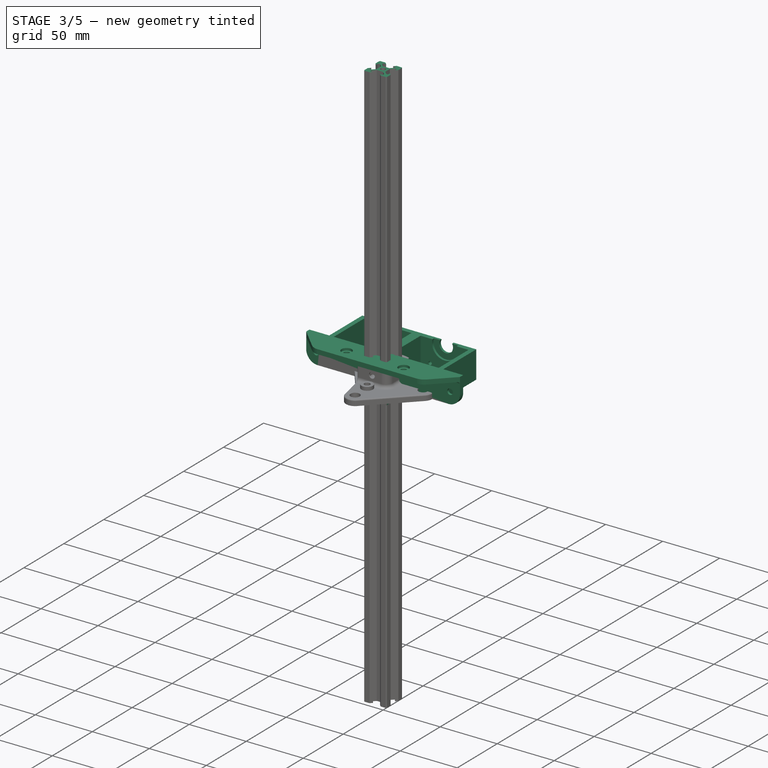
[diagram: stage 3 of 5 — iso view after this stage's code; geometry added in this stage tinted green]
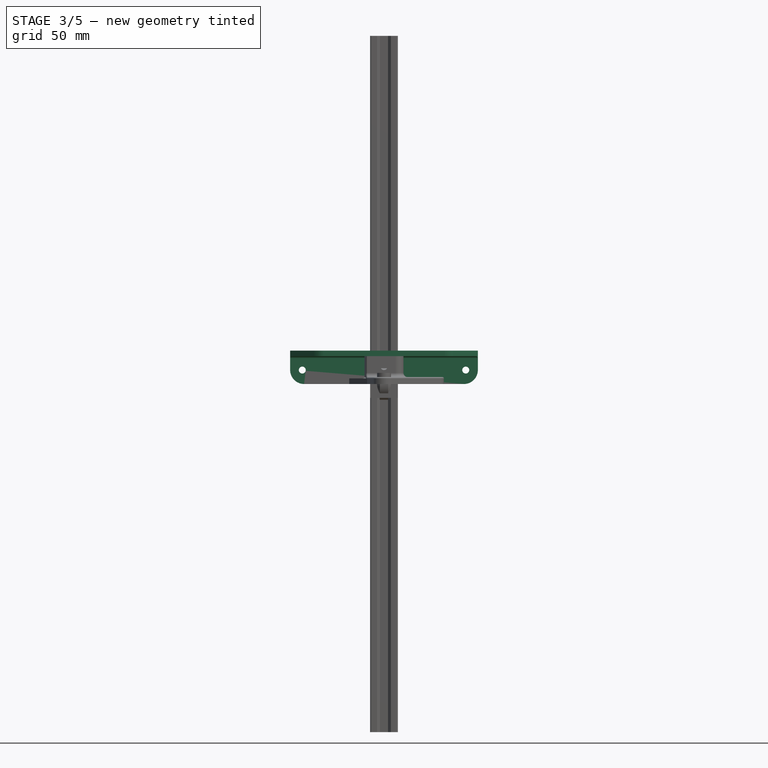
[diagram: stage 3 of 5 — front view after this stage's code; geometry added in this stage tinted green]
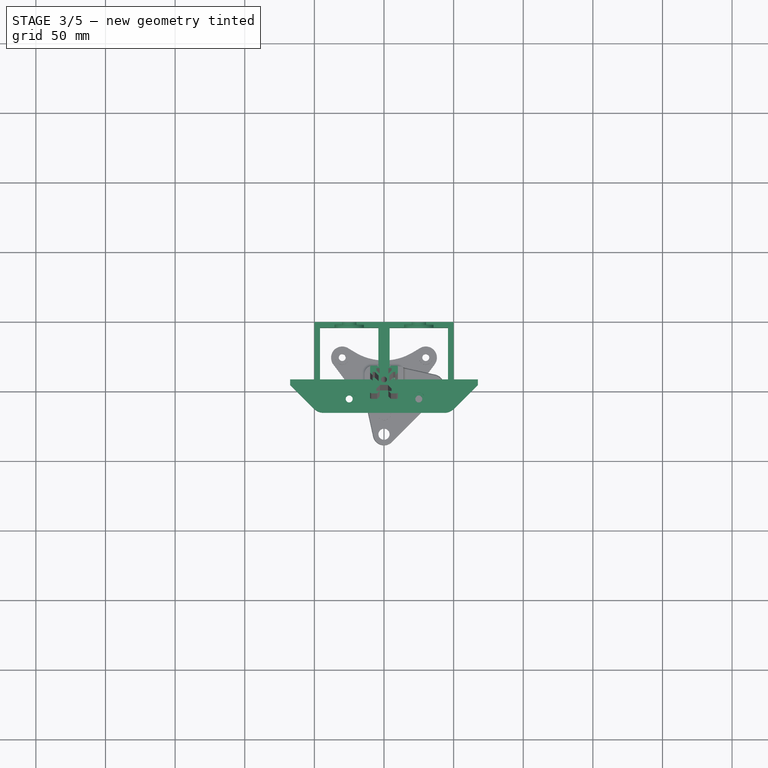
[diagram: stage 3 of 5 — top view after this stage's code; geometry added in this stage tinted green]
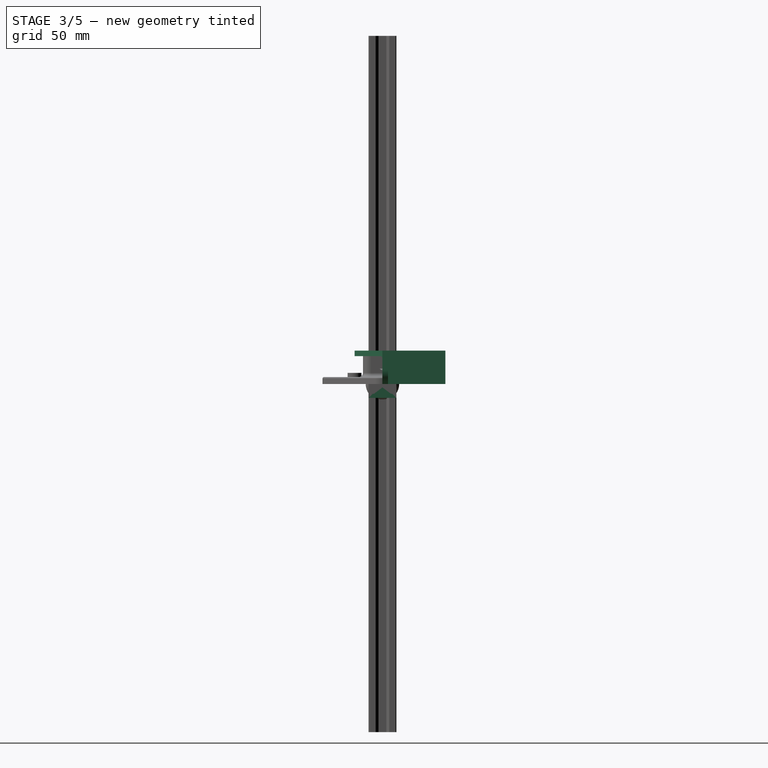
[diagram: stage 3 of 5 — right view after this stage's code; geometry added in this stage tinted green]
FEATURE [PartDesign::Body] Body016
  Group = -> [Sketch040,Pad016,Sketch041,Hole012,Sketch042,Hole013,Sketch043,Hole014,Sketch044,Pocket012,Sketch045,Pocket013,Sketch046,Pocket014]
  Origin = -> Origin026
  Tip = -> Pocket014
FEATURE [App::Part] Part008
  Group = -> [Body016]
  Origin = -> Origin025
  Placement = pos=(260,135,-135) rot=(0,1,0;1.5708rad)
  expr: Placement.Base.y = dim.y_len / 2 - 10
  expr: Placement.Base.z = -dim.z_len / 2 + 10
  expr: Placement.Base.x = dim.x_len / 2 - 10
FEATURE [Sketcher::SketchObject] Sketch047
  MapMode = 5
  Placement = pos=(0,0,0) rot=(1,0,0;1.5708rad)
  Support = -> [XZ_Plane028]
  sketch-geometry (5):
    g0: LineSegment StartX=10 StartY=10 StartZ=0 EndX=-10 EndY=10 EndZ=0
    g1: LineSegment StartX=-10 StartY=10 StartZ=0 EndX=-10 EndY=-10 EndZ=0
    g2: LineSegment StartX=-10 StartY=-10 StartZ=0 EndX=10 EndY=-10 EndZ=0
    g3: LineSegment StartX=10 StartY=-10 StartZ=0 EndX=10 EndY=10 EndZ=0
    g4: Circle [constr] CenterX=0 CenterY=0 CenterZ=0 NormalX=0 NormalY=0 NormalZ=1 AngleXU=0 Radius=14.1421
  constraints (14):
    c: Coincident(g0,g1)
    c: Coincident(g1,g2)
    c: Coincident(g2,g3)
    c: Coincident(g3,g0)
    c: Equal(g0,g1)
    c: Equal(g0,g2)
    c: Equal(g0,g3)
    c: PointOnObject(g0,g4)
    c: PointOnObject(g1,g4)
    c: PointOnObject(g2,g4)
    c: PointOnObject(g3,g4)
    c: Coincident(g4,g-1)
    c: Horizontal(g0)
    c: DistanceX(g0,g0) = 20
FEATURE [PartDesign::Pad] Pad017
  Length = 20
  Length2 = 100
  Midplane = true
  Placement = pos=(0,0,0) rot=(1,0,0;1.5708rad)
  Profile = -> Sketch047
  Refine = true
  Type = 0
FEATURE [Sketcher::SketchObject] Sketch048
  MapMode = 5
  Placement = pos=(0,6.6e-15,10) rot=(0,0,1;3.14159rad)
  Support = -> [Pad017]
  sketch-geometry (1):
    g0: Circle CenterX=0 CenterY=0 CenterZ=0 NormalX=0 NormalY=0 NormalZ=1 AngleXU=0 Radius=5
  constraints (2):
    c: Coincident(g0,g-1)
    c: Radius(g0) = 5
FEATURE [PartDesign::Hole] Hole015
  BaseFeature = -> Pad017
  Depth = 25
  DepthType = 0
  Diameter = 5
  DrillPoint = 1
  DrillPointAngle = 118
  HoleCutCountersinkAngle = 90
  HoleCutDepth = 0
  HoleCutDiameter = 0
  HoleCutType = 0
  ModelActualThread = false
  Placement = pos=(0,0,0) rot=(1,0,0;1.5708rad)
  Profile = -> Sketch048
  Refine = true
  Tapered = false
  TaperedAngle = 90
  ThreadAngle = 0
  ThreadClass = 0
  ThreadCutOffInner = 0
  ThreadCutOffOuter = 0
  ThreadDirection = 0
  ThreadFit = 0
  ThreadPitch = 0
  ThreadSize = 0
  ThreadType = 0
  Threaded = false
FEATURE [Sketcher::SketchObject] Sketch049
  MapMode = 5
  Placement = pos=(10,0,0) rot=(0.707107,0,0.707107;3.14159rad)
  Support = -> [Hole015]
  sketch-geometry (1):
    g0: Circle CenterX=0 CenterY=0 CenterZ=0 NormalX=0 NormalY=0 NormalZ=1 AngleXU=0 Radius=6
  constraints (1):
    c: Radius(g0) = 6
FEATURE [PartDesign::Hole] Hole016
  BaseFeature = -> Hole015
  Depth = 25
  DepthType = 0
  Diameter = 5
  DrillPoint = 1
  DrillPointAngle = 118
  HoleCutCountersinkAngle = 90
  HoleCutDepth = 0
  HoleCutDiameter = 0
  HoleCutType = 0
  ModelActualThread = false
  Placement = pos=(0,0,0) rot=(1,0,0;1.5708rad)
  Profile = -> Sketch049
  Refine = true
  Tapered = false
  TaperedAngle = 90
  ThreadAngle = 0
  ThreadClass = 0
  ThreadCutOffInner = 0
  ThreadCutOffOuter = 0
  ThreadDirection = 0
  ThreadFit = 0
  ThreadPitch = 0
  ThreadSize = 0
  ThreadType = 0
  Threaded = false
FEATURE [PartDesign::Body] Body017
  Group = -> [Sketch047,Pad017,Sketch048,Hole015,Sketch049,Hole016,Sketch050,Hole017,Sketch051,Pocket015,Sketch052,Pocket016,Sketch053,Pocket017]
  Origin = -> Origin028
  Tip = -> Pocket017
FEATURE [App::Part] Part009
  Group = -> [Body017]
  Origin = -> Origin027
  Placement = pos=(-260,135,-135) rot=(0,1,0;3.14159rad)
  expr: Placement.Base.z = -dim.z_len / 2 + 10
  expr: Placement.Base.y = dim.y_len / 2 - 10
  expr: Placement.Base.x = -dim.x_len / 2 + 10
FEATURE [Sketcher::SketchObject] Sketch054
  MapMode = 5
  Placement = pos=(0,0,0) rot=(1,0,0;1.5708rad)
  Support = -> [XZ_Plane030]
  sketch-geometry (5):
    g0: LineSegment StartX=10 StartY=10 StartZ=0 EndX=-10 EndY=10 EndZ=0
    g1: LineSegment StartX=-10 StartY=10 StartZ=0 EndX=-10 EndY=-10 EndZ=0
    g2: LineSegment StartX=-10 StartY=-10 StartZ=0 EndX=10 EndY=-10 EndZ=0
    g3: LineSegment StartX=10 StartY=-10 StartZ=0 EndX=10 EndY=10 EndZ=0
    g4: Circle [constr] CenterX=0 CenterY=0 CenterZ=0 NormalX=0 NormalY=0 NormalZ=1 AngleXU=0 Radius=14.1421
  constraints (14):
    c: Coincident(g0,g1)
    c: Coincident(g1,g2)
    c: Coincident(g2,g3)
    c: Coincident(g3,g0)
    c: Equal(g0,g1)
    c: Equal(g0,g2)
    c: Equal(g0,g3)
    c: PointOnObject(g0,g4)
    c: PointOnObject(g1,g4)
    c: PointOnObject(g2,g4)
    c: PointOnObject(g3,g4)
    c: Coincident(g4,g-1)
    c: Horizontal(g0)
    c: DistanceX(g0,g0) = 20
FEATURE [PartDesign::Pad] Pad018
  Length = 20
  Length2 = 100
  Midplane = true
  Placement = pos=(0,0,0) rot=(1,0,0;1.5708rad)
  Profile = -> Sketch054
  Refine = true
  Type = 0
FEATURE [Sketcher::SketchObject] Sketch055
  MapMode = 5
  Placement = pos=(0,6.6e-15,10) rot=(0,0,1;3.14159rad)
  Support = -> [Pad018]
  sketch-geometry (1):
    g0: Circle CenterX=0 CenterY=0 CenterZ=0 NormalX=0 NormalY=0 NormalZ=1 AngleXU=0 Radius=5
  constraints (2):
    c: Coincident(g0,g-1)
    c: Radius(g0) = 5
FEATURE [PartDesign::Hole] Hole019
  BaseFeature = -> Pad018
  Depth = 25
  DepthType = 0
  Diameter = 5
  DrillPoint = 1
  DrillPointAngle = 118
  HoleCutCountersinkAngle = 90
  HoleCutDepth = 0
  HoleCutDiameter = 0
  HoleCutType = 0
  ModelActualThread = false
  Placement = pos=(0,0,0) rot=(1,0,0;1.5708rad)
  Profile = -> Sketch055
  Refine = true
  Tapered = false
  TaperedAngle = 90
  ThreadAngle = 0
  ThreadClass = 0
  ThreadCutOffInner = 0
  ThreadCutOffOuter = 0
  ThreadDirection = 0
  ThreadFit = 0
  ThreadPitch = 0
  ThreadSize = 0
  ThreadType = 0
  Threaded = false
FEATURE [Sketcher::SketchObject] Sketch056
  MapMode = 5
  Placement = pos=(10,0,0) rot=(0.707107,0,0.707107;3.14159rad)
  Support = -> [Hole019]
  sketch-geometry (1):
    g0: Circle CenterX=0 CenterY=0 CenterZ=0 NormalX=0 NormalY=0 NormalZ=1 AngleXU=0 Radius=6
  constraints (1):
    c: Radius(g0) = 6
FEATURE [Sketcher::SketchObject] Sketch057
  MapMode = 5
  Placement = pos=(0,10,-4.4e-15) rot=(-1,0,0;1.5708rad)
  Support = -> [Hole019]
  sketch-geometry (1):
    g0: Circle CenterX=0 CenterY=0 CenterZ=0 NormalX=0 NormalY=0 NormalZ=1 AngleXU=0 Radius=6
  constraints (2):
    c: Coincident(g0,g-1)
    c: Radius(g0) = 6
FEATURE [PartDesign::Hole] Hole018
  BaseFeature = -> Hole019
  Depth = 25
  DepthType = 0
  Diameter = 5
  DrillPoint = 1
  DrillPointAngle = 118
  HoleCutCountersinkAngle = 90
  HoleCutDepth = 0
  HoleCutDiameter = 0
  HoleCutType = 0
  ModelActualThread = false
  Placement = pos=(0,0,0) rot=(1,0,0;1.5708rad)
  Profile = -> Sketch056
  Refine = true
  Tapered = false
  TaperedAngle = 90
  ThreadAngle = 0
  ThreadClass = 0
  ThreadCutOffInner = 0
  ThreadCutOffOuter = 0
  ThreadDirection = 0
  ThreadFit = 0
  ThreadPitch = 0
  ThreadSize = 0
  ThreadType = 0
  Threaded = false
FEATURE [PartDesign::Hole] Hole020
  BaseFeature = -> Hole018
  Depth = 25
  DepthType = 0
  Diameter = 5
  DrillPoint = 1
  DrillPointAngle = 118
  HoleCutCountersinkAngle = 90
  HoleCutDepth = 0
  HoleCutDiameter = 0
  HoleCutType = 0
  ModelActualThread = false
  Placement = pos=(0,0,0) rot=(1,0,0;1.5708rad)
  Profile = -> Sketch057
  Refine = true
  Tapered = false
  TaperedAngle = 90
  ThreadAngle = 0
  ThreadClass = 0
  ThreadCutOffInner = 0
  ThreadCutOffOuter = 0
  ThreadDirection = 0
  ThreadFit = 0
  ThreadPitch = 0
  ThreadSize = 0
  ThreadType = 0
  Threaded = false
FEATURE [Sketcher::SketchObject] Sketch058
  MapMode = 5
  Placement = pos=(10,0,0) rot=(0.707107,0,0.707107;3.14159rad)
  Support = -> [Hole020]
  sketch-geometry (5):
    g0: LineSegment StartX=7 StartY=7 StartZ=0 EndX=-7 EndY=7 EndZ=0
    g1: LineSegment StartX=-7 StartY=7 StartZ=0 EndX=-7 EndY=-7 EndZ=0
    g2: LineSegment StartX=-7 StartY=-7 StartZ=0 EndX=7 EndY=-7 EndZ=0
    g3: LineSegment StartX=7 StartY=-7 StartZ=0 EndX=7 EndY=7 EndZ=0
    g4: Circle [constr] CenterX=0 CenterY=0 CenterZ=0 NormalX=0 NormalY=0 NormalZ=1 AngleXU=0 Radius=9.89949
  constraints (14):
    c: Coincident(g0,g1)
    c: Coincident(g1,g2)
    c: Coincident(g2,g3)
    c: Coincident(g3,g0)
    c: Equal(g0,g1)
    c: Equal(g0,g2)
    c: Equal(g0,g3)
    c: PointOnObject(g0,g4)
    c: PointOnObject(g1,g4)
    c: PointOnObject(g2,g4)
    c: PointOnObject(g3,g4)
    c: Coincident(g4,g-1)
    c: Horizontal(g0)
    c: DistanceX(g0,g0) = 14
FEATURE [PartDesign::Pocket] Pocket020
  BaseFeature = -> Hole020
  Length = 17
  Length2 = 100
  Placement = pos=(0,0,0) rot=(1,0,0;1.5708rad)
  Profile = -> Sketch058
  Refine = true
  Type = 0
FEATURE [Sketcher::SketchObject] Sketch059
  MapMode = 5
  Placement = pos=(0,10,-4.4e-15) rot=(-1,0,0;1.5708rad)
  Support = -> [Pocket020]
  sketch-geometry (5):
    g0: LineSegment StartX=7 StartY=7 StartZ=0 EndX=-7 EndY=7 EndZ=0
    g1: LineSegment StartX=-7 StartY=7 StartZ=0 EndX=-7 EndY=-7 EndZ=0
    g2: LineSegment StartX=-7 StartY=-7 StartZ=0 EndX=7 EndY=-7 EndZ=0
    g3: LineSegment StartX=7 StartY=-7 StartZ=0 EndX=7 EndY=7 EndZ=0
    g4: Circle [constr] CenterX=0 CenterY=0 CenterZ=0 NormalX=0 NormalY=0 NormalZ=1 AngleXU=0 Radius=9.89949
  constraints (14):
    c: Coincident(g0,g1)
    c: Coincident(g1,g2)
    c: Coincident(g2,g3)
    c: Coincident(g3,g0)
    c: Equal(g0,g1)
    c: Equal(g0,g2)
    c: Equal(g0,g3)
    c: PointOnObject(g0,g4)
    c: PointOnObject(g1,g4)
    c: PointOnObject(g2,g4)
    c: PointOnObject(g3,g4)
    c: Coincident(g4,g-1)
    c: Horizontal(g0)
    c: DistanceX(g0,g0) = 14
FEATURE [PartDesign::Pocket] Pocket018
  BaseFeature = -> Pocket020
  Length = 17
  Length2 = 100
  Placement = pos=(0,0,0) rot=(1,0,0;1.5708rad)
  Profile = -> Sketch059
  Refine = true
  Type = 0
FEATURE [Sketcher::SketchObject] Sketch060
  MapMode = 5
  Placement = pos=(0,6.6e-15,10) rot=(0,0,1;3.14159rad)
  Support = -> [Pocket018]
  sketch-geometry (5):
    g0: LineSegment StartX=7 StartY=7 StartZ=0 EndX=-7 EndY=7 EndZ=0
    g1: LineSegment StartX=-7 StartY=7 StartZ=0 EndX=-7 EndY=-7 EndZ=0
    g2: LineSegment StartX=-7 StartY=-7 StartZ=0 EndX=7 EndY=-7 EndZ=0
    g3: LineSegment StartX=7 StartY=-7 StartZ=0 EndX=7 EndY=7 EndZ=0
    g4: Circle [constr] CenterX=0 CenterY=0 CenterZ=0 NormalX=0 NormalY=0 NormalZ=1 AngleXU=0 Radius=9.89949
  constraints (14):
    c: Coincident(g0,g1)
    c: Coincident(g1,g2)
    c: Coincident(g2,g3)
    c: Coincident(g3,g0)
    c: Equal(g0,g1)
    c: Equal(g0,g2)
    c: Equal(g0,g3)
    c: PointOnObject(g0,g4)
    c: PointOnObject(g1,g4)
    c: PointOnObject(g2,g4)
    c: PointOnObject(g3,g4)
    c: Coincident(g4,g-1)
    c: Horizontal(g0)
    c: DistanceX(g0,g0) = 14
FEATURE [PartDesign::Pocket] Pocket019
  BaseFeature = -> Pocket018
  Length = 17
  Length2 = 100
  Placement = pos=(0,0,0) rot=(1,0,0;1.5708rad)
  Profile = -> Sketch060
  Refine = true
  Type = 0
FEATURE [PartDesign::Body] Body018
  Group = -> [Sketch054,Pad018,Sketch055,Hole019,Sketch056,Hole018,Sketch057,Hole020,Sketch058,Pocket020,Sketch059,Pocket018,Sketch060,Pocket019]
  Origin = -> Origin030
  Tip = -> Pocket019
FEATURE [App::Part] Part010
  Group = -> [Body018]
  Origin = -> Origin029
  Placement = pos=(260,-135,-135) rot=(1,0,0;3.14159rad)
  expr: Placement.Base.z = -dim.z_len / 2 + 10
  expr: Placement.Base.y = -dim.y_len / 2 + 10
  expr: Placement.Base.x = dim.x_len / 2 - 10
FEATURE [Sketcher::SketchObject] Sketch061
  MapMode = 5
  Placement = pos=(0,0,0) rot=(1,0,0;1.5708rad)
  Support = -> [XZ_Plane032]
  sketch-geometry (5):
    g0: LineSegment StartX=10 StartY=10 StartZ=0 EndX=-10 EndY=10 EndZ=0
    g1: LineSegment StartX=-10 StartY=10 StartZ=0 EndX=-10 EndY=-10 EndZ=0
    g2: LineSegment StartX=-10 StartY=-10 StartZ=0 EndX=10 EndY=-10 EndZ=0
    g3: LineSegment StartX=10 StartY=-10 StartZ=0 EndX=10 EndY=10 EndZ=0
    g4: Circle [constr] CenterX=0 CenterY=0 CenterZ=0 NormalX=0 NormalY=0 NormalZ=1 AngleXU=0 Radius=14.1421
  constraints (14):
    c: Coincident(g0,g1)
    c: Coincident(g1,g2)
    c: Coincident(g2,g3)
    c: Coincident(g3,g0)
    c: Equal(g0,g1)
    c: Equal(g0,g2)
    c: Equal(g0,g3)
    c: PointOnObject(g0,g4)
    c: PointOnObject(g1,g4)
    c: PointOnObject(g2,g4)
    c: PointOnObject(g3,g4)
    c: Coincident(g4,g-1)
    c: Horizontal(g0)
    c: DistanceX(g0,g0) = 20
FEATURE [PartDesign::Pad] Pad019
  Length = 20
  Length2 = 100
  Midplane = true
  Placement = pos=(0,0,0) rot=(1,0,0;1.5708rad)
  Profile = -> Sketch061
  Refine = true
  Type = 0
FEATURE [Sketcher::SketchObject] Sketch062
  MapMode = 5
  Placement = pos=(0,6.6e-15,10) rot=(0,0,1;3.14159rad)
  Support = -> [Pad019]
  sketch-geometry (1):
    g0: Circle CenterX=0 CenterY=0 CenterZ=0 NormalX=0 NormalY=0 NormalZ=1 AngleXU=0 Radius=5
  constraints (2):
    c: Coincident(g0,g-1)
    c: Radius(g0) = 5
FEATURE [PartDesign::Hole] Hole022
  BaseFeature = -> Pad019
  Depth = 25
  DepthType = 0
  Diameter = 5
  DrillPoint = 1
  DrillPointAngle = 118
  HoleCutCountersinkAngle = 90
  HoleCutDepth = 0
  HoleCutDiameter = 0
  HoleCutType = 0
  ModelActualThread = false
  Placement = pos=(0,0,0) rot=(1,0,0;1.5708rad)
  Profile = -> Sketch062
  Refine = true
  Tapered = false
  TaperedAngle = 90
  ThreadAngle = 0
  ThreadClass = 0
  ThreadCutOffInner = 0
  ThreadCutOffOuter = 0
  ThreadDirection = 0
  ThreadFit = 0
  ThreadPitch = 0
  ThreadSize = 0
  ThreadType = 0
  Threaded = false
FEATURE [Sketcher::SketchObject] Sketch063
  MapMode = 5
  Placement = pos=(10,0,0) rot=(0.707107,0,0.707107;3.14159rad)
  Support = -> [Hole022]
  sketch-geometry (1):
    g0: Circle CenterX=0 CenterY=0 CenterZ=0 NormalX=0 NormalY=0 NormalZ=1 AngleXU=0 Radius=6
  constraints (1):
    c: Radius(g0) = 6
FEATURE [Sketcher::SketchObject] Sketch064
  MapMode = 5
  Placement = pos=(0,10,-4.4e-15) rot=(-1,0,0;1.5708rad)
  Support = -> [Hole022]
  sketch-geometry (1):
    g0: Circle CenterX=0 CenterY=0 CenterZ=0 NormalX=0 NormalY=0 NormalZ=1 AngleXU=0 Radius=6
  constraints (2):
    c: Coincident(g0,g-1)
    c: Radius(g0) = 6
FEATURE [PartDesign::Hole] Hole021
  BaseFeature = -> Hole022
  Depth = 25
  DepthType = 0
  Diameter = 5
  DrillPoint = 1
  DrillPointAngle = 118
  HoleCutCountersinkAngle = 90
  HoleCutDepth = 0
  HoleCutDiameter = 0
  HoleCutType = 0
  ModelActualThread = false
  Placement = pos=(0,0,0) rot=(1,0,0;1.5708rad)
  Profile = -> Sketch063
  Refine = true
  Tapered = false
  TaperedAngle = 90
  ThreadAngle = 0
  ThreadClass = 0
  ThreadCutOffInner = 0
  ThreadCutOffOuter = 0
  ThreadDirection = 0
  ThreadFit = 0
  ThreadPitch = 0
  ThreadSize = 0
  ThreadType = 0
  Threaded = false
FEATURE [PartDesign::Hole] Hole023
  BaseFeature = -> Hole021
  Depth = 25
  DepthType = 0
  Diameter = 5
  DrillPoint = 1
  DrillPointAngle = 118
  HoleCutCountersinkAngle = 90
  HoleCutDepth = 0
  HoleCutDiameter = 0
  HoleCutType = 0
  ModelActualThread = false
  Placement = pos=(0,0,0) rot=(1,0,0;1.5708rad)
  Profile = -> Sketch064
  Refine = true
  Tapered = false
  TaperedAngle = 90
  ThreadAngle = 0
  ThreadClass = 0
  ThreadCutOffInner = 0
  ThreadCutOffOuter = 0
  ThreadDirection = 0
  ThreadFit = 0
  ThreadPitch = 0
  ThreadSize = 0
  ThreadType = 0
  Threaded = false
FEATURE [Sketcher::SketchObject] Sketch065
  MapMode = 5
  Placement = pos=(10,0,0) rot=(0.707107,0,0.707107;3.14159rad)
  Support = -> [Hole023]
  sketch-geometry (5):
    g0: LineSegment StartX=7 StartY=7 StartZ=0 EndX=-7 EndY=7 EndZ=0
    g1: LineSegment StartX=-7 StartY=7 StartZ=0 EndX=-7 EndY=-7 EndZ=0
    g2: LineSegment StartX=-7 StartY=-7 StartZ=0 EndX=7 EndY=-7 EndZ=0
    g3: LineSegment StartX=7 StartY=-7 StartZ=0 EndX=7 EndY=7 EndZ=0
    g4: Circle [constr] CenterX=0 CenterY=0 CenterZ=0 NormalX=0 NormalY=0 NormalZ=1 AngleXU=0 Radius=9.89949
  constraints (14):
    c: Coincident(g0,g1)
    c: Coincident(g1,g2)
    c: Coincident(g2,g3)
    c: Coincident(g3,g0)
    c: Equal(g0,g1)
    c: Equal(g0,g2)
    c: Equal(g0,g3)
    c: PointOnObject(g0,g4)
    c: PointOnObject(g1,g4)
    c: PointOnObject(g2,g4)
    c: PointOnObject(g3,g4)
    c: Coincident(g4,g-1)
    c: Horizontal(g0)
    c: DistanceX(g0,g0) = 14
FEATURE [PartDesign::Pocket] Pocket023
  BaseFeature = -> Hole023
  Length = 17
  Length2 = 100
  Placement = pos=(0,0,0) rot=(1,0,0;1.5708rad)
  Profile = -> Sketch065
  Refine = true
  Type = 0
FEATURE [Sketcher::SketchObject] Sketch066
  MapMode = 5
  Placement = pos=(0,10,-4.4e-15) rot=(-1,0,0;1.5708rad)
  Support = -> [Pocket023]
  sketch-geometry (5):
    g0: LineSegment StartX=7 StartY=7 StartZ=0 EndX=-7 EndY=7 EndZ=0
    g1: LineSegment StartX=-7 StartY=7 StartZ=0 EndX=-7 EndY=-7 EndZ=0
    g2: LineSegment StartX=-7 StartY=-7 StartZ=0 EndX=7 EndY=-7 EndZ=0
    g3: LineSegment StartX=7 StartY=-7 StartZ=0 EndX=7 EndY=7 EndZ=0
    g4: Circle [constr] CenterX=0 CenterY=0 CenterZ=0 NormalX=0 NormalY=0 NormalZ=1 AngleXU=0 Radius=9.89949
  constraints (14):
    c: Coincident(g0,g1)
    c: Coincident(g1,g2)
    c: Coincident(g2,g3)
    c: Coincident(g3,g0)
    c: Equal(g0,g1)
    c: Equal(g0,g2)
    c: Equal(g0,g3)
    c: PointOnObject(g0,g4)
    c: PointOnObject(g1,g4)
    c: PointOnObject(g2,g4)
    c: PointOnObject(g3,g4)
    c: Coincident(g4,g-1)
    c: Horizontal(g0)
    c: DistanceX(g0,g0) = 14
FEATURE [PartDesign::Pocket] Pocket021
  BaseFeature = -> Pocket023
  Length = 17
  Length2 = 100
  Placement = pos=(0,0,0) rot=(1,0,0;1.5708rad)
  Profile = -> Sketch066
  Refine = true
  Type = 0
FEATURE [Sketcher::SketchObject] Sketch067
  MapMode = 5
  Placement = pos=(0,6.6e-15,10) rot=(0,0,1;3.14159rad)
  Support = -> [Pocket021]
  sketch-geometry (5):
    g0: LineSegment StartX=7 StartY=7 StartZ=0 EndX=-7 EndY=7 EndZ=0
    g1: LineSegment StartX=-7 StartY=7 StartZ=0 EndX=-7 EndY=-7 EndZ=0
    g2: LineSegment StartX=-7 StartY=-7 StartZ=0 EndX=7 EndY=-7 EndZ=0
    g3: LineSegment StartX=7 StartY=-7 StartZ=0 EndX=7 EndY=7 EndZ=0
    g4: Circle [constr] CenterX=0 CenterY=0 CenterZ=0 NormalX=0 NormalY=0 NormalZ=1 AngleXU=0 Radius=9.89949
  constraints (14):
    c: Coincident(g0,g1)
    c: Coincident(g1,g2)
    c: Coincident(g2,g3)
    c: Coincident(g3,g0)
    c: Equal(g0,g1)
    c: Equal(g0,g2)
    c: Equal(g0,g3)
    c: PointOnObject(g0,g4)
    c: PointOnObject(g1,g4)
    c: PointOnObject(g2,g4)
    c: PointOnObject(g3,g4)
    c: Coincident(g4,g-1)
    c: Horizontal(g0)
    c: DistanceX(g0,g0) = 14
FEATURE [PartDesign::Pocket] Pocket022
  BaseFeature = -> Pocket021
  Length = 17
  Length2 = 100
  Placement = pos=(0,0,0) rot=(1,0,0;1.5708rad)
  Profile = -> Sketch067
  Refine = true
  Type = 0
FEATURE [PartDesign::Body] Body019
  Group = -> [Sketch061,Pad019,Sketch062,Hole022,Sketch063,Hole021,Sketch064,Hole023,Sketch065,Pocket023,Sketch066,Pocket021,Sketch067,Pocket022]
  Origin = -> Origin032
  Tip = -> Pocket022
FEATURE [App::Part] Part011
  Group = -> [Body019]
  Origin = -> Origin031
  Placement = pos=(0,0,0) rot=(0,1,0;3.14159rad)
FEATURE [App::Part] Part012
  Group = -> [Part011]
  Origin = -> Origin033
  Placement = pos=(-260,-135,-135) rot=(0,0,1;1.5708rad)
  expr: Placement.Base.z = -dim.z_len / 2 + 10
  expr: Placement.Base.y = -dim.y_len / 2 + 10
  expr: Placement.Base.x = -dim.x_len / 2 + 10
FEATURE [App::Part] Part003  label="Corner"
  Group = -> [Part004,Part005,Part006,Part007,Part008,Part009,Part010,Part012]
  Origin = -> Origin016
FEATURE [Sketcher::SketchObject] Sketch077
  MapMode = 5
  Support = -> [XY_Plane053]
  sketch-geometry (21):
    g0: LineSegment StartX=-67.4016 StartY=0 StartZ=0 EndX=67.4016 EndY=0 EndZ=0
    g1: LineSegment StartX=-67.4016 StartY=0 StartZ=0 EndX=-67.4016 EndY=4 EndZ=0
    g2: LineSegment StartX=67.4016 StartY=0 StartZ=0 EndX=67.4016 EndY=4 EndZ=0
    g3: LineSegment StartX=-67.4016 StartY=4 StartZ=0 EndX=-50 EndY=4 EndZ=0
    g4: LineSegment StartX=67.4016 StartY=4 StartZ=0 EndX=50 EndY=4 EndZ=0
    g5: LineSegment StartX=-50 StartY=4 StartZ=0 EndX=-50 EndY=45.25 EndZ=0
    g6: LineSegment StartX=-50 StartY=45.25 StartZ=0 EndX=50 EndY=45.25 EndZ=0
    g7: LineSegment StartX=50 StartY=45.25 StartZ=0 EndX=50 EndY=4 EndZ=0
    g8: LineSegment [constr] StartX=0 StartY=0 StartZ=0 EndX=-50 EndY=4 EndZ=0
    g9: LineSegment [constr] StartX=0 StartY=0 StartZ=0 EndX=50 EndY=4 EndZ=0
    g10: LineSegment StartX=46 StartY=41.25 StartZ=0 EndX=46 EndY=4 EndZ=0
    g11: LineSegment StartX=-46 StartY=4 StartZ=0 EndX=-46 EndY=41.25 EndZ=0
    g12: LineSegment [constr] StartX=-46 StartY=4 StartZ=0 EndX=0 EndY=0 EndZ=0
    g13: LineSegment [constr] StartX=0 StartY=0 StartZ=0 EndX=46 EndY=4 EndZ=0
    g14: LineSegment StartX=-46 StartY=41.25 StartZ=0 EndX=-4 EndY=41.25 EndZ=0
    g15: LineSegment StartX=46 StartY=41.25 StartZ=0 EndX=4 EndY=41.25 EndZ=0
    g16: LineSegment StartX=-46 StartY=4 StartZ=0 EndX=-4 EndY=4 EndZ=0
    g17: LineSegment StartX=46 StartY=4 StartZ=0 EndX=4 EndY=4 EndZ=0
    g18: LineSegment StartX=-4 StartY=41.25 StartZ=0 EndX=-4 EndY=4 EndZ=0
    g19: LineSegment StartX=4 StartY=41.25 StartZ=0 EndX=4 EndY=4 EndZ=0
    g20: LineSegment [constr] StartX=-4 StartY=41.25 StartZ=0 EndX=4 EndY=41.25 EndZ=0
  constraints (57):
    c: PointOnObject(g0,g-1)
    c: PointOnObject(g0,g-1)
    c: Coincident(g1,g0)
    c: Vertical(g1)
    c: Coincident(g2,g0)
    c: Vertical(g2)
    c: Equal(g1,g2)
    c: Coincident(g3,g1)
    c: Horizontal(g3)
    c: Coincident(g4,g2)
    c: Horizontal(g4)
    c: Equal(g3,g4)
    c: Coincident(g5,g3)
    c: Vertical(g5)
    c: Coincident(g6,g5)
    c: Horizontal(g6)
    c: Coincident(g7,g6)
    c: Coincident(g7,g4)
    c: Vertical(g7)
    c: Coincident(g8,g-1)
    c: Coincident(g8,g3)
    c: Coincident(g9,g-1)
    c: Coincident(g9,g4)
    c: Equal(g9,g8)
    c: Vertical(g10)
    c: Vertical(g11)
    c: Coincident(g12,g-1)
    c: Coincident(g13,g-1)
    c: Coincident(g13,g10)
    c: Equal(g13,g12)
    c: DistanceY(g1,g1) = 4
    c: DistanceY(g0,g11) = 4
    c: DistanceX(g11,g10) = 92
    c: DistanceY(g11,g11) = 37.25
    c: Coincident(g14,g11)
    c: Horizontal(g14)
    c: Coincident(g15,g10)
    c: Horizontal(g15)
    c: Equal(g14,g15)
    c: Coincident(g16,g11)
    c: Horizontal(g16)
    c: Coincident(g17,g10)
    c: Horizontal(g17)
    c: Equal(g17,g16)
    c: Equal(g16,g14)
    c: DistanceX(g14,g14) = 42
    c: Coincident(g18,g14)
    c: Coincident(g18,g16)
    c: Coincident(g19,g15)
    c: Coincident(g19,g17)
    c: Coincident(g20,g14)
    c: Horizontal(g20)
    c: Coincident(g20,g15)
    c: Coincident(g11,g12)
    c: Equal(g19,g18)
    c: DistanceX(g10,g4) = 4
    c: DistanceY(g10,g6) = 4
FEATURE [PartDesign::Pad] Pad024
  Length = 24
  Length2 = 100
  Profile = -> Sketch077
  Refine = true
  Type = 0
FEATURE [Sketcher::SketchObject] Sketch078
  ExternalGeometry = -> [Pad024]
  MapMode = 5
  Placement = pos=(0,41.25,0) rot=(1,0,0;1.5708rad)
  Support = -> [Pad024]
  sketch-geometry (6):
    g0: Circle CenterX=-25 CenterY=21 CenterZ=0 NormalX=0 NormalY=0 NormalZ=1 AngleXU=0 Radius=11
    g1: Circle CenterX=25 CenterY=21 CenterZ=0 NormalX=0 NormalY=0 NormalZ=1 AngleXU=0 Radius=11
    g2: LineSegment [constr] StartX=-46 StartY=24 StartZ=0 EndX=-25 EndY=21 EndZ=0
    g3: LineSegment [constr] StartX=-25 StartY=21 StartZ=0 EndX=-4 EndY=24 EndZ=0
    g4: LineSegment [constr] StartX=4 StartY=24 StartZ=0 EndX=25 EndY=21 EndZ=0
    g5: LineSegment [constr] StartX=25 StartY=21 StartZ=0 EndX=46 EndY=24 EndZ=0
  constraints (14):
    c: Radius(g0) = 11
    c: Equal(g0,g1)
    c: Coincident(g2,g-3)
    c: Coincident(g2,g0)
    c: Coincident(g3,g0)
    c: Coincident(g3,g-3)
    c: Coincident(g4,g-4)
    c: Coincident(g4,g1)
    c: Coincident(g5,g1)
    c: Coincident(g5,g-4)
    c: Equal(g2,g3)
    c: Equal(g3,g4)
    c: Equal(g4,g5)
    c: DistanceY(g-1,g0) = 21
FEATURE [PartDesign::Pocket] Pocket026
  BaseFeature = -> Pad024
  Length = 2
  Length2 = 100
  Profile = -> Sketch078
  Refine = true
  Type = 0
FEATURE [Sketcher::SketchObject] Sketch079
  MapMode = 5
  Placement = pos=(0,0,0) rot=(1,0,0;1.5708rad)
  sketch-geometry (4):
    g0: LineSegment StartX=-67.4016 StartY=24 StartZ=0 EndX=67.4016 EndY=24 EndZ=0
    g1: LineSegment StartX=67.4016 StartY=24 StartZ=0 EndX=67.4016 EndY=20 EndZ=0
    g2: LineSegment StartX=67.4016 StartY=20 StartZ=0 EndX=-67.4016 EndY=20 EndZ=0
    g3: LineSegment StartX=-67.4016 StartY=20 StartZ=0 EndX=-67.4016 EndY=24 EndZ=0
  constraints (8):
    c: Coincident(g0,g1)
    c: Coincident(g1,g2)
    c: Coincident(g2,g3)
    c: Coincident(g3,g0)
    c: Horizontal(g2)
    c: Vertical(g1)
    c: Vertical(g3)
    c: DistanceY(g1,g1) = 4
FEATURE [PartDesign::Pad] Pad025
  BaseFeature = -> Pocket026
  Length = 20
  Length2 = 100
  Profile = -> Sketch079
  Refine = true
  Type = 0
FEATURE [Sketcher::SketchObject] Sketch080
  ExternalGeometry = -> [Pad025]
  MapMode = 5
  Placement = pos=(0,4,0) rot=(0,0.707107,0.707107;3.14159rad)
  sketch-geometry (6):
    g0: LineSegment [constr] StartX=-67.2839 StartY=23.8324 StartZ=0 EndX=-58.7008 EndY=10 EndZ=0
    g1: LineSegment [constr] StartX=-50.1178 StartY=23.8324 StartZ=0 EndX=-58.7008 EndY=10 EndZ=0
    g2: LineSegment [constr] StartX=50.1178 StartY=23.8324 StartZ=0 EndX=58.7008 EndY=10 EndZ=0
    g3: LineSegment [constr] StartX=67.2839 StartY=23.8324 StartZ=0 EndX=58.7008 EndY=10 EndZ=0
    g4: Circle CenterX=58.7008 CenterY=10 CenterZ=0 NormalX=0 NormalY=0 NormalZ=1 AngleXU=0 Radius=4.26046
    g5: Circle CenterX=-58.7008 CenterY=10 CenterZ=0 NormalX=0 NormalY=0 NormalZ=1 AngleXU=0 Radius=4.93613
  constraints (8):
    c: Coincident(g1,g0)
    c: Equal(g0,g1)
    c: Coincident(g3,g2)
    c: Equal(g2,g3)
    c: Coincident(g4,g2)
    c: Coincident(g5,g0)
    c: DistanceY(g-3,g5) = 10
    c: DistanceY(g-4,g4) = 10
FEATURE [PartDesign::Hole] Hole026
  BaseFeature = -> Pad025
  Depth = 25
  DepthType = 0
  Diameter = 5
  DrillPoint = 1
  DrillPointAngle = 118
  HoleCutCountersinkAngle = 90
  HoleCutDepth = 2
  HoleCutDiameter = 9
  HoleCutType = 1
  ModelActualThread = false
  Profile = -> Sketch080
  Refine = true
  Tapered = false
  TaperedAngle = 90
  ThreadAngle = 0
  ThreadClass = 0
  ThreadCutOffInner = 0
  ThreadCutOffOuter = 0
  ThreadDirection = 0
  ThreadFit = 0
  ThreadPitch = 0
  ThreadSize = 0
  ThreadType = 0
  Threaded = false
FEATURE [Sketcher::SketchObject] Sketch081
  MapMode = 5
  Placement = pos=(0,1.2e-15,24) rot=(0,0,1;0rad)
  Support = -> [Hole026]
  sketch-geometry (2):
    g0: Circle CenterX=-25 CenterY=-10 CenterZ=0 NormalX=0 NormalY=0 NormalZ=1 AngleXU=0 Radius=12.1715
    g1: Circle CenterX=25 CenterY=-10 CenterZ=0 NormalX=0 NormalY=0 NormalZ=1 AngleXU=0 Radius=11.9684
  constraints (4):
    c: DistanceY(g1,g-1) = 10
    c: DistanceY(g0,g-1) = 10
    c: DistanceX(g0,g-1) = 25
    c: DistanceX(g-1,g1) = 25
FEATURE [PartDesign::Hole] Hole027
  BaseFeature = -> Hole026
  Depth = 25
  DepthType = 0
  Diameter = 5
  DrillPoint = 1
  DrillPointAngle = 118
  HoleCutCountersinkAngle = 90
  HoleCutDepth = 2
  HoleCutDiameter = 9
  HoleCutType = 1
  ModelActualThread = false
  Profile = -> Sketch081
  Refine = true
  Tapered = false
  TaperedAngle = 90
  ThreadAngle = 0
  ThreadClass = 0
  ThreadCutOffInner = 0
  ThreadCutOffOuter = 0
  ThreadDirection = 0
  ThreadFit = 0
  ThreadPitch = 0
  ThreadSize = 0
  ThreadType = 0
  Threaded = false
FEATURE [PartDesign::Chamfer] Chamfer001  label="Chamfer005"
  Base = -> Hole027 [Edge39,Edge24]
  BaseFeature = -> Hole027
  Size = 20
FEATURE [Sketcher::SketchObject] Sketch082
  MapMode = 5
  Placement = pos=(0,41.25,0) rot=(1,0,0;1.5708rad)
  Support = -> [Chamfer001]
FEATURE [Sketcher::SketchObject] Sketch083
  ExternalGeometry = -> [Chamfer001]
  MapMode = 5
  Placement = pos=(0,45.25,0) rot=(0,0.707107,0.707107;3.14159rad)
  Support = -> [Chamfer001]
  sketch-geometry (14):
    g0: Circle CenterX=-43.2534 CenterY=4.5 CenterZ=0 NormalX=0 NormalY=0 NormalZ=1 AngleXU=0 Radius=1.5
    g1: Circle CenterX=-12.2534 CenterY=4.5 CenterZ=0 NormalX=0 NormalY=0 NormalZ=1 AngleXU=0 Radius=1.5
    g2: Circle CenterX=9.5 CenterY=4.5 CenterZ=0 NormalX=0 NormalY=0 NormalZ=1 AngleXU=0 Radius=1.5
    g3: Circle CenterX=40.5 CenterY=4.5 CenterZ=0 NormalX=0 NormalY=0 NormalZ=1 AngleXU=0 Radius=1.5
    g4: LineSegment [constr] StartX=-43.2534 StartY=4.5 StartZ=0 EndX=-43.2534 EndY=0 EndZ=0
    g5: LineSegment [constr] StartX=-12.2534 StartY=4.5 StartZ=0 EndX=-12.2534 EndY=0 EndZ=0
    g6: LineSegment [constr] StartX=9.5 StartY=4.5 StartZ=0 EndX=9.5 EndY=0 EndZ=0
    g7: LineSegment [constr] StartX=40.5 StartY=4.5 StartZ=0 EndX=40.5 EndY=0 EndZ=0
    g8: LineSegment [constr] StartX=-25 StartY=21 StartZ=0 EndX=-12.2534 EndY=4.5 EndZ=0
    g9: LineSegment [constr] StartX=-25 StartY=21 StartZ=0 EndX=-39.8618 EndY=6.37628 EndZ=0
    g10: LineSegment [constr] StartX=25 StartY=21 StartZ=0 EndX=9.5 EndY=4.5 EndZ=0
    g11: LineSegment [constr] StartX=25 StartY=21 StartZ=0 EndX=40.5 EndY=4.5 EndZ=0
    g12: Circle CenterX=-25 CenterY=21 CenterZ=0 NormalX=0 NormalY=0 NormalZ=1 AngleXU=0 Radius=6
    g13: Circle CenterX=25 CenterY=21 CenterZ=0 NormalX=0 NormalY=0 NormalZ=1 AngleXU=0 Radius=6
  constraints (35):
    c: Coincident(g4,g0)
    c: PointOnObject(g4,g-1)
    c: Vertical(g4)
    c: Coincident(g5,g1)
    c: PointOnObject(g5,g-1)
    c: Coincident(g6,g2)
    c: Vertical(g6)
    c: Coincident(g7,g3)
    c: PointOnObject(g7,g-1)
    c: Equal(g4,g5)
    c: Equal(g5,g6)
    c: Equal(g6,g7)
    c: DistanceY(g4,g4) = 4.5
    c: Radius(g0) = 1.5
    c: Equal(g0,g1)
    c: Equal(g0,g2)
    c: Equal(g0,g3)
    c: DistanceX(g0,g1) = 31
    c: DistanceX(g2,g3) = 31
    c: Vertical(g7)
    c: PointOnObject(g6,g-1)
    c: Vertical(g5)
    c: Coincident(g8,g-3)
    c: Coincident(g8,g1)
    c: Coincident(g9,g8)
    c: Coincident(g10,g-4)
    c: Coincident(g10,g2)
    c: Coincident(g11,g10)
    c: Coincident(g11,g3)
    c: Equal(g10,g11)
    c: Equal(g9,g8)
    c: Coincident(g12,g8)
    c: Coincident(g13,g10)
    c: Radius(g13) = 6
    c: Equal(g13,g12)
FEATURE [PartDesign::Pocket] Pocket027
  BaseFeature = -> Chamfer001
  Length = 5
  Length2 = 100
  Profile = -> Sketch083
  Refine = true
  Type = 0
FEATURE [PartDesign::Fillet] Fillet003
  Base = -> Pocket027 [Edge48]
  BaseFeature = -> Pocket027
  Radius = 1.5
FEATURE [PartDesign::Fillet] Fillet004
  Base = -> Fillet003 [Edge21,Edge3]
  BaseFeature = -> Fillet003
  Radius = 10
FEATURE [PartDesign::Fillet] Fillet005
  Base = -> Fillet004 [Edge85,Edge18]
  BaseFeature = -> Fillet004
  Radius = 10
FEATURE [PartDesign::Body] Body029
  Group = -> [Sketch092,Revolution002]
  Origin = -> Origin058
  Placement = pos=(30,20,-10) rot=(0,1,0;1.5708rad)
  Tip = -> Revolution002
FEATURE [Sketcher::SketchObject] Sketch093
  MapMode = 5
  Support = -> [XY_Plane059]
  sketch-geometry (20):
    g0: LineSegment [constr] StartX=-10 StartY=4.9 StartZ=0 EndX=-10 EndY=10 EndZ=0
    g1: LineSegment [constr] StartX=-10 StartY=10 StartZ=0 EndX=-4.9 EndY=10 EndZ=0
    g2: LineSegment StartX=-4.9 StartY=10 StartZ=0 EndX=-3.1 EndY=8.2 EndZ=0
    g3: LineSegment StartX=-3.1 StartY=8.2 StartZ=0 EndX=-5.49934 EndY=8.2 EndZ=0
    g4: LineSegment StartX=-5.49934 StartY=8.2 StartZ=0 EndX=-5.49934 EndY=6.56 EndZ=0
    g5: LineSegment StartX=-5.49934 StartY=6.56 StartZ=0 EndX=-2.84 EndY=3.90066 EndZ=0
    g6: LineSegment StartX=-2.84 StartY=3.90066 StartZ=0 EndX=0 EndY=3.90066 EndZ=0
    g7: LineSegment [constr] StartX=0 StartY=0 StartZ=0 EndX=0 EndY=3.90066 EndZ=0
    g8: LineSegment [constr] StartX=0 StartY=0 StartZ=0 EndX=-3.90066 EndY=0 EndZ=0
    g9: LineSegment StartX=-3.90066 StartY=0 StartZ=0 EndX=-3.90066 EndY=2.84 EndZ=0
    g10: LineSegment StartX=-3.90066 StartY=2.84 StartZ=0 EndX=-6.56 EndY=5.49934 EndZ=0
    g11: LineSegment StartX=-6.56 StartY=5.49934 StartZ=0 EndX=-8.2 EndY=5.49934 EndZ=0
    g12: LineSegment StartX=-8.2 StartY=5.49934 StartZ=0 EndX=-8.2 EndY=3.1 EndZ=0
    g13: LineSegment StartX=-8.2 StartY=3.1 StartZ=0 EndX=-10 EndY=4.9 EndZ=0
    g14: LineSegment StartX=-3.90066 StartY=0 StartZ=0 EndX=-2.1 EndY=3e-16 EndZ=0
    g15: LineSegment StartX=0 StartY=3.90066 StartZ=0 EndX=0 EndY=2.1 EndZ=0
    g16: ArcOfCircle CenterX=0 CenterY=0 CenterZ=0 NormalX=0 NormalY=0 NormalZ=1 AngleXU=0 Radius=2.1 StartAngle=1.5708 EndAngle=3.14159
    g17: LineSegment StartX=-4.9 StartY=10 StartZ=0 EndX=-9 EndY=10 EndZ=0
    g18: LineSegment StartX=-10 StartY=4.9 StartZ=0 EndX=-10 EndY=9 EndZ=0
    g19: ArcOfCircle CenterX=-9 CenterY=9 CenterZ=0 NormalX=0 NormalY=0 NormalZ=1 AngleXU=0 Radius=1 StartAngle=1.5708 EndAngle=3.14159
  constraints (56):
    c: Vertical(g0)
    c: Coincident(g1,g0)
    c: Horizontal(g1)
    c: Coincident(g2,g1)
    c: Coincident(g3,g2)
    c: Horizontal(g3)
    c: Coincident(g4,g3)
    c: Vertical(g4)
    c: Coincident(g5,g4)
    c: Coincident(g6,g5)
    c: PointOnObject(g6,g-2)
    c: Horizontal(g6)
    c: Coincident(g7,g-1)
    c: Coincident(g7,g6)
    c: Coincident(g8,g7)
    c: PointOnObject(g8,g-1)
    c: Coincident(g9,g8)
    c: Vertical(g9)
    c: Coincident(g10,g9)
    c: Coincident(g11,g10)
    c: Horizontal(g11)
    c: Coincident(g12,g11)
    c: Vertical(g12)
    c: Coincident(g13,g12)
    c: Coincident(g13,g0)
    c: Equal(g9,g6)
    c: Equal(g8,g7)
    c: Equal(g5,g10)
    c: Equal(g4,g11)
    c: Equal(g3,g12)
    c: Equal(g13,g2)
    c: Equal(g1,g0)
    c: DistanceX(g0,g7) = 10
    c: DistanceY(g7,g0) = 10
    c: DistanceX(g2,g7) = 3.1
    c: Angle(g2,g3) = 0.785398
    c: DistanceY(g2,g1) = 1.8
    c: DistanceX(g6,g6) = 2.84
    c: Parallel(g5,g2)
    c: Distance(g4,g10) = 1.5
    c: DistanceX(g11,g10) = 1.64
    c: Coincident(g14,g9)
    c: PointOnObject(g14,g8)
    c: Coincident(g15,g6)
    c: PointOnObject(g15,g7)
    c: Coincident(g16,g-1)
    c: Coincident(g16,g14)
    c: Coincident(g16,g15)
    c: Radius(g16) = 2.1
    c: Coincident(g17,g2)
    c: Coincident(g18,g13)
    c: Tangent(g18,g19) = 1.5708
    c: Tangent(g17,g19) = -1.5708
    c: PointOnObject(g18,g0)
    c: PointOnObject(g17,g1)
    c: Radius(g19) = 1
FEATURE [PartDesign::Pad] Pad031
  Length = 500
  Length2 = 100
  Midplane = true
  Profile = -> Sketch093
  Refine = true
  Type = 0
  expr: Length = dim.x_len - 40
FEATURE [PartDesign::PolarPattern] PolarPattern015
  Angle = 360
  Axis = -> Sketch093 [N_Axis]
  BaseFeature = -> Pad031
  Occurrences = 4
  Originals = -> [Pad031]
  Refine = true
FEATURE [PartDesign::Body] Body030  label="V-Slot Rail012"
  Group = -> [Sketch093,Pad031,PolarPattern015]
  Origin = -> Origin059
  Placement = pos=(0,-135,55) rot=(0,1,0;1.5708rad)
  Tip = -> PolarPattern015
  expr: Placement.Base.z = dim.z_len / 2 - 10 - 80
  expr: Placement.Base.y = -dim.y_len / 2 + 10
FEATURE [Sketcher::SketchObject] Sketch094
  MapMode = 5
  Support = -> [XY_Plane060]
  sketch-geometry (20):
    g0: LineSegment [constr] StartX=-10 StartY=4.9 StartZ=0 EndX=-10 EndY=10 EndZ=0
    g1: LineSegment [constr] StartX=-10 StartY=10 StartZ=0 EndX=-4.9 EndY=10 EndZ=0
    g2: LineSegment StartX=-4.9 StartY=10 StartZ=0 EndX=-3.1 EndY=8.2 EndZ=0
    g3: LineSegment StartX=-3.1 StartY=8.2 StartZ=0 EndX=-5.49934 EndY=8.2 EndZ=0
    g4: LineSegment StartX=-5.49934 StartY=8.2 StartZ=0 EndX=-5.49934 EndY=6.56 EndZ=0
    g5: LineSegment StartX=-5.49934 StartY=6.56 StartZ=0 EndX=-2.84 EndY=3.90066 EndZ=0
    g6: LineSegment StartX=-2.84 StartY=3.90066 StartZ=0 EndX=0 EndY=3.90066 EndZ=0
    g7: LineSegment [constr] StartX=0 StartY=0 StartZ=0 EndX=0 EndY=3.90066 EndZ=0
    g8: LineSegment [constr] StartX=0 StartY=0 StartZ=0 EndX=-3.90066 EndY=0 EndZ=0
    g9: LineSegment StartX=-3.90066 StartY=0 StartZ=0 EndX=-3.90066 EndY=2.84 EndZ=0
    g10: LineSegment StartX=-3.90066 StartY=2.84 StartZ=0 EndX=-6.56 EndY=5.49934 EndZ=0
    g11: LineSegment StartX=-6.56 StartY=5.49934 StartZ=0 EndX=-8.2 EndY=5.49934 EndZ=0
    g12: LineSegment StartX=-8.2 StartY=5.49934 StartZ=0 EndX=-8.2 EndY=3.1 EndZ=0
    g13: LineSegment StartX=-8.2 StartY=3.1 StartZ=0 EndX=-10 EndY=4.9 EndZ=0
    g14: LineSegment StartX=-3.90066 StartY=0 StartZ=0 EndX=-2.1 EndY=3e-16 EndZ=0
    g15: LineSegment StartX=0 StartY=3.90066 StartZ=0 EndX=0 EndY=2.1 EndZ=0
    g16: ArcOfCircle CenterX=0 CenterY=0 CenterZ=0 NormalX=0 NormalY=0 NormalZ=1 AngleXU=0 Radius=2.1 StartAngle=1.5708 EndAngle=3.14159
    g17: LineSegment StartX=-4.9 StartY=10 StartZ=0 EndX=-9 EndY=10 EndZ=0
    g18: LineSegment StartX=-10 StartY=4.9 StartZ=0 EndX=-10 EndY=9 EndZ=0
    g19: ArcOfCircle CenterX=-9 CenterY=9 CenterZ=0 NormalX=0 NormalY=0 NormalZ=1 AngleXU=0 Radius=1 StartAngle=1.5708 EndAngle=3.14159
  constraints (56):
    c: Vertical(g0)
    c: Coincident(g1,g0)
    c: Horizontal(g1)
    c: Coincident(g2,g1)
    c: Coincident(g3,g2)
    c: Horizontal(g3)
    c: Coincident(g4,g3)
    c: Vertical(g4)
    c: Coincident(g5,g4)
    c: Coincident(g6,g5)
    c: PointOnObject(g6,g-2)
    c: Horizontal(g6)
    c: Coincident(g7,g-1)
    c: Coincident(g7,g6)
    c: Coincident(g8,g7)
    c: PointOnObject(g8,g-1)
    c: Coincident(g9,g8)
    c: Vertical(g9)
    c: Coincident(g10,g9)
    c: Coincident(g11,g10)
    c: Horizontal(g11)
    c: Coincident(g12,g11)
    c: Vertical(g12)
    c: Coincident(g13,g12)
    c: Coincident(g13,g0)
    c: Equal(g9,g6)
    c: Equal(g8,g7)
    c: Equal(g5,g10)
    c: Equal(g4,g11)
    c: Equal(g3,g12)
    c: Equal(g13,g2)
    c: Equal(g1,g0)
    c: DistanceX(g0,g7) = 10
    c: DistanceY(g7,g0) = 10
    c: DistanceX(g2,g7) = 3.1
    c: Angle(g2,g3) = 0.785398
    c: DistanceY(g2,g1) = 1.8
    c: DistanceX(g6,g6) = 2.84
    c: Parallel(g5,g2)
    c: Distance(g4,g10) = 1.5
    c: DistanceX(g11,g10) = 1.64
    c: Coincident(g14,g9)
    c: PointOnObject(g14,g8)
    c: Coincident(g15,g6)
    c: PointOnObject(g15,g7)
    c: Coincident(g16,g-1)
    c: Coincident(g16,g14)
    c: Coincident(g16,g15)
    c: Radius(g16) = 2.1
    c: Coincident(g17,g2)
    c: Coincident(g18,g13)
    c: Tangent(g18,g19) = 1.5708
    c: Tangent(g17,g19) = -1.5708
    c: PointOnObject(g18,g0)
    c: PointOnObject(g17,g1)
    c: Radius(g19) = 1
FEATURE [PartDesign::Pad] Pad032
  Length = 500
  Length2 = 100
  Midplane = true
  Profile = -> Sketch094
  Refine = true
  Type = 0
  expr: Length = dim.x_len - 40
FEATURE [PartDesign::PolarPattern] PolarPattern016
  Angle = 360
  Axis = -> Sketch094 [N_Axis]
  BaseFeature = -> Pad032
  Occurrences = 4
  Originals = -> [Pad032]
  Refine = true
FEATURE [PartDesign::Fillet] Fillet008
  Base = -> Pad038 [Edge34]
  BaseFeature = -> Pad038
  Radius = 3
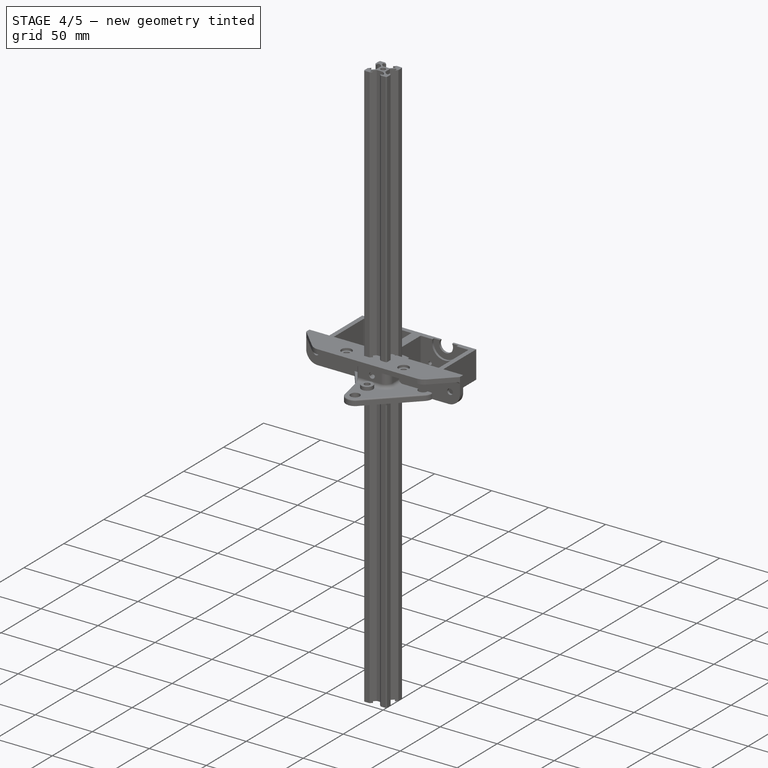
[diagram: stage 4 of 5 — iso view after this stage's code; geometry added in this stage tinted green]
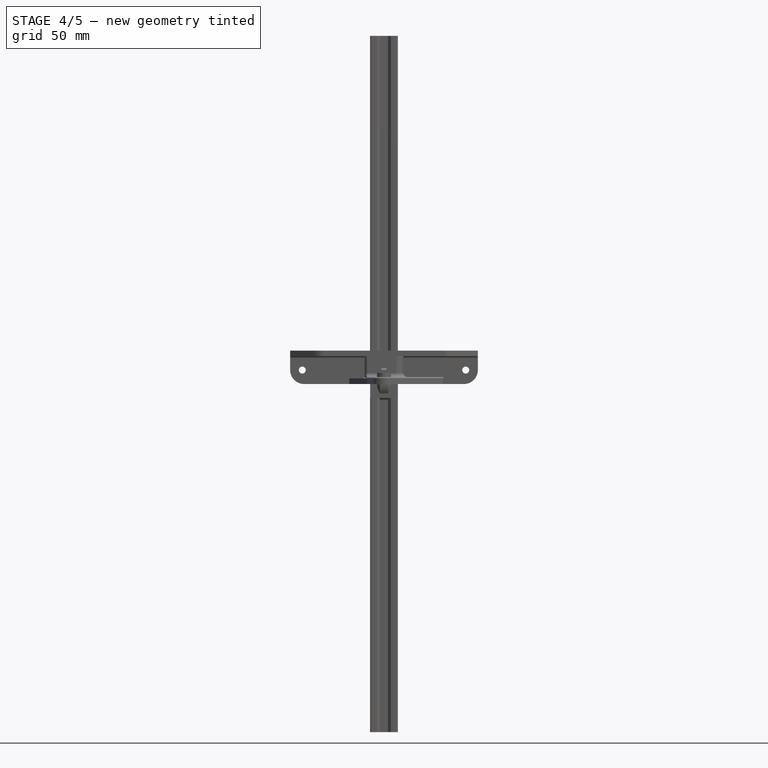
[diagram: stage 4 of 5 — front view after this stage's code; geometry added in this stage tinted green]
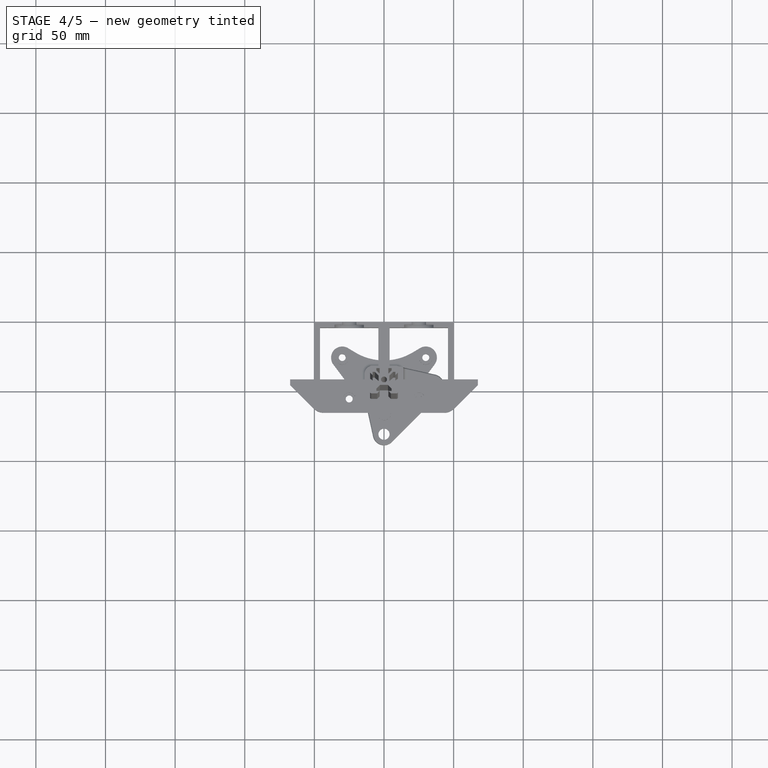
[diagram: stage 4 of 5 — top view after this stage's code; geometry added in this stage tinted green]
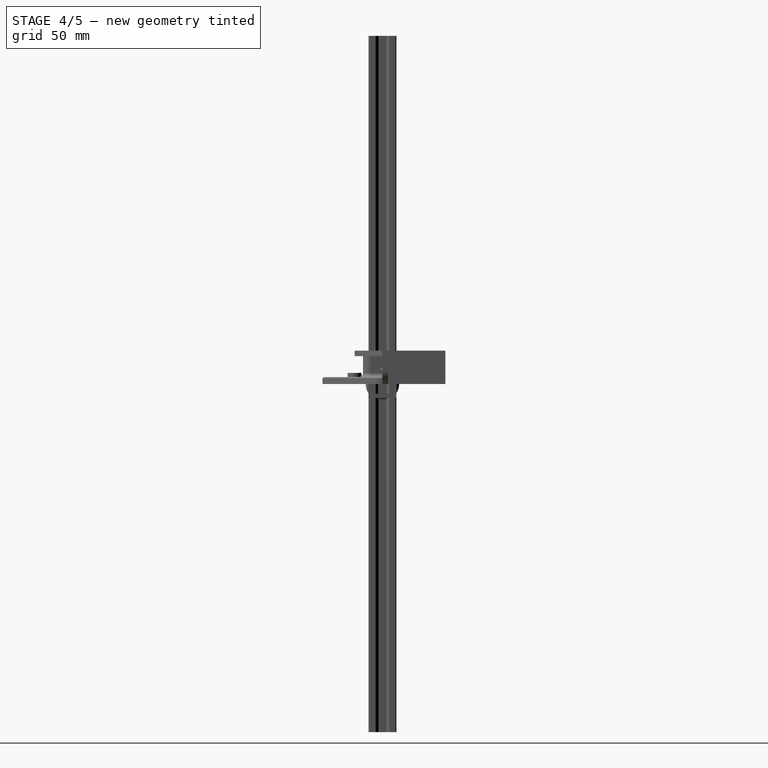
[diagram: stage 4 of 5 — right view after this stage's code; geometry added in this stage tinted green]
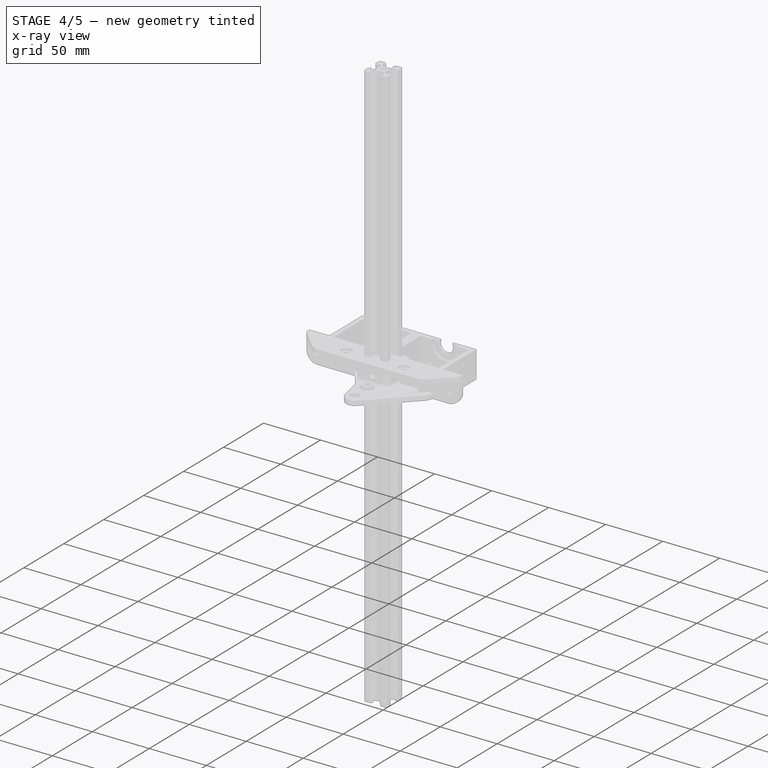
[diagram: stage 4 of 5 — x-ray composite at the iso view; earlier geometry ghosted, this stage's added geometry solid]
FEATURE [PartDesign::Body] Body012
  Group = -> [Sketch012,Pad012,Sketch013,Hole,Sketch014,Hole001,Sketch015,Hole002,Sketch016,Pocket,Sketch017,Pocket001,Sketch018,Pocket002]
  Origin = -> Origin017
  Tip = -> Pocket002
FEATURE [App::Part] Part004
  Group = -> [Body012]
  Origin = -> Origin018
  Placement = pos=(260,135,135) rot=(0,0,1;0rad)
  expr: Placement.Base.z = dim.z_len / 2 - 10
  expr: Placement.Base.y = dim.y_len / 2 - 10
  expr: Placement.Base.x = dim.x_len / 2 - 10
FEATURE [Sketcher::SketchObject] Sketch019
  MapMode = 5
  Placement = pos=(0,0,0) rot=(1,0,0;1.5708rad)
  Support = -> [XZ_Plane020]
  sketch-geometry (5):
    g0: LineSegment StartX=10 StartY=10 StartZ=0 EndX=-10 EndY=10 EndZ=0
    g1: LineSegment StartX=-10 StartY=10 StartZ=0 EndX=-10 EndY=-10 EndZ=0
    g2: LineSegment StartX=-10 StartY=-10 StartZ=0 EndX=10 EndY=-10 EndZ=0
    g3: LineSegment StartX=10 StartY=-10 StartZ=0 EndX=10 EndY=10 EndZ=0
    g4: Circle [constr] CenterX=0 CenterY=0 CenterZ=0 NormalX=0 NormalY=0 NormalZ=1 AngleXU=0 Radius=14.1421
  constraints (14):
    c: Coincident(g0,g1)
    c: Coincident(g1,g2)
    c: Coincident(g2,g3)
    c: Coincident(g3,g0)
    c: Equal(g0,g1)
    c: Equal(g0,g2)
    c: Equal(g0,g3)
    c: PointOnObject(g0,g4)
    c: PointOnObject(g1,g4)
    c: PointOnObject(g2,g4)
    c: PointOnObject(g3,g4)
    c: Coincident(g4,g-1)
    c: Horizontal(g0)
    c: DistanceX(g0,g0) = 20
FEATURE [PartDesign::Pad] Pad013
  Length = 20
  Length2 = 100
  Midplane = true
  Placement = pos=(0,0,0) rot=(1,0,0;1.5708rad)
  Profile = -> Sketch019
  Refine = true
  Type = 0
FEATURE [Sketcher::SketchObject] Sketch020
  MapMode = 5
  Placement = pos=(0,6.6e-15,10) rot=(0,0,1;3.14159rad)
  Support = -> [Pad013]
  sketch-geometry (1):
    g0: Circle CenterX=0 CenterY=0 CenterZ=0 NormalX=0 NormalY=0 NormalZ=1 AngleXU=0 Radius=5
  constraints (2):
    c: Coincident(g0,g-1)
    c: Radius(g0) = 5
FEATURE [PartDesign::Hole] Hole003
  BaseFeature = -> Pad013
  Depth = 25
  DepthType = 0
  Diameter = 5
  DrillPoint = 1
  DrillPointAngle = 118
  HoleCutCountersinkAngle = 90
  HoleCutDepth = 0
  HoleCutDiameter = 0
  HoleCutType = 0
  ModelActualThread = false
  Placement = pos=(0,0,0) rot=(1,0,0;1.5708rad)
  Profile = -> Sketch020
  Refine = true
  Tapered = false
  TaperedAngle = 90
  ThreadAngle = 0
  ThreadClass = 0
  ThreadCutOffInner = 0
  ThreadCutOffOuter = 0
  ThreadDirection = 0
  ThreadFit = 0
  ThreadPitch = 0
  ThreadSize = 0
  ThreadType = 0
  Threaded = false
FEATURE [Sketcher::SketchObject] Sketch021
  MapMode = 5
  Placement = pos=(10,0,0) rot=(0.707107,0,0.707107;3.14159rad)
  Support = -> [Hole003]
  sketch-geometry (1):
    g0: Circle CenterX=0 CenterY=0 CenterZ=0 NormalX=0 NormalY=0 NormalZ=1 AngleXU=0 Radius=6
  constraints (1):
    c: Radius(g0) = 6
FEATURE [PartDesign::Hole] Hole004
  BaseFeature = -> Hole003
  Depth = 25
  DepthType = 0
  Diameter = 5
  DrillPoint = 1
  DrillPointAngle = 118
  HoleCutCountersinkAngle = 90
  HoleCutDepth = 0
  HoleCutDiameter = 0
  HoleCutType = 0
  ModelActualThread = false
  Placement = pos=(0,0,0) rot=(1,0,0;1.5708rad)
  Profile = -> Sketch021
  Refine = true
  Tapered = false
  TaperedAngle = 90
  ThreadAngle = 0
  ThreadClass = 0
  ThreadCutOffInner = 0
  ThreadCutOffOuter = 0
  ThreadDirection = 0
  ThreadFit = 0
  ThreadPitch = 0
  ThreadSize = 0
  ThreadType = 0
  Threaded = false
FEATURE [Sketcher::SketchObject] Sketch022
  MapMode = 5
  Placement = pos=(0,10,-4.4e-15) rot=(-1,0,0;1.5708rad)
  Support = -> [Hole003]
  sketch-geometry (1):
    g0: Circle CenterX=0 CenterY=0 CenterZ=0 NormalX=0 NormalY=0 NormalZ=1 AngleXU=0 Radius=6
  constraints (2):
    c: Coincident(g0,g-1)
    c: Radius(g0) = 6
FEATURE [PartDesign::Hole] Hole005
  BaseFeature = -> Hole004
  Depth = 25
  DepthType = 0
  Diameter = 5
  DrillPoint = 1
  DrillPointAngle = 118
  HoleCutCountersinkAngle = 90
  HoleCutDepth = 0
  HoleCutDiameter = 0
  HoleCutType = 0
  ModelActualThread = false
  Placement = pos=(0,0,0) rot=(1,0,0;1.5708rad)
  Profile = -> Sketch022
  Refine = true
  Tapered = false
  TaperedAngle = 90
  ThreadAngle = 0
  ThreadClass = 0
  ThreadCutOffInner = 0
  ThreadCutOffOuter = 0
  ThreadDirection = 0
  ThreadFit = 0
  ThreadPitch = 0
  ThreadSize = 0
  ThreadType = 0
  Threaded = false
FEATURE [Sketcher::SketchObject] Sketch023
  MapMode = 5
  Placement = pos=(10,0,0) rot=(0.707107,0,0.707107;3.14159rad)
  Support = -> [Hole005]
  sketch-geometry (5):
    g0: LineSegment StartX=7 StartY=7 StartZ=0 EndX=-7 EndY=7 EndZ=0
    g1: LineSegment StartX=-7 StartY=7 StartZ=0 EndX=-7 EndY=-7 EndZ=0
    g2: LineSegment StartX=-7 StartY=-7 StartZ=0 EndX=7 EndY=-7 EndZ=0
    g3: LineSegment StartX=7 StartY=-7 StartZ=0 EndX=7 EndY=7 EndZ=0
    g4: Circle [constr] CenterX=0 CenterY=0 CenterZ=0 NormalX=0 NormalY=0 NormalZ=1 AngleXU=0 Radius=9.89949
  constraints (14):
    c: Coincident(g0,g1)
    c: Coincident(g1,g2)
    c: Coincident(g2,g3)
    c: Coincident(g3,g0)
    c: Equal(g0,g1)
    c: Equal(g0,g2)
    c: Equal(g0,g3)
    c: PointOnObject(g0,g4)
    c: PointOnObject(g1,g4)
    c: PointOnObject(g2,g4)
    c: PointOnObject(g3,g4)
    c: Coincident(g4,g-1)
    c: Horizontal(g0)
    c: DistanceX(g0,g0) = 14
FEATURE [PartDesign::Pocket] Pocket003
  BaseFeature = -> Hole005
  Length = 17
  Length2 = 100
  Placement = pos=(0,0,0) rot=(1,0,0;1.5708rad)
  Profile = -> Sketch023
  Refine = true
  Type = 0
FEATURE [Sketcher::SketchObject] Sketch024
  MapMode = 5
  Placement = pos=(0,10,-4.4e-15) rot=(-1,0,0;1.5708rad)
  Support = -> [Pocket003]
  sketch-geometry (5):
    g0: LineSegment StartX=7 StartY=7 StartZ=0 EndX=-7 EndY=7 EndZ=0
    g1: LineSegment StartX=-7 StartY=7 StartZ=0 EndX=-7 EndY=-7 EndZ=0
    g2: LineSegment StartX=-7 StartY=-7 StartZ=0 EndX=7 EndY=-7 EndZ=0
    g3: LineSegment StartX=7 StartY=-7 StartZ=0 EndX=7 EndY=7 EndZ=0
    g4: Circle [constr] CenterX=0 CenterY=0 CenterZ=0 NormalX=0 NormalY=0 NormalZ=1 AngleXU=0 Radius=9.89949
  constraints (14):
    c: Coincident(g0,g1)
    c: Coincident(g1,g2)
    c: Coincident(g2,g3)
    c: Coincident(g3,g0)
    c: Equal(g0,g1)
    c: Equal(g0,g2)
    c: Equal(g0,g3)
    c: PointOnObject(g0,g4)
    c: PointOnObject(g1,g4)
    c: PointOnObject(g2,g4)
    c: PointOnObject(g3,g4)
    c: Coincident(g4,g-1)
    c: Horizontal(g0)
    c: DistanceX(g0,g0) = 14
FEATURE [PartDesign::Pocket] Pocket004
  BaseFeature = -> Pocket003
  Length = 17
  Length2 = 100
  Placement = pos=(0,0,0) rot=(1,0,0;1.5708rad)
  Profile = -> Sketch024
  Refine = true
  Type = 0
FEATURE [PartDesign::Body] Body013
  Group = -> [Sketch019,Pad013,Sketch020,Hole003,Sketch021,Hole004,Sketch022,Hole005,Sketch023,Pocket003,Sketch024,Pocket004,Sketch025,Pocket005]
  Origin = -> Origin020
  Tip = -> Pocket005
FEATURE [App::Part] Part005
  Group = -> [Body013]
  Origin = -> Origin019
  Placement = pos=(-260,135,135) rot=(0,0,1;1.5708rad)
  expr: Placement.Base.z = dim.z_len / 2 - 10
  expr: Placement.Base.y = dim.y_len / 2 - 10
  expr: Placement.Base.x = -dim.x_len / 2 + 10
FEATURE [Sketcher::SketchObject] Sketch026
  MapMode = 5
  Placement = pos=(0,0,0) rot=(1,0,0;1.5708rad)
  Support = -> [XZ_Plane022]
  sketch-geometry (5):
    g0: LineSegment StartX=10 StartY=10 StartZ=0 EndX=-10 EndY=10 EndZ=0
    g1: LineSegment StartX=-10 StartY=10 StartZ=0 EndX=-10 EndY=-10 EndZ=0
    g2: LineSegment StartX=-10 StartY=-10 StartZ=0 EndX=10 EndY=-10 EndZ=0
    g3: LineSegment StartX=10 StartY=-10 StartZ=0 EndX=10 EndY=10 EndZ=0
    g4: Circle [constr] CenterX=0 CenterY=0 CenterZ=0 NormalX=0 NormalY=0 NormalZ=1 AngleXU=0 Radius=14.1421
  constraints (14):
    c: Coincident(g0,g1)
    c: Coincident(g1,g2)
    c: Coincident(g2,g3)
    c: Coincident(g3,g0)
    c: Equal(g0,g1)
    c: Equal(g0,g2)
    c: Equal(g0,g3)
    c: PointOnObject(g0,g4)
    c: PointOnObject(g1,g4)
    c: PointOnObject(g2,g4)
    c: PointOnObject(g3,g4)
    c: Coincident(g4,g-1)
    c: Horizontal(g0)
    c: DistanceX(g0,g0) = 20
FEATURE [PartDesign::Pad] Pad014
  Length = 20
  Length2 = 100
  Midplane = true
  Placement = pos=(0,0,0) rot=(1,0,0;1.5708rad)
  Profile = -> Sketch026
  Refine = true
  Type = 0
FEATURE [Sketcher::SketchObject] Sketch027
  MapMode = 5
  Placement = pos=(0,6.6e-15,10) rot=(0,0,1;3.14159rad)
  Support = -> [Pad014]
  sketch-geometry (1):
    g0: Circle CenterX=0 CenterY=0 CenterZ=0 NormalX=0 NormalY=0 NormalZ=1 AngleXU=0 Radius=5
  constraints (2):
    c: Coincident(g0,g-1)
    c: Radius(g0) = 5
FEATURE [PartDesign::Hole] Hole006
  BaseFeature = -> Pad014
  Depth = 25
  DepthType = 0
  Diameter = 5
  DrillPoint = 1
  DrillPointAngle = 118
  HoleCutCountersinkAngle = 90
  HoleCutDepth = 0
  HoleCutDiameter = 0
  HoleCutType = 0
  ModelActualThread = false
  Placement = pos=(0,0,0) rot=(1,0,0;1.5708rad)
  Profile = -> Sketch027
  Refine = true
  Tapered = false
  TaperedAngle = 90
  ThreadAngle = 0
  ThreadClass = 0
  ThreadCutOffInner = 0
  ThreadCutOffOuter = 0
  ThreadDirection = 0
  ThreadFit = 0
  ThreadPitch = 0
  ThreadSize = 0
  ThreadType = 0
  Threaded = false
FEATURE [Sketcher::SketchObject] Sketch028
  MapMode = 5
  Placement = pos=(10,0,0) rot=(0.707107,0,0.707107;3.14159rad)
  Support = -> [Hole006]
  sketch-geometry (1):
    g0: Circle CenterX=0 CenterY=0 CenterZ=0 NormalX=0 NormalY=0 NormalZ=1 AngleXU=0 Radius=6
  constraints (1):
    c: Radius(g0) = 6
FEATURE [PartDesign::Hole] Hole007
  BaseFeature = -> Hole006
  Depth = 25
  DepthType = 0
  Diameter = 5
  DrillPoint = 1
  DrillPointAngle = 118
  HoleCutCountersinkAngle = 90
  HoleCutDepth = 0
  HoleCutDiameter = 0
  HoleCutType = 0
  ModelActualThread = false
  Placement = pos=(0,0,0) rot=(1,0,0;1.5708rad)
  Profile = -> Sketch028
  Refine = true
  Tapered = false
  TaperedAngle = 90
  ThreadAngle = 0
  ThreadClass = 0
  ThreadCutOffInner = 0
  ThreadCutOffOuter = 0
  ThreadDirection = 0
  ThreadFit = 0
  ThreadPitch = 0
  ThreadSize = 0
  ThreadType = 0
  Threaded = false
FEATURE [Sketcher::SketchObject] Sketch029
  MapMode = 5
  Placement = pos=(0,10,-4.4e-15) rot=(-1,0,0;1.5708rad)
  Support = -> [Hole006]
  sketch-geometry (1):
    g0: Circle CenterX=0 CenterY=0 CenterZ=0 NormalX=0 NormalY=0 NormalZ=1 AngleXU=0 Radius=6
  constraints (2):
    c: Coincident(g0,g-1)
    c: Radius(g0) = 6
FEATURE [PartDesign::Hole] Hole008
  BaseFeature = -> Hole007
  Depth = 25
  DepthType = 0
  Diameter = 5
  DrillPoint = 1
  DrillPointAngle = 118
  HoleCutCountersinkAngle = 90
  HoleCutDepth = 0
  HoleCutDiameter = 0
  HoleCutType = 0
  ModelActualThread = false
  Placement = pos=(0,0,0) rot=(1,0,0;1.5708rad)
  Profile = -> Sketch029
  Refine = true
  Tapered = false
  TaperedAngle = 90
  ThreadAngle = 0
  ThreadClass = 0
  ThreadCutOffInner = 0
  ThreadCutOffOuter = 0
  ThreadDirection = 0
  ThreadFit = 0
  ThreadPitch = 0
  ThreadSize = 0
  ThreadType = 0
  Threaded = false
FEATURE [Sketcher::SketchObject] Sketch030
  MapMode = 5
  Placement = pos=(10,0,0) rot=(0.707107,0,0.707107;3.14159rad)
  Support = -> [Hole008]
  sketch-geometry (5):
    g0: LineSegment StartX=7 StartY=7 StartZ=0 EndX=-7 EndY=7 EndZ=0
    g1: LineSegment StartX=-7 StartY=7 StartZ=0 EndX=-7 EndY=-7 EndZ=0
    g2: LineSegment StartX=-7 StartY=-7 StartZ=0 EndX=7 EndY=-7 EndZ=0
    g3: LineSegment StartX=7 StartY=-7 StartZ=0 EndX=7 EndY=7 EndZ=0
    g4: Circle [constr] CenterX=0 CenterY=0 CenterZ=0 NormalX=0 NormalY=0 NormalZ=1 AngleXU=0 Radius=9.89949
  constraints (14):
    c: Coincident(g0,g1)
    c: Coincident(g1,g2)
    c: Coincident(g2,g3)
    c: Coincident(g3,g0)
    c: Equal(g0,g1)
    c: Equal(g0,g2)
    c: Equal(g0,g3)
    c: PointOnObject(g0,g4)
    c: PointOnObject(g1,g4)
    c: PointOnObject(g2,g4)
    c: PointOnObject(g3,g4)
    c: Coincident(g4,g-1)
    c: Horizontal(g0)
    c: DistanceX(g0,g0) = 14
FEATURE [PartDesign::Pocket] Pocket006
  BaseFeature = -> Hole008
  Length = 17
  Length2 = 100
  Placement = pos=(0,0,0) rot=(1,0,0;1.5708rad)
  Profile = -> Sketch030
  Refine = true
  Type = 0
FEATURE [Sketcher::SketchObject] Sketch031
  MapMode = 5
  Placement = pos=(0,10,-4.4e-15) rot=(-1,0,0;1.5708rad)
  Support = -> [Pocket006]
  sketch-geometry (5):
    g0: LineSegment StartX=7 StartY=7 StartZ=0 EndX=-7 EndY=7 EndZ=0
    g1: LineSegment StartX=-7 StartY=7 StartZ=0 EndX=-7 EndY=-7 EndZ=0
    g2: LineSegment StartX=-7 StartY=-7 StartZ=0 EndX=7 EndY=-7 EndZ=0
    g3: LineSegment StartX=7 StartY=-7 StartZ=0 EndX=7 EndY=7 EndZ=0
    g4: Circle [constr] CenterX=0 CenterY=0 CenterZ=0 NormalX=0 NormalY=0 NormalZ=1 AngleXU=0 Radius=9.89949
  constraints (14):
    c: Coincident(g0,g1)
    c: Coincident(g1,g2)
    c: Coincident(g2,g3)
    c: Coincident(g3,g0)
    c: Equal(g0,g1)
    c: Equal(g0,g2)
    c: Equal(g0,g3)
    c: PointOnObject(g0,g4)
    c: PointOnObject(g1,g4)
    c: PointOnObject(g2,g4)
    c: PointOnObject(g3,g4)
    c: Coincident(g4,g-1)
    c: Horizontal(g0)
    c: DistanceX(g0,g0) = 14
FEATURE [PartDesign::Pocket] Pocket007
  BaseFeature = -> Pocket006
  Length = 17
  Length2 = 100
  Placement = pos=(0,0,0) rot=(1,0,0;1.5708rad)
  Profile = -> Sketch031
  Refine = true
  Type = 0
FEATURE [Sketcher::SketchObject] Sketch032
  MapMode = 5
  Placement = pos=(0,6.6e-15,10) rot=(0,0,1;3.14159rad)
  Support = -> [Pocket007]
  sketch-geometry (5):
    g0: LineSegment StartX=7 StartY=7 StartZ=0 EndX=-7 EndY=7 EndZ=0
    g1: LineSegment StartX=-7 StartY=7 StartZ=0 EndX=-7 EndY=-7 EndZ=0
    g2: LineSegment StartX=-7 StartY=-7 StartZ=0 EndX=7 EndY=-7 EndZ=0
    g3: LineSegment StartX=7 StartY=-7 StartZ=0 EndX=7 EndY=7 EndZ=0
    g4: Circle [constr] CenterX=0 CenterY=0 CenterZ=0 NormalX=0 NormalY=0 NormalZ=1 AngleXU=0 Radius=9.89949
  constraints (14):
    c: Coincident(g0,g1)
    c: Coincident(g1,g2)
    c: Coincident(g2,g3)
    c: Coincident(g3,g0)
    c: Equal(g0,g1)
    c: Equal(g0,g2)
    c: Equal(g0,g3)
    c: PointOnObject(g0,g4)
    c: PointOnObject(g1,g4)
    c: PointOnObject(g2,g4)
    c: PointOnObject(g3,g4)
    c: Coincident(g4,g-1)
    c: Horizontal(g0)
    c: DistanceX(g0,g0) = 14
FEATURE [PartDesign::Pocket] Pocket008
  BaseFeature = -> Pocket007
  Length = 17
  Length2 = 100
  Placement = pos=(0,0,0) rot=(1,0,0;1.5708rad)
  Profile = -> Sketch032
  Refine = true
  Type = 0
FEATURE [PartDesign::Body] Body014
  Group = -> [Sketch026,Pad014,Sketch027,Hole006,Sketch028,Hole007,Sketch029,Hole008,Sketch030,Pocket006,Sketch031,Pocket007,Sketch032,Pocket008]
  Origin = -> Origin022
  Tip = -> Pocket008
FEATURE [App::Part] Part006
  Group = -> [Body014]
  Origin = -> Origin021
  Placement = pos=(-260,-135,135) rot=(0,0,1;3.14159rad)
  expr: Placement.Base.z = dim.z_len / 2 - 10
  expr: Placement.Base.y = -dim.y_len / 2 + 10
  expr: Placement.Base.x = -dim.x_len / 2 + 10
FEATURE [Sketcher::SketchObject] Sketch033
  MapMode = 5
  Placement = pos=(0,0,0) rot=(1,0,0;1.5708rad)
  Support = -> [XZ_Plane024]
  sketch-geometry (5):
    g0: LineSegment StartX=10 StartY=10 StartZ=0 EndX=-10 EndY=10 EndZ=0
    g1: LineSegment StartX=-10 StartY=10 StartZ=0 EndX=-10 EndY=-10 EndZ=0
    g2: LineSegment StartX=-10 StartY=-10 StartZ=0 EndX=10 EndY=-10 EndZ=0
    g3: LineSegment StartX=10 StartY=-10 StartZ=0 EndX=10 EndY=10 EndZ=0
    g4: Circle [constr] CenterX=0 CenterY=0 CenterZ=0 NormalX=0 NormalY=0 NormalZ=1 AngleXU=0 Radius=14.1421
  constraints (14):
    c: Coincident(g0,g1)
    c: Coincident(g1,g2)
    c: Coincident(g2,g3)
    c: Coincident(g3,g0)
    c: Equal(g0,g1)
    c: Equal(g0,g2)
    c: Equal(g0,g3)
    c: PointOnObject(g0,g4)
    c: PointOnObject(g1,g4)
    c: PointOnObject(g2,g4)
    c: PointOnObject(g3,g4)
    c: Coincident(g4,g-1)
    c: Horizontal(g0)
    c: DistanceX(g0,g0) = 20
FEATURE [PartDesign::Pad] Pad015
  Length = 20
  Length2 = 100
  Midplane = true
  Placement = pos=(0,0,0) rot=(1,0,0;1.5708rad)
  Profile = -> Sketch033
  Refine = true
  Type = 0
FEATURE [Sketcher::SketchObject] Sketch034
  MapMode = 5
  Placement = pos=(0,6.6e-15,10) rot=(0,0,1;3.14159rad)
  Support = -> [Pad015]
  sketch-geometry (1):
    g0: Circle CenterX=0 CenterY=0 CenterZ=0 NormalX=0 NormalY=0 NormalZ=1 AngleXU=0 Radius=5
  constraints (2):
    c: Coincident(g0,g-1)
    c: Radius(g0) = 5
FEATURE [PartDesign::Hole] Hole009
  BaseFeature = -> Pad015
  Depth = 25
  DepthType = 0
  Diameter = 5
  DrillPoint = 1
  DrillPointAngle = 118
  HoleCutCountersinkAngle = 90
  HoleCutDepth = 0
  HoleCutDiameter = 0
  HoleCutType = 0
  ModelActualThread = false
  Placement = pos=(0,0,0) rot=(1,0,0;1.5708rad)
  Profile = -> Sketch034
  Refine = true
  Tapered = false
  TaperedAngle = 90
  ThreadAngle = 0
  ThreadClass = 0
  ThreadCutOffInner = 0
  ThreadCutOffOuter = 0
  ThreadDirection = 0
  ThreadFit = 0
  ThreadPitch = 0
  ThreadSize = 0
  ThreadType = 0
  Threaded = false
FEATURE [Sketcher::SketchObject] Sketch035
  MapMode = 5
  Placement = pos=(10,0,0) rot=(0.707107,0,0.707107;3.14159rad)
  Support = -> [Hole009]
  sketch-geometry (1):
    g0: Circle CenterX=0 CenterY=0 CenterZ=0 NormalX=0 NormalY=0 NormalZ=1 AngleXU=0 Radius=6
  constraints (1):
    c: Radius(g0) = 6
FEATURE [PartDesign::Hole] Hole010
  BaseFeature = -> Hole009
  Depth = 25
  DepthType = 0
  Diameter = 5
  DrillPoint = 1
  DrillPointAngle = 118
  HoleCutCountersinkAngle = 90
  HoleCutDepth = 0
  HoleCutDiameter = 0
  HoleCutType = 0
  ModelActualThread = false
  Placement = pos=(0,0,0) rot=(1,0,0;1.5708rad)
  Profile = -> Sketch035
  Refine = true
  Tapered = false
  TaperedAngle = 90
  ThreadAngle = 0
  ThreadClass = 0
  ThreadCutOffInner = 0
  ThreadCutOffOuter = 0
  ThreadDirection = 0
  ThreadFit = 0
  ThreadPitch = 0
  ThreadSize = 0
  ThreadType = 0
  Threaded = false
FEATURE [Sketcher::SketchObject] Sketch036
  MapMode = 5
  Placement = pos=(0,10,-4.4e-15) rot=(-1,0,0;1.5708rad)
  Support = -> [Hole009]
  sketch-geometry (1):
    g0: Circle CenterX=0 CenterY=0 CenterZ=0 NormalX=0 NormalY=0 NormalZ=1 AngleXU=0 Radius=6
  constraints (2):
    c: Coincident(g0,g-1)
    c: Radius(g0) = 6
FEATURE [PartDesign::Hole] Hole011
  BaseFeature = -> Hole010
  Depth = 25
  DepthType = 0
  Diameter = 5
  DrillPoint = 1
  DrillPointAngle = 118
  HoleCutCountersinkAngle = 90
  HoleCutDepth = 0
  HoleCutDiameter = 0
  HoleCutType = 0
  ModelActualThread = false
  Placement = pos=(0,0,0) rot=(1,0,0;1.5708rad)
  Profile = -> Sketch036
  Refine = true
  Tapered = false
  TaperedAngle = 90
  ThreadAngle = 0
  ThreadClass = 0
  ThreadCutOffInner = 0
  ThreadCutOffOuter = 0
  ThreadDirection = 0
  ThreadFit = 0
  ThreadPitch = 0
  ThreadSize = 0
  ThreadType = 0
  Threaded = false
FEATURE [Sketcher::SketchObject] Sketch037
  MapMode = 5
  Placement = pos=(10,0,0) rot=(0.707107,0,0.707107;3.14159rad)
  Support = -> [Hole011]
  sketch-geometry (5):
    g0: LineSegment StartX=7 StartY=7 StartZ=0 EndX=-7 EndY=7 EndZ=0
    g1: LineSegment StartX=-7 StartY=7 StartZ=0 EndX=-7 EndY=-7 EndZ=0
    g2: LineSegment StartX=-7 StartY=-7 StartZ=0 EndX=7 EndY=-7 EndZ=0
    g3: LineSegment StartX=7 StartY=-7 StartZ=0 EndX=7 EndY=7 EndZ=0
    g4: Circle [constr] CenterX=0 CenterY=0 CenterZ=0 NormalX=0 NormalY=0 NormalZ=1 AngleXU=0 Radius=9.89949
  constraints (14):
    c: Coincident(g0,g1)
    c: Coincident(g1,g2)
    c: Coincident(g2,g3)
    c: Coincident(g3,g0)
    c: Equal(g0,g1)
    c: Equal(g0,g2)
    c: Equal(g0,g3)
    c: PointOnObject(g0,g4)
    c: PointOnObject(g1,g4)
    c: PointOnObject(g2,g4)
    c: PointOnObject(g3,g4)
    c: Coincident(g4,g-1)
    c: Horizontal(g0)
    c: DistanceX(g0,g0) = 14
FEATURE [PartDesign::Pocket] Pocket009
  BaseFeature = -> Hole011
  Length = 17
  Length2 = 100
  Placement = pos=(0,0,0) rot=(1,0,0;1.5708rad)
  Profile = -> Sketch037
  Refine = true
  Type = 0
FEATURE [Sketcher::SketchObject] Sketch038
  MapMode = 5
  Placement = pos=(0,10,-4.4e-15) rot=(-1,0,0;1.5708rad)
  Support = -> [Pocket009]
  sketch-geometry (5):
    g0: LineSegment StartX=7 StartY=7 StartZ=0 EndX=-7 EndY=7 EndZ=0
    g1: LineSegment StartX=-7 StartY=7 StartZ=0 EndX=-7 EndY=-7 EndZ=0
    g2: LineSegment StartX=-7 StartY=-7 StartZ=0 EndX=7 EndY=-7 EndZ=0
    g3: LineSegment StartX=7 StartY=-7 StartZ=0 EndX=7 EndY=7 EndZ=0
    g4: Circle [constr] CenterX=0 CenterY=0 CenterZ=0 NormalX=0 NormalY=0 NormalZ=1 AngleXU=0 Radius=9.89949
  constraints (14):
    c: Coincident(g0,g1)
    c: Coincident(g1,g2)
    c: Coincident(g2,g3)
    c: Coincident(g3,g0)
    c: Equal(g0,g1)
    c: Equal(g0,g2)
    c: Equal(g0,g3)
    c: PointOnObject(g0,g4)
    c: PointOnObject(g1,g4)
    c: PointOnObject(g2,g4)
    c: PointOnObject(g3,g4)
    c: Coincident(g4,g-1)
    c: Horizontal(g0)
    c: DistanceX(g0,g0) = 14
FEATURE [PartDesign::Pocket] Pocket010
  BaseFeature = -> Pocket009
  Length = 17
  Length2 = 100
  Placement = pos=(0,0,0) rot=(1,0,0;1.5708rad)
  Profile = -> Sketch038
  Refine = true
  Type = 0
FEATURE [Sketcher::SketchObject] Sketch039
  MapMode = 5
  Placement = pos=(0,6.6e-15,10) rot=(0,0,1;3.14159rad)
  Support = -> [Pocket010]
  sketch-geometry (5):
    g0: LineSegment StartX=7 StartY=7 StartZ=0 EndX=-7 EndY=7 EndZ=0
    g1: LineSegment StartX=-7 StartY=7 StartZ=0 EndX=-7 EndY=-7 EndZ=0
    g2: LineSegment StartX=-7 StartY=-7 StartZ=0 EndX=7 EndY=-7 EndZ=0
    g3: LineSegment StartX=7 StartY=-7 StartZ=0 EndX=7 EndY=7 EndZ=0
    g4: Circle [constr] CenterX=0 CenterY=0 CenterZ=0 NormalX=0 NormalY=0 NormalZ=1 AngleXU=0 Radius=9.89949
  constraints (14):
    c: Coincident(g0,g1)
    c: Coincident(g1,g2)
    c: Coincident(g2,g3)
    c: Coincident(g3,g0)
    c: Equal(g0,g1)
    c: Equal(g0,g2)
    c: Equal(g0,g3)
    c: PointOnObject(g0,g4)
    c: PointOnObject(g1,g4)
    c: PointOnObject(g2,g4)
    c: PointOnObject(g3,g4)
    c: Coincident(g4,g-1)
    c: Horizontal(g0)
    c: DistanceX(g0,g0) = 14
FEATURE [PartDesign::Pocket] Pocket011
  BaseFeature = -> Pocket010
  Length = 17
  Length2 = 100
  Placement = pos=(0,0,0) rot=(1,0,0;1.5708rad)
  Profile = -> Sketch039
  Refine = true
  Type = 0
FEATURE [PartDesign::Body] Body015
  Group = -> [Sketch033,Pad015,Sketch034,Hole009,Sketch035,Hole010,Sketch036,Hole011,Sketch037,Pocket009,Sketch038,Pocket010,Sketch039,Pocket011]
  Origin = -> Origin024
  Tip = -> Pocket011
FEATURE [App::Part] Part007
  Group = -> [Body015]
  Origin = -> Origin023
  Placement = pos=(260,-135,135) rot=(0,0,1;4.71239rad)
  expr: Placement.Base.z = dim.z_len / 2 - 10
  expr: Placement.Base.y = -dim.y_len / 2 + 10
  expr: Placement.Base.x = dim.x_len / 2 - 10
FEATURE [Sketcher::SketchObject] Sketch040
  MapMode = 5
  Placement = pos=(0,0,0) rot=(1,0,0;1.5708rad)
  Support = -> [XZ_Plane026]
  sketch-geometry (5):
    g0: LineSegment StartX=10 StartY=10 StartZ=0 EndX=-10 EndY=10 EndZ=0
    g1: LineSegment StartX=-10 StartY=10 StartZ=0 EndX=-10 EndY=-10 EndZ=0
    g2: LineSegment StartX=-10 StartY=-10 StartZ=0 EndX=10 EndY=-10 EndZ=0
    g3: LineSegment StartX=10 StartY=-10 StartZ=0 EndX=10 EndY=10 EndZ=0
    g4: Circle [constr] CenterX=0 CenterY=0 CenterZ=0 NormalX=0 NormalY=0 NormalZ=1 AngleXU=0 Radius=14.1421
  constraints (14):
    c: Coincident(g0,g1)
    c: Coincident(g1,g2)
    c: Coincident(g2,g3)
    c: Coincident(g3,g0)
    c: Equal(g0,g1)
    c: Equal(g0,g2)
    c: Equal(g0,g3)
    c: PointOnObject(g0,g4)
    c: PointOnObject(g1,g4)
    c: PointOnObject(g2,g4)
    c: PointOnObject(g3,g4)
    c: Coincident(g4,g-1)
    c: Horizontal(g0)
    c: DistanceX(g0,g0) = 20
FEATURE [PartDesign::Pad] Pad016
  Length = 20
  Length2 = 100
  Midplane = true
  Placement = pos=(0,0,0) rot=(1,0,0;1.5708rad)
  Profile = -> Sketch040
  Refine = true
  Type = 0
FEATURE [Sketcher::SketchObject] Sketch041
  MapMode = 5
  Placement = pos=(0,6.6e-15,10) rot=(0,0,1;3.14159rad)
  Support = -> [Pad016]
  sketch-geometry (1):
    g0: Circle CenterX=0 CenterY=0 CenterZ=0 NormalX=0 NormalY=0 NormalZ=1 AngleXU=0 Radius=5
  constraints (2):
    c: Coincident(g0,g-1)
    c: Radius(g0) = 5
FEATURE [PartDesign::Hole] Hole012
  BaseFeature = -> Pad016
  Depth = 25
  DepthType = 0
  Diameter = 5
  DrillPoint = 1
  DrillPointAngle = 118
  HoleCutCountersinkAngle = 90
  HoleCutDepth = 0
  HoleCutDiameter = 0
  HoleCutType = 0
  ModelActualThread = false
  Placement = pos=(0,0,0) rot=(1,0,0;1.5708rad)
  Profile = -> Sketch041
  Refine = true
  Tapered = false
  TaperedAngle = 90
  ThreadAngle = 0
  ThreadClass = 0
  ThreadCutOffInner = 0
  ThreadCutOffOuter = 0
  ThreadDirection = 0
  ThreadFit = 0
  ThreadPitch = 0
  ThreadSize = 0
  ThreadType = 0
  Threaded = false
FEATURE [Sketcher::SketchObject] Sketch042
  MapMode = 5
  Placement = pos=(10,0,0) rot=(0.707107,0,0.707107;3.14159rad)
  Support = -> [Hole012]
  sketch-geometry (1):
    g0: Circle CenterX=0 CenterY=0 CenterZ=0 NormalX=0 NormalY=0 NormalZ=1 AngleXU=0 Radius=6
  constraints (1):
    c: Radius(g0) = 6
FEATURE [PartDesign::Hole] Hole013
  BaseFeature = -> Hole012
  Depth = 25
  DepthType = 0
  Diameter = 5
  DrillPoint = 1
  DrillPointAngle = 118
  HoleCutCountersinkAngle = 90
  HoleCutDepth = 0
  HoleCutDiameter = 0
  HoleCutType = 0
  ModelActualThread = false
  Placement = pos=(0,0,0) rot=(1,0,0;1.5708rad)
  Profile = -> Sketch042
  Refine = true
  Tapered = false
  TaperedAngle = 90
  ThreadAngle = 0
  ThreadClass = 0
  ThreadCutOffInner = 0
  ThreadCutOffOuter = 0
  ThreadDirection = 0
  ThreadFit = 0
  ThreadPitch = 0
  ThreadSize = 0
  ThreadType = 0
  Threaded = false
FEATURE [Sketcher::SketchObject] Sketch043
  MapMode = 5
  Placement = pos=(0,10,-4.4e-15) rot=(-1,0,0;1.5708rad)
  Support = -> [Hole012]
  sketch-geometry (1):
    g0: Circle CenterX=0 CenterY=0 CenterZ=0 NormalX=0 NormalY=0 NormalZ=1 AngleXU=0 Radius=6
  constraints (2):
    c: Coincident(g0,g-1)
    c: Radius(g0) = 6
FEATURE [PartDesign::Hole] Hole014
  BaseFeature = -> Hole013
  Depth = 25
  DepthType = 0
  Diameter = 5
  DrillPoint = 1
  DrillPointAngle = 118
  HoleCutCountersinkAngle = 90
  HoleCutDepth = 0
  HoleCutDiameter = 0
  HoleCutType = 0
  ModelActualThread = false
  Placement = pos=(0,0,0) rot=(1,0,0;1.5708rad)
  Profile = -> Sketch043
  Refine = true
  Tapered = false
  TaperedAngle = 90
  ThreadAngle = 0
  ThreadClass = 0
  ThreadCutOffInner = 0
  ThreadCutOffOuter = 0
  ThreadDirection = 0
  ThreadFit = 0
  ThreadPitch = 0
  ThreadSize = 0
  ThreadType = 0
  Threaded = false
FEATURE [Sketcher::SketchObject] Sketch044
  MapMode = 5
  Placement = pos=(10,0,0) rot=(0.707107,0,0.707107;3.14159rad)
  Support = -> [Hole014]
  sketch-geometry (5):
    g0: LineSegment StartX=7 StartY=7 StartZ=0 EndX=-7 EndY=7 EndZ=0
    g1: LineSegment StartX=-7 StartY=7 StartZ=0 EndX=-7 EndY=-7 EndZ=0
    g2: LineSegment StartX=-7 StartY=-7 StartZ=0 EndX=7 EndY=-7 EndZ=0
    g3: LineSegment StartX=7 StartY=-7 StartZ=0 EndX=7 EndY=7 EndZ=0
    g4: Circle [constr] CenterX=0 CenterY=0 CenterZ=0 NormalX=0 NormalY=0 NormalZ=1 AngleXU=0 Radius=9.89949
  constraints (14):
    c: Coincident(g0,g1)
    c: Coincident(g1,g2)
    c: Coincident(g2,g3)
    c: Coincident(g3,g0)
    c: Equal(g0,g1)
    c: Equal(g0,g2)
    c: Equal(g0,g3)
    c: PointOnObject(g0,g4)
    c: PointOnObject(g1,g4)
    c: PointOnObject(g2,g4)
    c: PointOnObject(g3,g4)
    c: Coincident(g4,g-1)
    c: Horizontal(g0)
    c: DistanceX(g0,g0) = 14
FEATURE [PartDesign::Pocket] Pocket012
  BaseFeature = -> Hole014
  Length = 17
  Length2 = 100
  Placement = pos=(0,0,0) rot=(1,0,0;1.5708rad)
  Profile = -> Sketch044
  Refine = true
  Type = 0
FEATURE [Sketcher::SketchObject] Sketch045
  MapMode = 5
  Placement = pos=(0,10,-4.4e-15) rot=(-1,0,0;1.5708rad)
  Support = -> [Pocket012]
  sketch-geometry (5):
    g0: LineSegment StartX=7 StartY=7 StartZ=0 EndX=-7 EndY=7 EndZ=0
    g1: LineSegment StartX=-7 StartY=7 StartZ=0 EndX=-7 EndY=-7 EndZ=0
    g2: LineSegment StartX=-7 StartY=-7 StartZ=0 EndX=7 EndY=-7 EndZ=0
    g3: LineSegment StartX=7 StartY=-7 StartZ=0 EndX=7 EndY=7 EndZ=0
    g4: Circle [constr] CenterX=0 CenterY=0 CenterZ=0 NormalX=0 NormalY=0 NormalZ=1 AngleXU=0 Radius=9.89949
  constraints (14):
    c: Coincident(g0,g1)
    c: Coincident(g1,g2)
    c: Coincident(g2,g3)
    c: Coincident(g3,g0)
    c: Equal(g0,g1)
    c: Equal(g0,g2)
    c: Equal(g0,g3)
    c: PointOnObject(g0,g4)
    c: PointOnObject(g1,g4)
    c: PointOnObject(g2,g4)
    c: PointOnObject(g3,g4)
    c: Coincident(g4,g-1)
    c: Horizontal(g0)
    c: DistanceX(g0,g0) = 14
FEATURE [PartDesign::Pocket] Pocket013
  BaseFeature = -> Pocket012
  Length = 17
  Length2 = 100
  Placement = pos=(0,0,0) rot=(1,0,0;1.5708rad)
  Profile = -> Sketch045
  Refine = true
  Type = 0
FEATURE [Sketcher::SketchObject] Sketch046
  MapMode = 5
  Placement = pos=(0,6.6e-15,10) rot=(0,0,1;3.14159rad)
  Support = -> [Pocket013]
  sketch-geometry (5):
    g0: LineSegment StartX=7 StartY=7 StartZ=0 EndX=-7 EndY=7 EndZ=0
    g1: LineSegment StartX=-7 StartY=7 StartZ=0 EndX=-7 EndY=-7 EndZ=0
    g2: LineSegment StartX=-7 StartY=-7 StartZ=0 EndX=7 EndY=-7 EndZ=0
    g3: LineSegment StartX=7 StartY=-7 StartZ=0 EndX=7 EndY=7 EndZ=0
    g4: Circle [constr] CenterX=0 CenterY=0 CenterZ=0 NormalX=0 NormalY=0 NormalZ=1 AngleXU=0 Radius=9.89949
  constraints (14):
    c: Coincident(g0,g1)
    c: Coincident(g1,g2)
    c: Coincident(g2,g3)
    c: Coincident(g3,g0)
    c: Equal(g0,g1)
    c: Equal(g0,g2)
    c: Equal(g0,g3)
    c: PointOnObject(g0,g4)
    c: PointOnObject(g1,g4)
    c: PointOnObject(g2,g4)
    c: PointOnObject(g3,g4)
    c: Coincident(g4,g-1)
    c: Horizontal(g0)
    c: DistanceX(g0,g0) = 14
FEATURE [PartDesign::Pocket] Pocket014
  BaseFeature = -> Pocket013
  Length = 17
  Length2 = 100
  Placement = pos=(0,0,0) rot=(1,0,0;1.5708rad)
  Profile = -> Sketch046
  Refine = true
  Type = 0
FEATURE [Sketcher::SketchObject] Sketch050
  MapMode = 5
  Placement = pos=(0,10,-4.4e-15) rot=(-1,0,0;1.5708rad)
  Support = -> [Hole015]
  sketch-geometry (1):
    g0: Circle CenterX=0 CenterY=0 CenterZ=0 NormalX=0 NormalY=0 NormalZ=1 AngleXU=0 Radius=6
  constraints (2):
    c: Coincident(g0,g-1)
    c: Radius(g0) = 6
FEATURE [PartDesign::Hole] Hole017
  BaseFeature = -> Hole016
  Depth = 25
  DepthType = 0
  Diameter = 5
  DrillPoint = 1
  DrillPointAngle = 118
  HoleCutCountersinkAngle = 90
  HoleCutDepth = 0
  HoleCutDiameter = 0
  HoleCutType = 0
  ModelActualThread = false
  Placement = pos=(0,0,0) rot=(1,0,0;1.5708rad)
  Profile = -> Sketch050
  Refine = true
  Tapered = false
  TaperedAngle = 90
  ThreadAngle = 0
  ThreadClass = 0
  ThreadCutOffInner = 0
  ThreadCutOffOuter = 0
  ThreadDirection = 0
  ThreadFit = 0
  ThreadPitch = 0
  ThreadSize = 0
  ThreadType = 0
  Threaded = false
FEATURE [Sketcher::SketchObject] Sketch051
  MapMode = 5
  Placement = pos=(10,0,0) rot=(0.707107,0,0.707107;3.14159rad)
  Support = -> [Hole017]
  sketch-geometry (5):
    g0: LineSegment StartX=7 StartY=7 StartZ=0 EndX=-7 EndY=7 EndZ=0
    g1: LineSegment StartX=-7 StartY=7 StartZ=0 EndX=-7 EndY=-7 EndZ=0
    g2: LineSegment StartX=-7 StartY=-7 StartZ=0 EndX=7 EndY=-7 EndZ=0
    g3: LineSegment StartX=7 StartY=-7 StartZ=0 EndX=7 EndY=7 EndZ=0
    g4: Circle [constr] CenterX=0 CenterY=0 CenterZ=0 NormalX=0 NormalY=0 NormalZ=1 AngleXU=0 Radius=9.89949
  constraints (14):
    c: Coincident(g0,g1)
    c: Coincident(g1,g2)
    c: Coincident(g2,g3)
    c: Coincident(g3,g0)
    c: Equal(g0,g1)
    c: Equal(g0,g2)
    c: Equal(g0,g3)
    c: PointOnObject(g0,g4)
    c: PointOnObject(g1,g4)
    c: PointOnObject(g2,g4)
    c: PointOnObject(g3,g4)
    c: Coincident(g4,g-1)
    c: Horizontal(g0)
    c: DistanceX(g0,g0) = 14
FEATURE [PartDesign::Pocket] Pocket015
  BaseFeature = -> Hole017
  Length = 17
  Length2 = 100
  Placement = pos=(0,0,0) rot=(1,0,0;1.5708rad)
  Profile = -> Sketch051
  Refine = true
  Type = 0
FEATURE [Sketcher::SketchObject] Sketch052
  MapMode = 5
  Placement = pos=(0,10,-4.4e-15) rot=(-1,0,0;1.5708rad)
  Support = -> [Pocket015]
  sketch-geometry (5):
    g0: LineSegment StartX=7 StartY=7 StartZ=0 EndX=-7 EndY=7 EndZ=0
    g1: LineSegment StartX=-7 StartY=7 StartZ=0 EndX=-7 EndY=-7 EndZ=0
    g2: LineSegment StartX=-7 StartY=-7 StartZ=0 EndX=7 EndY=-7 EndZ=0
    g3: LineSegment StartX=7 StartY=-7 StartZ=0 EndX=7 EndY=7 EndZ=0
    g4: Circle [constr] CenterX=0 CenterY=0 CenterZ=0 NormalX=0 NormalY=0 NormalZ=1 AngleXU=0 Radius=9.89949
  constraints (14):
    c: Coincident(g0,g1)
    c: Coincident(g1,g2)
    c: Coincident(g2,g3)
    c: Coincident(g3,g0)
    c: Equal(g0,g1)
    c: Equal(g0,g2)
    c: Equal(g0,g3)
    c: PointOnObject(g0,g4)
    c: PointOnObject(g1,g4)
    c: PointOnObject(g2,g4)
    c: PointOnObject(g3,g4)
    c: Coincident(g4,g-1)
    c: Horizontal(g0)
    c: DistanceX(g0,g0) = 14
FEATURE [PartDesign::Pocket] Pocket016
  BaseFeature = -> Pocket015
  Length = 17
  Length2 = 100
  Placement = pos=(0,0,0) rot=(1,0,0;1.5708rad)
  Profile = -> Sketch052
  Refine = true
  Type = 0
FEATURE [Sketcher::SketchObject] Sketch053
  MapMode = 5
  Placement = pos=(0,6.6e-15,10) rot=(0,0,1;3.14159rad)
  Support = -> [Pocket016]
  sketch-geometry (5):
    g0: LineSegment StartX=7 StartY=7 StartZ=0 EndX=-7 EndY=7 EndZ=0
    g1: LineSegment StartX=-7 StartY=7 StartZ=0 EndX=-7 EndY=-7 EndZ=0
    g2: LineSegment StartX=-7 StartY=-7 StartZ=0 EndX=7 EndY=-7 EndZ=0
    g3: LineSegment StartX=7 StartY=-7 StartZ=0 EndX=7 EndY=7 EndZ=0
    g4: Circle [constr] CenterX=0 CenterY=0 CenterZ=0 NormalX=0 NormalY=0 NormalZ=1 AngleXU=0 Radius=9.89949
  constraints (14):
    c: Coincident(g0,g1)
    c: Coincident(g1,g2)
    c: Coincident(g2,g3)
    c: Coincident(g3,g0)
    c: Equal(g0,g1)
    c: Equal(g0,g2)
    c: Equal(g0,g3)
    c: PointOnObject(g0,g4)
    c: PointOnObject(g1,g4)
    c: PointOnObject(g2,g4)
    c: PointOnObject(g3,g4)
    c: Coincident(g4,g-1)
    c: Horizontal(g0)
    c: DistanceX(g0,g0) = 14
FEATURE [PartDesign::Pocket] Pocket017
  BaseFeature = -> Pocket016
  Length = 17
  Length2 = 100
  Placement = pos=(0,0,0) rot=(1,0,0;1.5708rad)
  Profile = -> Sketch053
  Refine = true
  Type = 0
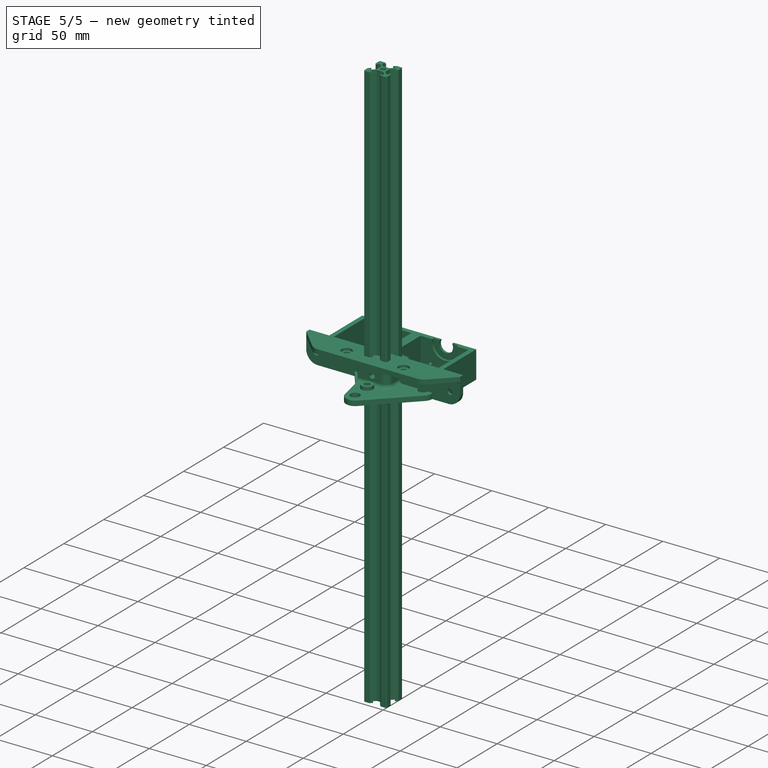
[diagram: stage 5 of 5 — iso view after this stage's code; geometry added in this stage tinted green]
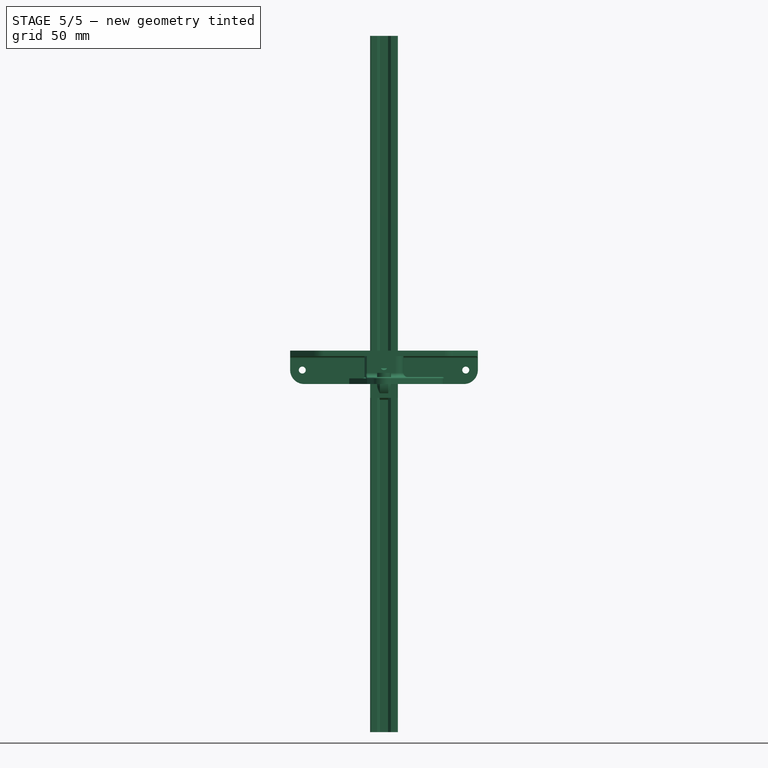
[diagram: stage 5 of 5 — front view after this stage's code; geometry added in this stage tinted green]
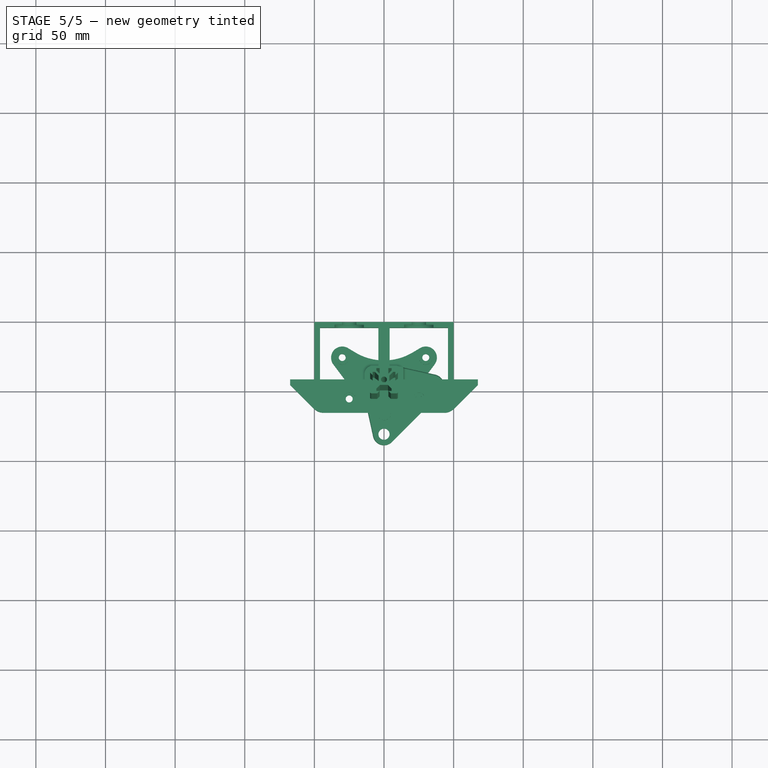
[diagram: stage 5 of 5 — top view after this stage's code; geometry added in this stage tinted green]
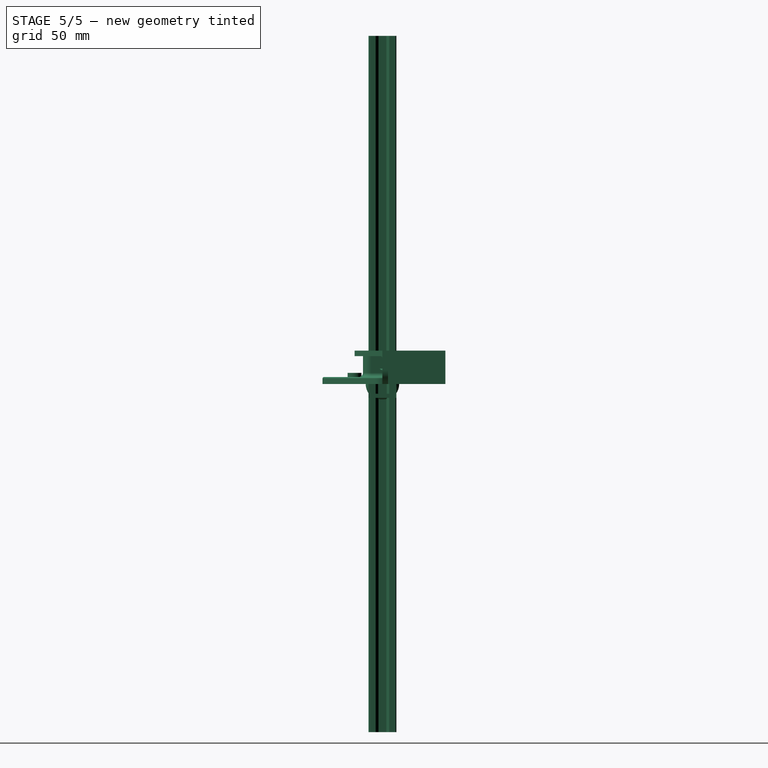
[diagram: stage 5 of 5 — right view after this stage's code; geometry added in this stage tinted green]
FEATURE [Spreadsheet::Sheet] Spreadsheet  label="dim"
  cells = A1=x_len; B1(x_len)==C1 + 40; C1=500; A2=y_len; B2(y_len)==C2 + 40; C2=250; A3=z_len; B3(z_len)==C3 + 40; C3=250
FEATURE [Sketcher::SketchObject] Sketch
  MapMode = 5
  Support = -> [XY_Plane]
  sketch-geometry (20):
    g0: LineSegment [constr] StartX=-10 StartY=4.9 StartZ=0 EndX=-10 EndY=10 EndZ=0
    g1: LineSegment [constr] StartX=-10 StartY=10 StartZ=0 EndX=-4.9 EndY=10 EndZ=0
    g2: LineSegment StartX=-4.9 StartY=10 StartZ=0 EndX=-3.1 EndY=8.2 EndZ=0
    g3: LineSegment StartX=-3.1 StartY=8.2 StartZ=0 EndX=-5.49934 EndY=8.2 EndZ=0
    g4: LineSegment StartX=-5.49934 StartY=8.2 StartZ=0 EndX=-5.49934 EndY=6.56 EndZ=0
    g5: LineSegment StartX=-5.49934 StartY=6.56 StartZ=0 EndX=-2.84 EndY=3.90066 EndZ=0
    g6: LineSegment StartX=-2.84 StartY=3.90066 StartZ=0 EndX=0 EndY=3.90066 EndZ=0
    g7: LineSegment [constr] StartX=0 StartY=0 StartZ=0 EndX=0 EndY=3.90066 EndZ=0
    g8: LineSegment [constr] StartX=0 StartY=0 StartZ=0 EndX=-3.90066 EndY=0 EndZ=0
    g9: LineSegment StartX=-3.90066 StartY=0 StartZ=0 EndX=-3.90066 EndY=2.84 EndZ=0
    g10: LineSegment StartX=-3.90066 StartY=2.84 StartZ=0 EndX=-6.56 EndY=5.49934 EndZ=0
    g11: LineSegment StartX=-6.56 StartY=5.49934 StartZ=0 EndX=-8.2 EndY=5.49934 EndZ=0
    g12: LineSegment StartX=-8.2 StartY=5.49934 StartZ=0 EndX=-8.2 EndY=3.1 EndZ=0
    g13: LineSegment StartX=-8.2 StartY=3.1 StartZ=0 EndX=-10 EndY=4.9 EndZ=0
    g14: LineSegment StartX=-3.90066 StartY=0 StartZ=0 EndX=-2.1 EndY=3e-16 EndZ=0
    g15: LineSegment StartX=0 StartY=3.90066 StartZ=0 EndX=0 EndY=2.1 EndZ=0
    g16: ArcOfCircle CenterX=0 CenterY=0 CenterZ=0 NormalX=0 NormalY=0 NormalZ=1 AngleXU=0 Radius=2.1 StartAngle=1.5708 EndAngle=3.14159
    g17: LineSegment StartX=-4.9 StartY=10 StartZ=0 EndX=-9 EndY=10 EndZ=0
    g18: LineSegment StartX=-10 StartY=4.9 StartZ=0 EndX=-10 EndY=9 EndZ=0
    g19: ArcOfCircle CenterX=-9 CenterY=9 CenterZ=0 NormalX=0 NormalY=0 NormalZ=1 AngleXU=0 Radius=1 StartAngle=1.5708 EndAngle=3.14159
  constraints (56):
    c: Vertical(g0)
    c: Coincident(g1,g0)
    c: Horizontal(g1)
    c: Coincident(g2,g1)
    c: Coincident(g3,g2)
    c: Horizontal(g3)
    c: Coincident(g4,g3)
    c: Vertical(g4)
    c: Coincident(g5,g4)
    c: Coincident(g6,g5)
    c: PointOnObject(g6,g-2)
    c: Horizontal(g6)
    c: Coincident(g7,g-1)
    c: Coincident(g7,g6)
    c: Coincident(g8,g7)
    c: PointOnObject(g8,g-1)
    c: Coincident(g9,g8)
    c: Vertical(g9)
    c: Coincident(g10,g9)
    c: Coincident(g11,g10)
    c: Horizontal(g11)
    c: Coincident(g12,g11)
    c: Vertical(g12)
    c: Coincident(g13,g12)
    c: Coincident(g13,g0)
    c: Equal(g9,g6)
    c: Equal(g8,g7)
    c: Equal(g5,g10)
    c: Equal(g4,g11)
    c: Equal(g3,g12)
    c: Equal(g13,g2)
    c: Equal(g1,g0)
    c: DistanceX(g0,g7) = 10
    c: DistanceY(g7,g0) = 10
    c: DistanceX(g2,g7) = 3.1
    c: Angle(g2,g3) = 0.785398
    c: DistanceY(g2,g1) = 1.8
    c: DistanceX(g6,g6) = 2.84
    c: Parallel(g5,g2)
    c: Distance(g4,g10) = 1.5
    c: DistanceX(g11,g10) = 1.64
    c: Coincident(g14,g9)
    c: PointOnObject(g14,g8)
    c: Coincident(g15,g6)
    c: PointOnObject(g15,g7)
    c: Coincident(g16,g-1)
    c: Coincident(g16,g14)
    c: Coincident(g16,g15)
    c: Radius(g16) = 2.1
    c: Coincident(g17,g2)
    c: Coincident(g18,g13)
    c: Tangent(g18,g19) = 1.5708
    c: Tangent(g17,g19) = -1.5708
    c: PointOnObject(g18,g0)
    c: PointOnObject(g17,g1)
    c: Radius(g19) = 1
FEATURE [PartDesign::Pad] Pad
  Length = 500
  Length2 = 100
  Midplane = true
  Profile = -> Sketch
  Refine = true
  Type = 0
  expr: Length = dim.x_len - 40
FEATURE [PartDesign::PolarPattern] PolarPattern
  Angle = 360
  Axis = -> Sketch [N_Axis]
  BaseFeature = -> Pad
  Occurrences = 4
  Originals = -> [Pad]
  Refine = true
FEATURE [PartDesign::Body] Body  label="V-Slot Rail"
  Group = -> [Sketch,Pad,PolarPattern]
  Origin = -> Origin
  Placement = pos=(0,135,135) rot=(0,1,0;1.5708rad)
  Tip = -> PolarPattern
  expr: Placement.Base.z = dim.z_len / 2 - 10
  expr: Placement.Base.y = dim.y_len / 2 - 10
FEATURE [Sketcher::SketchObject] Sketch001
  MapMode = 5
  Support = -> [XY_Plane003]
  sketch-geometry (20):
    g0: LineSegment [constr] StartX=-10 StartY=4.9 StartZ=0 EndX=-10 EndY=10 EndZ=0
    g1: LineSegment [constr] StartX=-10 StartY=10 StartZ=0 EndX=-4.9 EndY=10 EndZ=0
    g2: LineSegment StartX=-4.9 StartY=10 StartZ=0 EndX=-3.1 EndY=8.2 EndZ=0
    g3: LineSegment StartX=-3.1 StartY=8.2 StartZ=0 EndX=-5.49934 EndY=8.2 EndZ=0
    g4: LineSegment StartX=-5.49934 StartY=8.2 StartZ=0 EndX=-5.49934 EndY=6.56 EndZ=0
    g5: LineSegment StartX=-5.49934 StartY=6.56 StartZ=0 EndX=-2.84 EndY=3.90066 EndZ=0
    g6: LineSegment StartX=-2.84 StartY=3.90066 StartZ=0 EndX=0 EndY=3.90066 EndZ=0
    g7: LineSegment [constr] StartX=0 StartY=0 StartZ=0 EndX=0 EndY=3.90066 EndZ=0
    g8: LineSegment [constr] StartX=0 StartY=0 StartZ=0 EndX=-3.90066 EndY=0 EndZ=0
    g9: LineSegment StartX=-3.90066 StartY=0 StartZ=0 EndX=-3.90066 EndY=2.84 EndZ=0
    g10: LineSegment StartX=-3.90066 StartY=2.84 StartZ=0 EndX=-6.56 EndY=5.49934 EndZ=0
    g11: LineSegment StartX=-6.56 StartY=5.49934 StartZ=0 EndX=-8.2 EndY=5.49934 EndZ=0
    g12: LineSegment StartX=-8.2 StartY=5.49934 StartZ=0 EndX=-8.2 EndY=3.1 EndZ=0
    g13: LineSegment StartX=-8.2 StartY=3.1 StartZ=0 EndX=-10 EndY=4.9 EndZ=0
    g14: LineSegment StartX=-3.90066 StartY=0 StartZ=0 EndX=-2.1 EndY=3e-16 EndZ=0
    g15: LineSegment StartX=0 StartY=3.90066 StartZ=0 EndX=0 EndY=2.1 EndZ=0
    g16: ArcOfCircle CenterX=0 CenterY=0 CenterZ=0 NormalX=0 NormalY=0 NormalZ=1 AngleXU=0 Radius=2.1 StartAngle=1.5708 EndAngle=3.14159
    g17: LineSegment StartX=-4.9 StartY=10 StartZ=0 EndX=-9 EndY=10 EndZ=0
    g18: LineSegment StartX=-10 StartY=4.9 StartZ=0 EndX=-10 EndY=9 EndZ=0
    g19: ArcOfCircle CenterX=-9 CenterY=9 CenterZ=0 NormalX=0 NormalY=0 NormalZ=1 AngleXU=0 Radius=1 StartAngle=1.5708 EndAngle=3.14159
  constraints (56):
    c: Vertical(g0)
    c: Coincident(g1,g0)
    c: Horizontal(g1)
    c: Coincident(g2,g1)
    c: Coincident(g3,g2)
    c: Horizontal(g3)
    c: Coincident(g4,g3)
    c: Vertical(g4)
    c: Coincident(g5,g4)
    c: Coincident(g6,g5)
    c: PointOnObject(g6,g-2)
    c: Horizontal(g6)
    c: Coincident(g7,g-1)
    c: Coincident(g7,g6)
    c: Coincident(g8,g7)
    c: PointOnObject(g8,g-1)
    c: Coincident(g9,g8)
    c: Vertical(g9)
    c: Coincident(g10,g9)
    c: Coincident(g11,g10)
    c: Horizontal(g11)
    c: Coincident(g12,g11)
    c: Vertical(g12)
    c: Coincident(g13,g12)
    c: Coincident(g13,g0)
    c: Equal(g9,g6)
    c: Equal(g8,g7)
    c: Equal(g5,g10)
    c: Equal(g4,g11)
    c: Equal(g3,g12)
    c: Equal(g13,g2)
    c: Equal(g1,g0)
    c: DistanceX(g0,g7) = 10
    c: DistanceY(g7,g0) = 10
    c: DistanceX(g2,g7) = 3.1
    c: Angle(g2,g3) = 0.785398
    c: DistanceY(g2,g1) = 1.8
    c: DistanceX(g6,g6) = 2.84
    c: Parallel(g5,g2)
    c: Distance(g4,g10) = 1.5
    c: DistanceX(g11,g10) = 1.64
    c: Coincident(g14,g9)
    c: PointOnObject(g14,g8)
    c: Coincident(g15,g6)
    c: PointOnObject(g15,g7)
    c: Coincident(g16,g-1)
    c: Coincident(g16,g14)
    c: Coincident(g16,g15)
    c: Radius(g16) = 2.1
    c: Coincident(g17,g2)
    c: Coincident(g18,g13)
    c: Tangent(g18,g19) = 1.5708
    c: Tangent(g17,g19) = -1.5708
    c: PointOnObject(g18,g0)
    c: PointOnObject(g17,g1)
    c: Radius(g19) = 1
FEATURE [PartDesign::Pad] Pad001
  Length = 500
  Length2 = 100
  Midplane = true
  Profile = -> Sketch001
  Refine = true
  Type = 0
  expr: Length = dim.x_len - 40
FEATURE [PartDesign::PolarPattern] PolarPattern001
  Angle = 360
  Axis = -> Sketch001 [N_Axis]
  BaseFeature = -> Pad001
  Occurrences = 4
  Originals = -> [Pad001]
  Refine = true
FEATURE [PartDesign::Body] Body001  label="V-Slot Rail001"
  Group = -> [Sketch001,Pad001,PolarPattern001]
  Origin = -> Origin003
  Placement = pos=(0,-135,135) rot=(0,1,0;1.5708rad)
  Tip = -> PolarPattern001
  expr: Placement.Base.z = dim.z_len / 2 - 10
  expr: Placement.Base.y = -dim.y_len / 2 + 10
FEATURE [Sketcher::SketchObject] Sketch002
  MapMode = 5
  Support = -> [XY_Plane004]
  sketch-geometry (20):
    g0: LineSegment [constr] StartX=-10 StartY=4.9 StartZ=0 EndX=-10 EndY=10 EndZ=0
    g1: LineSegment [constr] StartX=-10 StartY=10 StartZ=0 EndX=-4.9 EndY=10 EndZ=0
    g2: LineSegment StartX=-4.9 StartY=10 StartZ=0 EndX=-3.1 EndY=8.2 EndZ=0
    g3: LineSegment StartX=-3.1 StartY=8.2 StartZ=0 EndX=-5.49934 EndY=8.2 EndZ=0
    g4: LineSegment StartX=-5.49934 StartY=8.2 StartZ=0 EndX=-5.49934 EndY=6.56 EndZ=0
    g5: LineSegment StartX=-5.49934 StartY=6.56 StartZ=0 EndX=-2.84 EndY=3.90066 EndZ=0
    g6: LineSegment StartX=-2.84 StartY=3.90066 StartZ=0 EndX=0 EndY=3.90066 EndZ=0
    g7: LineSegment [constr] StartX=0 StartY=0 StartZ=0 EndX=0 EndY=3.90066 EndZ=0
    g8: LineSegment [constr] StartX=0 StartY=0 StartZ=0 EndX=-3.90066 EndY=0 EndZ=0
    g9: LineSegment StartX=-3.90066 StartY=0 StartZ=0 EndX=-3.90066 EndY=2.84 EndZ=0
    g10: LineSegment StartX=-3.90066 StartY=2.84 StartZ=0 EndX=-6.56 EndY=5.49934 EndZ=0
    g11: LineSegment StartX=-6.56 StartY=5.49934 StartZ=0 EndX=-8.2 EndY=5.49934 EndZ=0
    g12: LineSegment StartX=-8.2 StartY=5.49934 StartZ=0 EndX=-8.2 EndY=3.1 EndZ=0
    g13: LineSegment StartX=-8.2 StartY=3.1 StartZ=0 EndX=-10 EndY=4.9 EndZ=0
    g14: LineSegment StartX=-3.90066 StartY=0 StartZ=0 EndX=-2.1 EndY=3e-16 EndZ=0
    g15: LineSegment StartX=0 StartY=3.90066 StartZ=0 EndX=0 EndY=2.1 EndZ=0
    g16: ArcOfCircle CenterX=0 CenterY=0 CenterZ=0 NormalX=0 NormalY=0 NormalZ=1 AngleXU=0 Radius=2.1 StartAngle=1.5708 EndAngle=3.14159
    g17: LineSegment StartX=-4.9 StartY=10 StartZ=0 EndX=-9 EndY=10 EndZ=0
    g18: LineSegment StartX=-10 StartY=4.9 StartZ=0 EndX=-10 EndY=9 EndZ=0
    g19: ArcOfCircle CenterX=-9 CenterY=9 CenterZ=0 NormalX=0 NormalY=0 NormalZ=1 AngleXU=0 Radius=1 StartAngle=1.5708 EndAngle=3.14159
  constraints (56):
    c: Vertical(g0)
    c: Coincident(g1,g0)
    c: Horizontal(g1)
    c: Coincident(g2,g1)
    c: Coincident(g3,g2)
    c: Horizontal(g3)
    c: Coincident(g4,g3)
    c: Vertical(g4)
    c: Coincident(g5,g4)
    c: Coincident(g6,g5)
    c: PointOnObject(g6,g-2)
    c: Horizontal(g6)
    c: Coincident(g7,g-1)
    c: Coincident(g7,g6)
    c: Coincident(g8,g7)
    c: PointOnObject(g8,g-1)
    c: Coincident(g9,g8)
    c: Vertical(g9)
    c: Coincident(g10,g9)
    c: Coincident(g11,g10)
    c: Horizontal(g11)
    c: Coincident(g12,g11)
    c: Vertical(g12)
    c: Coincident(g13,g12)
    c: Coincident(g13,g0)
    c: Equal(g9,g6)
    c: Equal(g8,g7)
    c: Equal(g5,g10)
    c: Equal(g4,g11)
    c: Equal(g3,g12)
    c: Equal(g13,g2)
    c: Equal(g1,g0)
    c: DistanceX(g0,g7) = 10
    c: DistanceY(g7,g0) = 10
    c: DistanceX(g2,g7) = 3.1
    c: Angle(g2,g3) = 0.785398
    c: DistanceY(g2,g1) = 1.8
    c: DistanceX(g6,g6) = 2.84
    c: Parallel(g5,g2)
    c: Distance(g4,g10) = 1.5
    c: DistanceX(g11,g10) = 1.64
    c: Coincident(g14,g9)
    c: PointOnObject(g14,g8)
    c: Coincident(g15,g6)
    c: PointOnObject(g15,g7)
    c: Coincident(g16,g-1)
    c: Coincident(g16,g14)
    c: Coincident(g16,g15)
    c: Radius(g16) = 2.1
    c: Coincident(g17,g2)
    c: Coincident(g18,g13)
    c: Tangent(g18,g19) = 1.5708
    c: Tangent(g17,g19) = -1.5708
    c: PointOnObject(g18,g0)
    c: PointOnObject(g17,g1)
    c: Radius(g19) = 1
FEATURE [PartDesign::Pad] Pad002
  Length = 500
  Length2 = 100
  Midplane = true
  Profile = -> Sketch002
  Refine = true
  Type = 0
  expr: Length = dim.x_len - 40
FEATURE [PartDesign::PolarPattern] PolarPattern002
  Angle = 360
  Axis = -> Sketch002 [N_Axis]
  BaseFeature = -> Pad002
  Occurrences = 4
  Originals = -> [Pad002]
  Refine = true
FEATURE [PartDesign::Body] Body002  label="V-Slot Rail002"
  Group = -> [Sketch002,Pad002,PolarPattern002]
  Origin = -> Origin004
  Placement = pos=(0,135,-135) rot=(0,1,0;1.5708rad)
  Tip = -> PolarPattern002
  expr: Placement.Base.z = -dim.z_len / 2 + 10
  expr: Placement.Base.y = dim.y_len / 2 - 10
FEATURE [Sketcher::SketchObject] Sketch003
  MapMode = 5
  Support = -> [XY_Plane005]
  sketch-geometry (20):
    g0: LineSegment [constr] StartX=-10 StartY=4.9 StartZ=0 EndX=-10 EndY=10 EndZ=0
    g1: LineSegment [constr] StartX=-10 StartY=10 StartZ=0 EndX=-4.9 EndY=10 EndZ=0
    g2: LineSegment StartX=-4.9 StartY=10 StartZ=0 EndX=-3.1 EndY=8.2 EndZ=0
    g3: LineSegment StartX=-3.1 StartY=8.2 StartZ=0 EndX=-5.49934 EndY=8.2 EndZ=0
    g4: LineSegment StartX=-5.49934 StartY=8.2 StartZ=0 EndX=-5.49934 EndY=6.56 EndZ=0
    g5: LineSegment StartX=-5.49934 StartY=6.56 StartZ=0 EndX=-2.84 EndY=3.90066 EndZ=0
    g6: LineSegment StartX=-2.84 StartY=3.90066 StartZ=0 EndX=0 EndY=3.90066 EndZ=0
    g7: LineSegment [constr] StartX=0 StartY=0 StartZ=0 EndX=0 EndY=3.90066 EndZ=0
    g8: LineSegment [constr] StartX=0 StartY=0 StartZ=0 EndX=-3.90066 EndY=0 EndZ=0
    g9: LineSegment StartX=-3.90066 StartY=0 StartZ=0 EndX=-3.90066 EndY=2.84 EndZ=0
    g10: LineSegment StartX=-3.90066 StartY=2.84 StartZ=0 EndX=-6.56 EndY=5.49934 EndZ=0
    g11: LineSegment StartX=-6.56 StartY=5.49934 StartZ=0 EndX=-8.2 EndY=5.49934 EndZ=0
    g12: LineSegment StartX=-8.2 StartY=5.49934 StartZ=0 EndX=-8.2 EndY=3.1 EndZ=0
    g13: LineSegment StartX=-8.2 StartY=3.1 StartZ=0 EndX=-10 EndY=4.9 EndZ=0
    g14: LineSegment StartX=-3.90066 StartY=0 StartZ=0 EndX=-2.1 EndY=3e-16 EndZ=0
    g15: LineSegment StartX=0 StartY=3.90066 StartZ=0 EndX=0 EndY=2.1 EndZ=0
    g16: ArcOfCircle CenterX=0 CenterY=0 CenterZ=0 NormalX=0 NormalY=0 NormalZ=1 AngleXU=0 Radius=2.1 StartAngle=1.5708 EndAngle=3.14159
    g17: LineSegment StartX=-4.9 StartY=10 StartZ=0 EndX=-9 EndY=10 EndZ=0
    g18: LineSegment StartX=-10 StartY=4.9 StartZ=0 EndX=-10 EndY=9 EndZ=0
    g19: ArcOfCircle CenterX=-9 CenterY=9 CenterZ=0 NormalX=0 NormalY=0 NormalZ=1 AngleXU=0 Radius=1 StartAngle=1.5708 EndAngle=3.14159
  constraints (56):
    c: Vertical(g0)
    c: Coincident(g1,g0)
    c: Horizontal(g1)
    c: Coincident(g2,g1)
    c: Coincident(g3,g2)
    c: Horizontal(g3)
    c: Coincident(g4,g3)
    c: Vertical(g4)
    c: Coincident(g5,g4)
    c: Coincident(g6,g5)
    c: PointOnObject(g6,g-2)
    c: Horizontal(g6)
    c: Coincident(g7,g-1)
    c: Coincident(g7,g6)
    c: Coincident(g8,g7)
    c: PointOnObject(g8,g-1)
    c: Coincident(g9,g8)
    c: Vertical(g9)
    c: Coincident(g10,g9)
    c: Coincident(g11,g10)
    c: Horizontal(g11)
    c: Coincident(g12,g11)
    c: Vertical(g12)
    c: Coincident(g13,g12)
    c: Coincident(g13,g0)
    c: Equal(g9,g6)
    c: Equal(g8,g7)
    c: Equal(g5,g10)
    c: Equal(g4,g11)
    c: Equal(g3,g12)
    c: Equal(g13,g2)
    c: Equal(g1,g0)
    c: DistanceX(g0,g7) = 10
    c: DistanceY(g7,g0) = 10
    c: DistanceX(g2,g7) = 3.1
    c: Angle(g2,g3) = 0.785398
    c: DistanceY(g2,g1) = 1.8
    c: DistanceX(g6,g6) = 2.84
    c: Parallel(g5,g2)
    c: Distance(g4,g10) = 1.5
    c: DistanceX(g11,g10) = 1.64
    c: Coincident(g14,g9)
    c: PointOnObject(g14,g8)
    c: Coincident(g15,g6)
    c: PointOnObject(g15,g7)
    c: Coincident(g16,g-1)
    c: Coincident(g16,g14)
    c: Coincident(g16,g15)
    c: Radius(g16) = 2.1
    c: Coincident(g17,g2)
    c: Coincident(g18,g13)
    c: Tangent(g18,g19) = 1.5708
    c: Tangent(g17,g19) = -1.5708
    c: PointOnObject(g18,g0)
    c: PointOnObject(g17,g1)
    c: Radius(g19) = 1
FEATURE [PartDesign::Pad] Pad003
  Length = 500
  Length2 = 100
  Midplane = true
  Profile = -> Sketch003
  Refine = true
  Type = 0
  expr: Length = dim.x_len - 40
FEATURE [PartDesign::PolarPattern] PolarPattern003
  Angle = 360
  Axis = -> Sketch003 [N_Axis]
  BaseFeature = -> Pad003
  Occurrences = 4
  Originals = -> [Pad003]
  Refine = true
FEATURE [PartDesign::Body] Body003  label="V-Slot Rail003"
  Group = -> [Sketch003,Pad003,PolarPattern003]
  Origin = -> Origin005
  Placement = pos=(0,-135,-135) rot=(0,1,0;1.5708rad)
  Tip = -> PolarPattern003
  expr: Placement.Base.z = -dim.z_len / 2 + 10
  expr: Placement.Base.y = -dim.y_len / 2 + 10
FEATURE [Sketcher::SketchObject] Sketch004
  MapMode = 5
  Support = -> [XY_Plane007]
  sketch-geometry (20):
    g0: LineSegment [constr] StartX=-10 StartY=4.9 StartZ=0 EndX=-10 EndY=10 EndZ=0
    g1: LineSegment [constr] StartX=-10 StartY=10 StartZ=0 EndX=-4.9 EndY=10 EndZ=0
    g2: LineSegment StartX=-4.9 StartY=10 StartZ=0 EndX=-3.1 EndY=8.2 EndZ=0
    g3: LineSegment StartX=-3.1 StartY=8.2 StartZ=0 EndX=-5.49934 EndY=8.2 EndZ=0
    g4: LineSegment StartX=-5.49934 StartY=8.2 StartZ=0 EndX=-5.49934 EndY=6.56 EndZ=0
    g5: LineSegment StartX=-5.49934 StartY=6.56 StartZ=0 EndX=-2.84 EndY=3.90066 EndZ=0
    g6: LineSegment StartX=-2.84 StartY=3.90066 StartZ=0 EndX=0 EndY=3.90066 EndZ=0
    g7: LineSegment [constr] StartX=0 StartY=0 StartZ=0 EndX=0 EndY=3.90066 EndZ=0
    g8: LineSegment [constr] StartX=0 StartY=0 StartZ=0 EndX=-3.90066 EndY=0 EndZ=0
    g9: LineSegment StartX=-3.90066 StartY=0 StartZ=0 EndX=-3.90066 EndY=2.84 EndZ=0
    g10: LineSegment StartX=-3.90066 StartY=2.84 StartZ=0 EndX=-6.56 EndY=5.49934 EndZ=0
    g11: LineSegment StartX=-6.56 StartY=5.49934 StartZ=0 EndX=-8.2 EndY=5.49934 EndZ=0
    g12: LineSegment StartX=-8.2 StartY=5.49934 StartZ=0 EndX=-8.2 EndY=3.1 EndZ=0
    g13: LineSegment StartX=-8.2 StartY=3.1 StartZ=0 EndX=-10 EndY=4.9 EndZ=0
    g14: LineSegment StartX=-3.90066 StartY=0 StartZ=0 EndX=-2.1 EndY=3e-16 EndZ=0
    g15: LineSegment StartX=0 StartY=3.90066 StartZ=0 EndX=0 EndY=2.1 EndZ=0
    g16: ArcOfCircle CenterX=0 CenterY=0 CenterZ=0 NormalX=0 NormalY=0 NormalZ=1 AngleXU=0 Radius=2.1 StartAngle=1.5708 EndAngle=3.14159
    g17: LineSegment StartX=-4.9 StartY=10 StartZ=0 EndX=-9 EndY=10 EndZ=0
    g18: LineSegment StartX=-10 StartY=4.9 StartZ=0 EndX=-10 EndY=9 EndZ=0
    g19: ArcOfCircle CenterX=-9 CenterY=9 CenterZ=0 NormalX=0 NormalY=0 NormalZ=1 AngleXU=0 Radius=1 StartAngle=1.5708 EndAngle=3.14159
  constraints (56):
    c: Vertical(g0)
    c: Coincident(g1,g0)
    c: Horizontal(g1)
    c: Coincident(g2,g1)
    c: Coincident(g3,g2)
    c: Horizontal(g3)
    c: Coincident(g4,g3)
    c: Vertical(g4)
    c: Coincident(g5,g4)
    c: Coincident(g6,g5)
    c: PointOnObject(g6,g-2)
    c: Horizontal(g6)
    c: Coincident(g7,g-1)
    c: Coincident(g7,g6)
    c: Coincident(g8,g7)
    c: PointOnObject(g8,g-1)
    c: Coincident(g9,g8)
    c: Vertical(g9)
    c: Coincident(g10,g9)
    c: Coincident(g11,g10)
    c: Horizontal(g11)
    c: Coincident(g12,g11)
    c: Vertical(g12)
    c: Coincident(g13,g12)
    c: Coincident(g13,g0)
    c: Equal(g9,g6)
    c: Equal(g8,g7)
    c: Equal(g5,g10)
    c: Equal(g4,g11)
    c: Equal(g3,g12)
    c: Equal(g13,g2)
    c: Equal(g1,g0)
    c: DistanceX(g0,g7) = 10
    c: DistanceY(g7,g0) = 10
    c: DistanceX(g2,g7) = 3.1
    c: Angle(g2,g3) = 0.785398
    c: DistanceY(g2,g1) = 1.8
    c: DistanceX(g6,g6) = 2.84
    c: Parallel(g5,g2)
    c: Distance(g4,g10) = 1.5
    c: DistanceX(g11,g10) = 1.64
    c: Coincident(g14,g9)
    c: PointOnObject(g14,g8)
    c: Coincident(g15,g6)
    c: PointOnObject(g15,g7)
    c: Coincident(g16,g-1)
    c: Coincident(g16,g14)
    c: Coincident(g16,g15)
    c: Radius(g16) = 2.1
    c: Coincident(g17,g2)
    c: Coincident(g18,g13)
    c: Tangent(g18,g19) = 1.5708
    c: Tangent(g17,g19) = -1.5708
    c: PointOnObject(g18,g0)
    c: PointOnObject(g17,g1)
    c: Radius(g19) = 1
FEATURE [PartDesign::Pad] Pad004
  Length = 250
  Length2 = 100
  Midplane = true
  Profile = -> Sketch004
  Refine = true
  Type = 0
  expr: Length = dim.y_len - 40
FEATURE [PartDesign::PolarPattern] PolarPattern004
  Angle = 360
  Axis = -> Sketch004 [N_Axis]
  BaseFeature = -> Pad004
  Occurrences = 4
  Originals = -> [Pad004]
  Refine = true
FEATURE [PartDesign::Body] Body004  label="V-Slot Rail004"
  Group = -> [Sketch004,Pad004,PolarPattern004]
  Origin = -> Origin007
  Placement = pos=(260,0,135) rot=(1,0,0;1.5708rad)
  Tip = -> PolarPattern004
  expr: Placement.Base.x = dim.x_len / 2 - 10
  expr: Placement.Base.z = dim.z_len / 2 - 10
FEATURE [Sketcher::SketchObject] Sketch005
  MapMode = 5
  Support = -> [XY_Plane008]
  sketch-geometry (20):
    g0: LineSegment [constr] StartX=-10 StartY=4.9 StartZ=0 EndX=-10 EndY=10 EndZ=0
    g1: LineSegment [constr] StartX=-10 StartY=10 StartZ=0 EndX=-4.9 EndY=10 EndZ=0
    g2: LineSegment StartX=-4.9 StartY=10 StartZ=0 EndX=-3.1 EndY=8.2 EndZ=0
    g3: LineSegment StartX=-3.1 StartY=8.2 StartZ=0 EndX=-5.49934 EndY=8.2 EndZ=0
    g4: LineSegment StartX=-5.49934 StartY=8.2 StartZ=0 EndX=-5.49934 EndY=6.56 EndZ=0
    g5: LineSegment StartX=-5.49934 StartY=6.56 StartZ=0 EndX=-2.84 EndY=3.90066 EndZ=0
    g6: LineSegment StartX=-2.84 StartY=3.90066 StartZ=0 EndX=0 EndY=3.90066 EndZ=0
    g7: LineSegment [constr] StartX=0 StartY=0 StartZ=0 EndX=0 EndY=3.90066 EndZ=0
    g8: LineSegment [constr] StartX=0 StartY=0 StartZ=0 EndX=-3.90066 EndY=0 EndZ=0
    g9: LineSegment StartX=-3.90066 StartY=0 StartZ=0 EndX=-3.90066 EndY=2.84 EndZ=0
    g10: LineSegment StartX=-3.90066 StartY=2.84 StartZ=0 EndX=-6.56 EndY=5.49934 EndZ=0
    g11: LineSegment StartX=-6.56 StartY=5.49934 StartZ=0 EndX=-8.2 EndY=5.49934 EndZ=0
    g12: LineSegment StartX=-8.2 StartY=5.49934 StartZ=0 EndX=-8.2 EndY=3.1 EndZ=0
    g13: LineSegment StartX=-8.2 StartY=3.1 StartZ=0 EndX=-10 EndY=4.9 EndZ=0
    g14: LineSegment StartX=-3.90066 StartY=0 StartZ=0 EndX=-2.1 EndY=3e-16 EndZ=0
    g15: LineSegment StartX=0 StartY=3.90066 StartZ=0 EndX=0 EndY=2.1 EndZ=0
    g16: ArcOfCircle CenterX=0 CenterY=0 CenterZ=0 NormalX=0 NormalY=0 NormalZ=1 AngleXU=0 Radius=2.1 StartAngle=1.5708 EndAngle=3.14159
    g17: LineSegment StartX=-4.9 StartY=10 StartZ=0 EndX=-9 EndY=10 EndZ=0
    g18: LineSegment StartX=-10 StartY=4.9 StartZ=0 EndX=-10 EndY=9 EndZ=0
    g19: ArcOfCircle CenterX=-9 CenterY=9 CenterZ=0 NormalX=0 NormalY=0 NormalZ=1 AngleXU=0 Radius=1 StartAngle=1.5708 EndAngle=3.14159
  constraints (56):
    c: Vertical(g0)
    c: Coincident(g1,g0)
    c: Horizontal(g1)
    c: Coincident(g2,g1)
    c: Coincident(g3,g2)
    c: Horizontal(g3)
    c: Coincident(g4,g3)
    c: Vertical(g4)
    c: Coincident(g5,g4)
    c: Coincident(g6,g5)
    c: PointOnObject(g6,g-2)
    c: Horizontal(g6)
    c: Coincident(g7,g-1)
    c: Coincident(g7,g6)
    c: Coincident(g8,g7)
    c: PointOnObject(g8,g-1)
    c: Coincident(g9,g8)
    c: Vertical(g9)
    c: Coincident(g10,g9)
    c: Coincident(g11,g10)
    c: Horizontal(g11)
    c: Coincident(g12,g11)
    c: Vertical(g12)
    c: Coincident(g13,g12)
    c: Coincident(g13,g0)
    c: Equal(g9,g6)
    c: Equal(g8,g7)
    c: Equal(g5,g10)
    c: Equal(g4,g11)
    c: Equal(g3,g12)
    c: Equal(g13,g2)
    c: Equal(g1,g0)
    c: DistanceX(g0,g7) = 10
    c: DistanceY(g7,g0) = 10
    c: DistanceX(g2,g7) = 3.1
    c: Angle(g2,g3) = 0.785398
    c: DistanceY(g2,g1) = 1.8
    c: DistanceX(g6,g6) = 2.84
    c: Parallel(g5,g2)
    c: Distance(g4,g10) = 1.5
    c: DistanceX(g11,g10) = 1.64
    c: Coincident(g14,g9)
    c: PointOnObject(g14,g8)
    c: Coincident(g15,g6)
    c: PointOnObject(g15,g7)
    c: Coincident(g16,g-1)
    c: Coincident(g16,g14)
    c: Coincident(g16,g15)
    c: Radius(g16) = 2.1
    c: Coincident(g17,g2)
    c: Coincident(g18,g13)
    c: Tangent(g18,g19) = 1.5708
    c: Tangent(g17,g19) = -1.5708
    c: PointOnObject(g18,g0)
    c: PointOnObject(g17,g1)
    c: Radius(g19) = 1
FEATURE [PartDesign::Pad] Pad005
  Length = 250
  Length2 = 100
  Midplane = true
  Profile = -> Sketch005
  Refine = true
  Type = 0
  expr: Length = dim.y_len - 40
FEATURE [PartDesign::PolarPattern] PolarPattern005
  Angle = 360
  Axis = -> Sketch005 [N_Axis]
  BaseFeature = -> Pad005
  Occurrences = 4
  Originals = -> [Pad005]
  Refine = true
FEATURE [PartDesign::Body] Body005  label="V-Slot Rail005"
  Group = -> [Sketch005,Pad005,PolarPattern005]
  Origin = -> Origin008
  Placement = pos=(-260,0,135) rot=(1,0,0;1.5708rad)
  Tip = -> PolarPattern005
  expr: Placement.Base.z = dim.z_len / 2 - 10
  expr: Placement.Base.x = -dim.x_len / 2 + 10
FEATURE [Sketcher::SketchObject] Sketch006
  MapMode = 5
  Support = -> [XY_Plane009]
  sketch-geometry (20):
    g0: LineSegment [constr] StartX=-10 StartY=4.9 StartZ=0 EndX=-10 EndY=10 EndZ=0
    g1: LineSegment [constr] StartX=-10 StartY=10 StartZ=0 EndX=-4.9 EndY=10 EndZ=0
    g2: LineSegment StartX=-4.9 StartY=10 StartZ=0 EndX=-3.1 EndY=8.2 EndZ=0
    g3: LineSegment StartX=-3.1 StartY=8.2 StartZ=0 EndX=-5.49934 EndY=8.2 EndZ=0
    g4: LineSegment StartX=-5.49934 StartY=8.2 StartZ=0 EndX=-5.49934 EndY=6.56 EndZ=0
    g5: LineSegment StartX=-5.49934 StartY=6.56 StartZ=0 EndX=-2.84 EndY=3.90066 EndZ=0
    g6: LineSegment StartX=-2.84 StartY=3.90066 StartZ=0 EndX=0 EndY=3.90066 EndZ=0
    g7: LineSegment [constr] StartX=0 StartY=0 StartZ=0 EndX=0 EndY=3.90066 EndZ=0
    g8: LineSegment [constr] StartX=0 StartY=0 StartZ=0 EndX=-3.90066 EndY=0 EndZ=0
    g9: LineSegment StartX=-3.90066 StartY=0 StartZ=0 EndX=-3.90066 EndY=2.84 EndZ=0
    g10: LineSegment StartX=-3.90066 StartY=2.84 StartZ=0 EndX=-6.56 EndY=5.49934 EndZ=0
    g11: LineSegment StartX=-6.56 StartY=5.49934 StartZ=0 EndX=-8.2 EndY=5.49934 EndZ=0
    g12: LineSegment StartX=-8.2 StartY=5.49934 StartZ=0 EndX=-8.2 EndY=3.1 EndZ=0
    g13: LineSegment StartX=-8.2 StartY=3.1 StartZ=0 EndX=-10 EndY=4.9 EndZ=0
    g14: LineSegment StartX=-3.90066 StartY=0 StartZ=0 EndX=-2.1 EndY=3e-16 EndZ=0
    g15: LineSegment StartX=0 StartY=3.90066 StartZ=0 EndX=0 EndY=2.1 EndZ=0
    g16: ArcOfCircle CenterX=0 CenterY=0 CenterZ=0 NormalX=0 NormalY=0 NormalZ=1 AngleXU=0 Radius=2.1 StartAngle=1.5708 EndAngle=3.14159
    g17: LineSegment StartX=-4.9 StartY=10 StartZ=0 EndX=-9 EndY=10 EndZ=0
    g18: LineSegment StartX=-10 StartY=4.9 StartZ=0 EndX=-10 EndY=9 EndZ=0
    g19: ArcOfCircle CenterX=-9 CenterY=9 CenterZ=0 NormalX=0 NormalY=0 NormalZ=1 AngleXU=0 Radius=1 StartAngle=1.5708 EndAngle=3.14159
  constraints (56):
    c: Vertical(g0)
    c: Coincident(g1,g0)
    c: Horizontal(g1)
    c: Coincident(g2,g1)
    c: Coincident(g3,g2)
    c: Horizontal(g3)
    c: Coincident(g4,g3)
    c: Vertical(g4)
    c: Coincident(g5,g4)
    c: Coincident(g6,g5)
    c: PointOnObject(g6,g-2)
    c: Horizontal(g6)
    c: Coincident(g7,g-1)
    c: Coincident(g7,g6)
    c: Coincident(g8,g7)
    c: PointOnObject(g8,g-1)
    c: Coincident(g9,g8)
    c: Vertical(g9)
    c: Coincident(g10,g9)
    c: Coincident(g11,g10)
    c: Horizontal(g11)
    c: Coincident(g12,g11)
    c: Vertical(g12)
    c: Coincident(g13,g12)
    c: Coincident(g13,g0)
    c: Equal(g9,g6)
    c: Equal(g8,g7)
    c: Equal(g5,g10)
    c: Equal(g4,g11)
    c: Equal(g3,g12)
    c: Equal(g13,g2)
    c: Equal(g1,g0)
    c: DistanceX(g0,g7) = 10
    c: DistanceY(g7,g0) = 10
    c: DistanceX(g2,g7) = 3.1
    c: Angle(g2,g3) = 0.785398
    c: DistanceY(g2,g1) = 1.8
    c: DistanceX(g6,g6) = 2.84
    c: Parallel(g5,g2)
    c: Distance(g4,g10) = 1.5
    c: DistanceX(g11,g10) = 1.64
    c: Coincident(g14,g9)
    c: PointOnObject(g14,g8)
    c: Coincident(g15,g6)
    c: PointOnObject(g15,g7)
    c: Coincident(g16,g-1)
    c: Coincident(g16,g14)
    c: Coincident(g16,g15)
    c: Radius(g16) = 2.1
    c: Coincident(g17,g2)
    c: Coincident(g18,g13)
    c: Tangent(g18,g19) = 1.5708
    c: Tangent(g17,g19) = -1.5708
    c: PointOnObject(g18,g0)
    c: PointOnObject(g17,g1)
    c: Radius(g19) = 1
FEATURE [PartDesign::Pad] Pad006
  Length = 250
  Length2 = 100
  Midplane = true
  Profile = -> Sketch006
  Refine = true
  Type = 0
  expr: Length = dim.y_len - 40
FEATURE [PartDesign::PolarPattern] PolarPattern006
  Angle = 360
  Axis = -> Sketch006 [N_Axis]
  BaseFeature = -> Pad006
  Occurrences = 4
  Originals = -> [Pad006]
  Refine = true
FEATURE [PartDesign::Body] Body006  label="V-Slot Rail006"
  Group = -> [Sketch006,Pad006,PolarPattern006]
  Origin = -> Origin009
  Placement = pos=(260,0,-135) rot=(1,0,0;1.5708rad)
  Tip = -> PolarPattern006
  expr: Placement.Base.z = -dim.z_len / 2 + 10
  expr: Placement.Base.x = dim.x_len / 2 - 10
FEATURE [Sketcher::SketchObject] Sketch007
  MapMode = 5
  Support = -> [XY_Plane010]
  sketch-geometry (20):
    g0: LineSegment [constr] StartX=-10 StartY=4.9 StartZ=0 EndX=-10 EndY=10 EndZ=0
    g1: LineSegment [constr] StartX=-10 StartY=10 StartZ=0 EndX=-4.9 EndY=10 EndZ=0
    g2: LineSegment StartX=-4.9 StartY=10 StartZ=0 EndX=-3.1 EndY=8.2 EndZ=0
    g3: LineSegment StartX=-3.1 StartY=8.2 StartZ=0 EndX=-5.49934 EndY=8.2 EndZ=0
    g4: LineSegment StartX=-5.49934 StartY=8.2 StartZ=0 EndX=-5.49934 EndY=6.56 EndZ=0
    g5: LineSegment StartX=-5.49934 StartY=6.56 StartZ=0 EndX=-2.84 EndY=3.90066 EndZ=0
    g6: LineSegment StartX=-2.84 StartY=3.90066 StartZ=0 EndX=0 EndY=3.90066 EndZ=0
    g7: LineSegment [constr] StartX=0 StartY=0 StartZ=0 EndX=0 EndY=3.90066 EndZ=0
    g8: LineSegment [constr] StartX=0 StartY=0 StartZ=0 EndX=-3.90066 EndY=0 EndZ=0
    g9: LineSegment StartX=-3.90066 StartY=0 StartZ=0 EndX=-3.90066 EndY=2.84 EndZ=0
    g10: LineSegment StartX=-3.90066 StartY=2.84 StartZ=0 EndX=-6.56 EndY=5.49934 EndZ=0
    g11: LineSegment StartX=-6.56 StartY=5.49934 StartZ=0 EndX=-8.2 EndY=5.49934 EndZ=0
    g12: LineSegment StartX=-8.2 StartY=5.49934 StartZ=0 EndX=-8.2 EndY=3.1 EndZ=0
    g13: LineSegment StartX=-8.2 StartY=3.1 StartZ=0 EndX=-10 EndY=4.9 EndZ=0
    g14: LineSegment StartX=-3.90066 StartY=0 StartZ=0 EndX=-2.1 EndY=3e-16 EndZ=0
    g15: LineSegment StartX=0 StartY=3.90066 StartZ=0 EndX=0 EndY=2.1 EndZ=0
    g16: ArcOfCircle CenterX=0 CenterY=0 CenterZ=0 NormalX=0 NormalY=0 NormalZ=1 AngleXU=0 Radius=2.1 StartAngle=1.5708 EndAngle=3.14159
    g17: LineSegment StartX=-4.9 StartY=10 StartZ=0 EndX=-9 EndY=10 EndZ=0
    g18: LineSegment StartX=-10 StartY=4.9 StartZ=0 EndX=-10 EndY=9 EndZ=0
    g19: ArcOfCircle CenterX=-9 CenterY=9 CenterZ=0 NormalX=0 NormalY=0 NormalZ=1 AngleXU=0 Radius=1 StartAngle=1.5708 EndAngle=3.14159
  constraints (56):
    c: Vertical(g0)
    c: Coincident(g1,g0)
    c: Horizontal(g1)
    c: Coincident(g2,g1)
    c: Coincident(g3,g2)
    c: Horizontal(g3)
    c: Coincident(g4,g3)
    c: Vertical(g4)
    c: Coincident(g5,g4)
    c: Coincident(g6,g5)
    c: PointOnObject(g6,g-2)
    c: Horizontal(g6)
    c: Coincident(g7,g-1)
    c: Coincident(g7,g6)
    c: Coincident(g8,g7)
    c: PointOnObject(g8,g-1)
    c: Coincident(g9,g8)
    c: Vertical(g9)
    c: Coincident(g10,g9)
    c: Coincident(g11,g10)
    c: Horizontal(g11)
    c: Coincident(g12,g11)
    c: Vertical(g12)
    c: Coincident(g13,g12)
    c: Coincident(g13,g0)
    c: Equal(g9,g6)
    c: Equal(g8,g7)
    c: Equal(g5,g10)
    c: Equal(g4,g11)
    c: Equal(g3,g12)
    c: Equal(g13,g2)
    c: Equal(g1,g0)
    c: DistanceX(g0,g7) = 10
    c: DistanceY(g7,g0) = 10
    c: DistanceX(g2,g7) = 3.1
    c: Angle(g2,g3) = 0.785398
    c: DistanceY(g2,g1) = 1.8
    c: DistanceX(g6,g6) = 2.84
    c: Parallel(g5,g2)
    c: Distance(g4,g10) = 1.5
    c: DistanceX(g11,g10) = 1.64
    c: Coincident(g14,g9)
    c: PointOnObject(g14,g8)
    c: Coincident(g15,g6)
    c: PointOnObject(g15,g7)
    c: Coincident(g16,g-1)
    c: Coincident(g16,g14)
    c: Coincident(g16,g15)
    c: Radius(g16) = 2.1
    c: Coincident(g17,g2)
    c: Coincident(g18,g13)
    c: Tangent(g18,g19) = 1.5708
    c: Tangent(g17,g19) = -1.5708
    c: PointOnObject(g18,g0)
    c: PointOnObject(g17,g1)
    c: Radius(g19) = 1
FEATURE [PartDesign::Pad] Pad007
  Length = 250
  Length2 = 100
  Midplane = true
  Profile = -> Sketch007
  Refine = true
  Type = 0
  expr: Length = dim.y_len - 40
FEATURE [PartDesign::PolarPattern] PolarPattern007
  Angle = 360
  Axis = -> Sketch007 [N_Axis]
  BaseFeature = -> Pad007
  Occurrences = 4
  Originals = -> [Pad007]
  Refine = true
FEATURE [PartDesign::Body] Body007  label="V-Slot Rail007"
  Group = -> [Sketch007,Pad007,PolarPattern007]
  Origin = -> Origin010
  Placement = pos=(-260,0,-135) rot=(1,0,0;1.5708rad)
  Tip = -> PolarPattern007
  expr: Placement.Base.z = -dim.z_len / 2 + 10
  expr: Placement.Base.x = -dim.x_len / 2 + 10
FEATURE [App::Part] Part  label="Y-rails"
  Group = -> [Body004,Body005,Body006,Body007]
  Origin = -> Origin006
FEATURE [Sketcher::SketchObject] Sketch008
  MapMode = 5
  Support = -> [XY_Plane012]
  sketch-geometry (20):
    g0: LineSegment [constr] StartX=-10 StartY=4.9 StartZ=0 EndX=-10 EndY=10 EndZ=0
    g1: LineSegment [constr] StartX=-10 StartY=10 StartZ=0 EndX=-4.9 EndY=10 EndZ=0
    g2: LineSegment StartX=-4.9 StartY=10 StartZ=0 EndX=-3.1 EndY=8.2 EndZ=0
    g3: LineSegment StartX=-3.1 StartY=8.2 StartZ=0 EndX=-5.49934 EndY=8.2 EndZ=0
    g4: LineSegment StartX=-5.49934 StartY=8.2 StartZ=0 EndX=-5.49934 EndY=6.56 EndZ=0
    g5: LineSegment StartX=-5.49934 StartY=6.56 StartZ=0 EndX=-2.84 EndY=3.90066 EndZ=0
    g6: LineSegment StartX=-2.84 StartY=3.90066 StartZ=0 EndX=0 EndY=3.90066 EndZ=0
    g7: LineSegment [constr] StartX=0 StartY=0 StartZ=0 EndX=0 EndY=3.90066 EndZ=0
    g8: LineSegment [constr] StartX=0 StartY=0 StartZ=0 EndX=-3.90066 EndY=0 EndZ=0
    g9: LineSegment StartX=-3.90066 StartY=0 StartZ=0 EndX=-3.90066 EndY=2.84 EndZ=0
    g10: LineSegment StartX=-3.90066 StartY=2.84 StartZ=0 EndX=-6.56 EndY=5.49934 EndZ=0
    g11: LineSegment StartX=-6.56 StartY=5.49934 StartZ=0 EndX=-8.2 EndY=5.49934 EndZ=0
    g12: LineSegment StartX=-8.2 StartY=5.49934 StartZ=0 EndX=-8.2 EndY=3.1 EndZ=0
    g13: LineSegment StartX=-8.2 StartY=3.1 StartZ=0 EndX=-10 EndY=4.9 EndZ=0
    g14: LineSegment StartX=-3.90066 StartY=0 StartZ=0 EndX=-2.1 EndY=3e-16 EndZ=0
    g15: LineSegment StartX=0 StartY=3.90066 StartZ=0 EndX=0 EndY=2.1 EndZ=0
    g16: ArcOfCircle CenterX=0 CenterY=0 CenterZ=0 NormalX=0 NormalY=0 NormalZ=1 AngleXU=0 Radius=2.1 StartAngle=1.5708 EndAngle=3.14159
    g17: LineSegment StartX=-4.9 StartY=10 StartZ=0 EndX=-9 EndY=10 EndZ=0
    g18: LineSegment StartX=-10 StartY=4.9 StartZ=0 EndX=-10 EndY=9 EndZ=0
    g19: ArcOfCircle CenterX=-9 CenterY=9 CenterZ=0 NormalX=0 NormalY=0 NormalZ=1 AngleXU=0 Radius=1 StartAngle=1.5708 EndAngle=3.14159
  constraints (56):
    c: Vertical(g0)
    c: Coincident(g1,g0)
    c: Horizontal(g1)
    c: Coincident(g2,g1)
    c: Coincident(g3,g2)
    c: Horizontal(g3)
    c: Coincident(g4,g3)
    c: Vertical(g4)
    c: Coincident(g5,g4)
    c: Coincident(g6,g5)
    c: PointOnObject(g6,g-2)
    c: Horizontal(g6)
    c: Coincident(g7,g-1)
    c: Coincident(g7,g6)
    c: Coincident(g8,g7)
    c: PointOnObject(g8,g-1)
    c: Coincident(g9,g8)
    c: Vertical(g9)
    c: Coincident(g10,g9)
    c: Coincident(g11,g10)
    c: Horizontal(g11)
    c: Coincident(g12,g11)
    c: Vertical(g12)
    c: Coincident(g13,g12)
    c: Coincident(g13,g0)
    c: Equal(g9,g6)
    c: Equal(g8,g7)
    c: Equal(g5,g10)
    c: Equal(g4,g11)
    c: Equal(g3,g12)
    c: Equal(g13,g2)
    c: Equal(g1,g0)
    c: DistanceX(g0,g7) = 10
    c: DistanceY(g7,g0) = 10
    c: DistanceX(g2,g7) = 3.1
    c: Angle(g2,g3) = 0.785398
    c: DistanceY(g2,g1) = 1.8
    c: DistanceX(g6,g6) = 2.84
    c: Parallel(g5,g2)
    c: Distance(g4,g10) = 1.5
    c: DistanceX(g11,g10) = 1.64
    c: Coincident(g14,g9)
    c: PointOnObject(g14,g8)
    c: Coincident(g15,g6)
    c: PointOnObject(g15,g7)
    c: Coincident(g16,g-1)
    c: Coincident(g16,g14)
    c: Coincident(g16,g15)
    c: Radius(g16) = 2.1
    c: Coincident(g17,g2)
    c: Coincident(g18,g13)
    c: Tangent(g18,g19) = 1.5708
    c: Tangent(g17,g19) = -1.5708
    c: PointOnObject(g18,g0)
    c: PointOnObject(g17,g1)
    c: Radius(g19) = 1
FEATURE [PartDesign::Pad] Pad008
  Length = 250
  Length2 = 100
  Midplane = true
  Profile = -> Sketch008
  Refine = true
  Type = 0
  expr: Length = dim.z_len - 40
FEATURE [PartDesign::PolarPattern] PolarPattern008
  Angle = 360
  Axis = -> Sketch008 [N_Axis]
  BaseFeature = -> Pad008
  Occurrences = 4
  Originals = -> [Pad008]
  Refine = true
FEATURE [PartDesign::Body] Body008  label="V-Slot Rail008"
  Group = -> [Sketch008,Pad008,PolarPattern008]
  Origin = -> Origin012
  Placement = pos=(260,135,0) rot=(0,0,1;0rad)
  Tip = -> PolarPattern008
  expr: Placement.Base.y = dim.y_len / 2 - 10
  expr: Placement.Base.x = dim.x_len / 2 - 10
FEATURE [Sketcher::SketchObject] Sketch009
  MapMode = 5
  Support = -> [XY_Plane013]
  sketch-geometry (20):
    g0: LineSegment [constr] StartX=-10 StartY=4.9 StartZ=0 EndX=-10 EndY=10 EndZ=0
    g1: LineSegment [constr] StartX=-10 StartY=10 StartZ=0 EndX=-4.9 EndY=10 EndZ=0
    g2: LineSegment StartX=-4.9 StartY=10 StartZ=0 EndX=-3.1 EndY=8.2 EndZ=0
    g3: LineSegment StartX=-3.1 StartY=8.2 StartZ=0 EndX=-5.49934 EndY=8.2 EndZ=0
    g4: LineSegment StartX=-5.49934 StartY=8.2 StartZ=0 EndX=-5.49934 EndY=6.56 EndZ=0
    g5: LineSegment StartX=-5.49934 StartY=6.56 StartZ=0 EndX=-2.84 EndY=3.90066 EndZ=0
    g6: LineSegment StartX=-2.84 StartY=3.90066 StartZ=0 EndX=0 EndY=3.90066 EndZ=0
    g7: LineSegment [constr] StartX=0 StartY=0 StartZ=0 EndX=0 EndY=3.90066 EndZ=0
    g8: LineSegment [constr] StartX=0 StartY=0 StartZ=0 EndX=-3.90066 EndY=0 EndZ=0
    g9: LineSegment StartX=-3.90066 StartY=0 StartZ=0 EndX=-3.90066 EndY=2.84 EndZ=0
    g10: LineSegment StartX=-3.90066 StartY=2.84 StartZ=0 EndX=-6.56 EndY=5.49934 EndZ=0
    g11: LineSegment StartX=-6.56 StartY=5.49934 StartZ=0 EndX=-8.2 EndY=5.49934 EndZ=0
    g12: LineSegment StartX=-8.2 StartY=5.49934 StartZ=0 EndX=-8.2 EndY=3.1 EndZ=0
    g13: LineSegment StartX=-8.2 StartY=3.1 StartZ=0 EndX=-10 EndY=4.9 EndZ=0
    g14: LineSegment StartX=-3.90066 StartY=0 StartZ=0 EndX=-2.1 EndY=3e-16 EndZ=0
    g15: LineSegment StartX=0 StartY=3.90066 StartZ=0 EndX=0 EndY=2.1 EndZ=0
    g16: ArcOfCircle CenterX=0 CenterY=0 CenterZ=0 NormalX=0 NormalY=0 NormalZ=1 AngleXU=0 Radius=2.1 StartAngle=1.5708 EndAngle=3.14159
    g17: LineSegment StartX=-4.9 StartY=10 StartZ=0 EndX=-9 EndY=10 EndZ=0
    g18: LineSegment StartX=-10 StartY=4.9 StartZ=0 EndX=-10 EndY=9 EndZ=0
    g19: ArcOfCircle CenterX=-9 CenterY=9 CenterZ=0 NormalX=0 NormalY=0 NormalZ=1 AngleXU=0 Radius=1 StartAngle=1.5708 EndAngle=3.14159
  constraints (56):
    c: Vertical(g0)
    c: Coincident(g1,g0)
    c: Horizontal(g1)
    c: Coincident(g2,g1)
    c: Coincident(g3,g2)
    c: Horizontal(g3)
    c: Coincident(g4,g3)
    c: Vertical(g4)
    c: Coincident(g5,g4)
    c: Coincident(g6,g5)
    c: PointOnObject(g6,g-2)
    c: Horizontal(g6)
    c: Coincident(g7,g-1)
    c: Coincident(g7,g6)
    c: Coincident(g8,g7)
    c: PointOnObject(g8,g-1)
    c: Coincident(g9,g8)
    c: Vertical(g9)
    c: Coincident(g10,g9)
    c: Coincident(g11,g10)
    c: Horizontal(g11)
    c: Coincident(g12,g11)
    c: Vertical(g12)
    c: Coincident(g13,g12)
    c: Coincident(g13,g0)
    c: Equal(g9,g6)
    c: Equal(g8,g7)
    c: Equal(g5,g10)
    c: Equal(g4,g11)
    c: Equal(g3,g12)
    c: Equal(g13,g2)
    c: Equal(g1,g0)
    c: DistanceX(g0,g7) = 10
    c: DistanceY(g7,g0) = 10
    c: DistanceX(g2,g7) = 3.1
    c: Angle(g2,g3) = 0.785398
    c: DistanceY(g2,g1) = 1.8
    c: DistanceX(g6,g6) = 2.84
    c: Parallel(g5,g2)
    c: Distance(g4,g10) = 1.5
    c: DistanceX(g11,g10) = 1.64
    c: Coincident(g14,g9)
    c: PointOnObject(g14,g8)
    c: Coincident(g15,g6)
    c: PointOnObject(g15,g7)
    c: Coincident(g16,g-1)
    c: Coincident(g16,g14)
    c: Coincident(g16,g15)
    c: Radius(g16) = 2.1
    c: Coincident(g17,g2)
    c: Coincident(g18,g13)
    c: Tangent(g18,g19) = 1.5708
    c: Tangent(g17,g19) = -1.5708
    c: PointOnObject(g18,g0)
    c: PointOnObject(g17,g1)
    c: Radius(g19) = 1
FEATURE [PartDesign::Pad] Pad009
  Length = 250
  Length2 = 100
  Midplane = true
  Profile = -> Sketch009
  Refine = true
  Type = 0
  expr: Length = dim.z_len - 40
FEATURE [PartDesign::PolarPattern] PolarPattern009
  Angle = 360
  Axis = -> Sketch009 [N_Axis]
  BaseFeature = -> Pad009
  Occurrences = 4
  Originals = -> [Pad009]
  Refine = true
FEATURE [PartDesign::Body] Body009  label="V-Slot Rail009"
  Group = -> [Sketch009,Pad009,PolarPattern009]
  Origin = -> Origin013
  Placement = pos=(260,-135,0) rot=(0,0,1;0rad)
  Tip = -> PolarPattern009
  expr: Placement.Base.y = -dim.y_len / 2 + 10
  expr: Placement.Base.x = dim.x_len / 2 - 10
FEATURE [Sketcher::SketchObject] Sketch010
  MapMode = 5
  Support = -> [XY_Plane014]
  sketch-geometry (20):
    g0: LineSegment [constr] StartX=-10 StartY=4.9 StartZ=0 EndX=-10 EndY=10 EndZ=0
    g1: LineSegment [constr] StartX=-10 StartY=10 StartZ=0 EndX=-4.9 EndY=10 EndZ=0
    g2: LineSegment StartX=-4.9 StartY=10 StartZ=0 EndX=-3.1 EndY=8.2 EndZ=0
    g3: LineSegment StartX=-3.1 StartY=8.2 StartZ=0 EndX=-5.49934 EndY=8.2 EndZ=0
    g4: LineSegment StartX=-5.49934 StartY=8.2 StartZ=0 EndX=-5.49934 EndY=6.56 EndZ=0
    g5: LineSegment StartX=-5.49934 StartY=6.56 StartZ=0 EndX=-2.84 EndY=3.90066 EndZ=0
    g6: LineSegment StartX=-2.84 StartY=3.90066 StartZ=0 EndX=0 EndY=3.90066 EndZ=0
    g7: LineSegment [constr] StartX=0 StartY=0 StartZ=0 EndX=0 EndY=3.90066 EndZ=0
    g8: LineSegment [constr] StartX=0 StartY=0 StartZ=0 EndX=-3.90066 EndY=0 EndZ=0
    g9: LineSegment StartX=-3.90066 StartY=0 StartZ=0 EndX=-3.90066 EndY=2.84 EndZ=0
    g10: LineSegment StartX=-3.90066 StartY=2.84 StartZ=0 EndX=-6.56 EndY=5.49934 EndZ=0
    g11: LineSegment StartX=-6.56 StartY=5.49934 StartZ=0 EndX=-8.2 EndY=5.49934 EndZ=0
    g12: LineSegment StartX=-8.2 StartY=5.49934 StartZ=0 EndX=-8.2 EndY=3.1 EndZ=0
    g13: LineSegment StartX=-8.2 StartY=3.1 StartZ=0 EndX=-10 EndY=4.9 EndZ=0
    g14: LineSegment StartX=-3.90066 StartY=0 StartZ=0 EndX=-2.1 EndY=3e-16 EndZ=0
    g15: LineSegment StartX=0 StartY=3.90066 StartZ=0 EndX=0 EndY=2.1 EndZ=0
    g16: ArcOfCircle CenterX=0 CenterY=0 CenterZ=0 NormalX=0 NormalY=0 NormalZ=1 AngleXU=0 Radius=2.1 StartAngle=1.5708 EndAngle=3.14159
    g17: LineSegment StartX=-4.9 StartY=10 StartZ=0 EndX=-9 EndY=10 EndZ=0
    g18: LineSegment StartX=-10 StartY=4.9 StartZ=0 EndX=-10 EndY=9 EndZ=0
    g19: ArcOfCircle CenterX=-9 CenterY=9 CenterZ=0 NormalX=0 NormalY=0 NormalZ=1 AngleXU=0 Radius=1 StartAngle=1.5708 EndAngle=3.14159
  constraints (56):
    c: Vertical(g0)
    c: Coincident(g1,g0)
    c: Horizontal(g1)
    c: Coincident(g2,g1)
    c: Coincident(g3,g2)
    c: Horizontal(g3)
    c: Coincident(g4,g3)
    c: Vertical(g4)
    c: Coincident(g5,g4)
    c: Coincident(g6,g5)
    c: PointOnObject(g6,g-2)
    c: Horizontal(g6)
    c: Coincident(g7,g-1)
    c: Coincident(g7,g6)
    c: Coincident(g8,g7)
    c: PointOnObject(g8,g-1)
    c: Coincident(g9,g8)
    c: Vertical(g9)
    c: Coincident(g10,g9)
    c: Coincident(g11,g10)
    c: Horizontal(g11)
    c: Coincident(g12,g11)
    c: Vertical(g12)
    c: Coincident(g13,g12)
    c: Coincident(g13,g0)
    c: Equal(g9,g6)
    c: Equal(g8,g7)
    c: Equal(g5,g10)
    c: Equal(g4,g11)
    c: Equal(g3,g12)
    c: Equal(g13,g2)
    c: Equal(g1,g0)
    c: DistanceX(g0,g7) = 10
    c: DistanceY(g7,g0) = 10
    c: DistanceX(g2,g7) = 3.1
    c: Angle(g2,g3) = 0.785398
    c: DistanceY(g2,g1) = 1.8
    c: DistanceX(g6,g6) = 2.84
    c: Parallel(g5,g2)
    c: Distance(g4,g10) = 1.5
    c: DistanceX(g11,g10) = 1.64
    c: Coincident(g14,g9)
    c: PointOnObject(g14,g8)
    c: Coincident(g15,g6)
    c: PointOnObject(g15,g7)
    c: Coincident(g16,g-1)
    c: Coincident(g16,g14)
    c: Coincident(g16,g15)
    c: Radius(g16) = 2.1
    c: Coincident(g17,g2)
    c: Coincident(g18,g13)
    c: Tangent(g18,g19) = 1.5708
    c: Tangent(g17,g19) = -1.5708
    c: PointOnObject(g18,g0)
    c: PointOnObject(g17,g1)
    c: Radius(g19) = 1
FEATURE [PartDesign::Pad] Pad010
  Length = 250
  Length2 = 100
  Midplane = true
  Profile = -> Sketch010
  Refine = true
  Type = 0
  expr: Length = dim.z_len - 40
FEATURE [PartDesign::PolarPattern] PolarPattern010
  Angle = 360
  Axis = -> Sketch010 [N_Axis]
  BaseFeature = -> Pad010
  Occurrences = 4
  Originals = -> [Pad010]
  Refine = true
FEATURE [PartDesign::Body] Body010  label="V-Slot Rail010"
  Group = -> [Sketch010,Pad010,PolarPattern010]
  Origin = -> Origin014
  Placement = pos=(-260,135,0) rot=(0,0,1;0rad)
  Tip = -> PolarPattern010
  expr: Placement.Base.y = dim.y_len / 2 - 10
  expr: Placement.Base.x = -dim.x_len / 2 + 10
FEATURE [Sketcher::SketchObject] Sketch011
  MapMode = 5
  Support = -> [XY_Plane015]
  sketch-geometry (20):
    g0: LineSegment [constr] StartX=-10 StartY=4.9 StartZ=0 EndX=-10 EndY=10 EndZ=0
    g1: LineSegment [constr] StartX=-10 StartY=10 StartZ=0 EndX=-4.9 EndY=10 EndZ=0
    g2: LineSegment StartX=-4.9 StartY=10 StartZ=0 EndX=-3.1 EndY=8.2 EndZ=0
    g3: LineSegment StartX=-3.1 StartY=8.2 StartZ=0 EndX=-5.49934 EndY=8.2 EndZ=0
    g4: LineSegment StartX=-5.49934 StartY=8.2 StartZ=0 EndX=-5.49934 EndY=6.56 EndZ=0
    g5: LineSegment StartX=-5.49934 StartY=6.56 StartZ=0 EndX=-2.84 EndY=3.90066 EndZ=0
    g6: LineSegment StartX=-2.84 StartY=3.90066 StartZ=0 EndX=0 EndY=3.90066 EndZ=0
    g7: LineSegment [constr] StartX=0 StartY=0 StartZ=0 EndX=0 EndY=3.90066 EndZ=0
    g8: LineSegment [constr] StartX=0 StartY=0 StartZ=0 EndX=-3.90066 EndY=0 EndZ=0
    g9: LineSegment StartX=-3.90066 StartY=0 StartZ=0 EndX=-3.90066 EndY=2.84 EndZ=0
    g10: LineSegment StartX=-3.90066 StartY=2.84 StartZ=0 EndX=-6.56 EndY=5.49934 EndZ=0
    g11: LineSegment StartX=-6.56 StartY=5.49934 StartZ=0 EndX=-8.2 EndY=5.49934 EndZ=0
    g12: LineSegment StartX=-8.2 StartY=5.49934 StartZ=0 EndX=-8.2 EndY=3.1 EndZ=0
    g13: LineSegment StartX=-8.2 StartY=3.1 StartZ=0 EndX=-10 EndY=4.9 EndZ=0
    g14: LineSegment StartX=-3.90066 StartY=0 StartZ=0 EndX=-2.1 EndY=3e-16 EndZ=0
    g15: LineSegment StartX=0 StartY=3.90066 StartZ=0 EndX=0 EndY=2.1 EndZ=0
    g16: ArcOfCircle CenterX=0 CenterY=0 CenterZ=0 NormalX=0 NormalY=0 NormalZ=1 AngleXU=0 Radius=2.1 StartAngle=1.5708 EndAngle=3.14159
    g17: LineSegment StartX=-4.9 StartY=10 StartZ=0 EndX=-9 EndY=10 EndZ=0
    g18: LineSegment StartX=-10 StartY=4.9 StartZ=0 EndX=-10 EndY=9 EndZ=0
    g19: ArcOfCircle CenterX=-9 CenterY=9 CenterZ=0 NormalX=0 NormalY=0 NormalZ=1 AngleXU=0 Radius=1 StartAngle=1.5708 EndAngle=3.14159
  constraints (56):
    c: Vertical(g0)
    c: Coincident(g1,g0)
    c: Horizontal(g1)
    c: Coincident(g2,g1)
    c: Coincident(g3,g2)
    c: Horizontal(g3)
    c: Coincident(g4,g3)
    c: Vertical(g4)
    c: Coincident(g5,g4)
    c: Coincident(g6,g5)
    c: PointOnObject(g6,g-2)
    c: Horizontal(g6)
    c: Coincident(g7,g-1)
    c: Coincident(g7,g6)
    c: Coincident(g8,g7)
    c: PointOnObject(g8,g-1)
    c: Coincident(g9,g8)
    c: Vertical(g9)
    c: Coincident(g10,g9)
    c: Coincident(g11,g10)
    c: Horizontal(g11)
    c: Coincident(g12,g11)
    c: Vertical(g12)
    c: Coincident(g13,g12)
    c: Coincident(g13,g0)
    c: Equal(g9,g6)
    c: Equal(g8,g7)
    c: Equal(g5,g10)
    c: Equal(g4,g11)
    c: Equal(g3,g12)
    c: Equal(g13,g2)
    c: Equal(g1,g0)
    c: DistanceX(g0,g7) = 10
    c: DistanceY(g7,g0) = 10
    c: DistanceX(g2,g7) = 3.1
    c: Angle(g2,g3) = 0.785398
    c: DistanceY(g2,g1) = 1.8
    c: DistanceX(g6,g6) = 2.84
    c: Parallel(g5,g2)
    c: Distance(g4,g10) = 1.5
    c: DistanceX(g11,g10) = 1.64
    c: Coincident(g14,g9)
    c: PointOnObject(g14,g8)
    c: Coincident(g15,g6)
    c: PointOnObject(g15,g7)
    c: Coincident(g16,g-1)
    c: Coincident(g16,g14)
    c: Coincident(g16,g15)
    c: Radius(g16) = 2.1
    c: Coincident(g17,g2)
    c: Coincident(g18,g13)
    c: Tangent(g18,g19) = 1.5708
    c: Tangent(g17,g19) = -1.5708
    c: PointOnObject(g18,g0)
    c: PointOnObject(g17,g1)
    c: Radius(g19) = 1
FEATURE [PartDesign::Pad] Pad011
  Length = 250
  Length2 = 100
  Midplane = true
  Profile = -> Sketch011
  Refine = true
  Type = 0
  expr: Length = dim.z_len - 40
FEATURE [PartDesign::PolarPattern] PolarPattern011
  Angle = 360
  Axis = -> Sketch011 [N_Axis]
  BaseFeature = -> Pad011
  Occurrences = 4
  Originals = -> [Pad011]
  Refine = true
FEATURE [PartDesign::Body] Body011  label="V-Slot Rail011"
  Group = -> [Sketch011,Pad011,PolarPattern011]
  Origin = -> Origin015
  Placement = pos=(-260,-135,0) rot=(0,0,1;0rad)
  Tip = -> PolarPattern011
  expr: Placement.Base.y = -dim.y_len / 2 + 10
  expr: Placement.Base.x = -dim.x_len / 2 + 10
FEATURE [App::Part] Part002  label="Z-rails"
  Group = -> [Body008,Body009,Body010,Body011]
  Origin = -> Origin011
FEATURE [Sketcher::SketchObject] Sketch012
  MapMode = 5
  Placement = pos=(0,0,0) rot=(1,0,0;1.5708rad)
  Support = -> [XZ_Plane017]
  sketch-geometry (5):
    g0: LineSegment StartX=10 StartY=10 StartZ=0 EndX=-10 EndY=10 EndZ=0
    g1: LineSegment StartX=-10 StartY=10 StartZ=0 EndX=-10 EndY=-10 EndZ=0
    g2: LineSegment StartX=-10 StartY=-10 StartZ=0 EndX=10 EndY=-10 EndZ=0
    g3: LineSegment StartX=10 StartY=-10 StartZ=0 EndX=10 EndY=10 EndZ=0
    g4: Circle [constr] CenterX=0 CenterY=0 CenterZ=0 NormalX=0 NormalY=0 NormalZ=1 AngleXU=0 Radius=14.1421
  constraints (14):
    c: Coincident(g0,g1)
    c: Coincident(g1,g2)
    c: Coincident(g2,g3)
    c: Coincident(g3,g0)
    c: Equal(g0,g1)
    c: Equal(g0,g2)
    c: Equal(g0,g3)
    c: PointOnObject(g0,g4)
    c: PointOnObject(g1,g4)
    c: PointOnObject(g2,g4)
    c: PointOnObject(g3,g4)
    c: Coincident(g4,g-1)
    c: Horizontal(g0)
    c: DistanceX(g0,g0) = 20
FEATURE [PartDesign::Pad] Pad012
  Length = 20
  Length2 = 100
  Midplane = true
  Placement = pos=(0,0,0) rot=(1,0,0;1.5708rad)
  Profile = -> Sketch012
  Refine = true
  Type = 0
FEATURE [Sketcher::SketchObject] Sketch013
  MapMode = 5
  Placement = pos=(0,6.6e-15,10) rot=(0,0,1;3.14159rad)
  Support = -> [Pad012]
  sketch-geometry (1):
    g0: Circle CenterX=0 CenterY=0 CenterZ=0 NormalX=0 NormalY=0 NormalZ=1 AngleXU=0 Radius=5
  constraints (2):
    c: Coincident(g0,g-1)
    c: Radius(g0) = 5
FEATURE [PartDesign::Hole] Hole
  BaseFeature = -> Pad012
  Depth = 25
  DepthType = 0
  Diameter = 5
  DrillPoint = 1
  DrillPointAngle = 118
  HoleCutCountersinkAngle = 90
  HoleCutDepth = 0
  HoleCutDiameter = 0
  HoleCutType = 0
  ModelActualThread = false
  Placement = pos=(0,0,0) rot=(1,0,0;1.5708rad)
  Profile = -> Sketch013
  Refine = true
  Tapered = false
  TaperedAngle = 90
  ThreadAngle = 0
  ThreadClass = 0
  ThreadCutOffInner = 0
  ThreadCutOffOuter = 0
  ThreadDirection = 0
  ThreadFit = 0
  ThreadPitch = 0
  ThreadSize = 0
  ThreadType = 0
  Threaded = false
FEATURE [Sketcher::SketchObject] Sketch014
  MapMode = 5
  Placement = pos=(10,0,0) rot=(0.707107,0,0.707107;3.14159rad)
  Support = -> [Hole]
  sketch-geometry (1):
    g0: Circle CenterX=0 CenterY=0 CenterZ=0 NormalX=0 NormalY=0 NormalZ=1 AngleXU=0 Radius=6
  constraints (1):
    c: Radius(g0) = 6
FEATURE [PartDesign::Hole] Hole001
  BaseFeature = -> Hole
  Depth = 25
  DepthType = 0
  Diameter = 5
  DrillPoint = 1
  DrillPointAngle = 118
  HoleCutCountersinkAngle = 90
  HoleCutDepth = 0
  HoleCutDiameter = 0
  HoleCutType = 0
  ModelActualThread = false
  Placement = pos=(0,0,0) rot=(1,0,0;1.5708rad)
  Profile = -> Sketch014
  Refine = true
  Tapered = false
  TaperedAngle = 90
  ThreadAngle = 0
  ThreadClass = 0
  ThreadCutOffInner = 0
  ThreadCutOffOuter = 0
  ThreadDirection = 0
  ThreadFit = 0
  ThreadPitch = 0
  ThreadSize = 0
  ThreadType = 0
  Threaded = false
FEATURE [Sketcher::SketchObject] Sketch015
  MapMode = 5
  Placement = pos=(0,10,-4.4e-15) rot=(-1,0,0;1.5708rad)
  Support = -> [Hole]
  sketch-geometry (1):
    g0: Circle CenterX=0 CenterY=0 CenterZ=0 NormalX=0 NormalY=0 NormalZ=1 AngleXU=0 Radius=6
  constraints (2):
    c: Coincident(g0,g-1)
    c: Radius(g0) = 6
FEATURE [PartDesign::Hole] Hole002
  BaseFeature = -> Hole001
  Depth = 25
  DepthType = 0
  Diameter = 5
  DrillPoint = 1
  DrillPointAngle = 118
  HoleCutCountersinkAngle = 90
  HoleCutDepth = 0
  HoleCutDiameter = 0
  HoleCutType = 0
  ModelActualThread = false
  Placement = pos=(0,0,0) rot=(1,0,0;1.5708rad)
  Profile = -> Sketch015
  Refine = true
  Tapered = false
  TaperedAngle = 90
  ThreadAngle = 0
  ThreadClass = 0
  ThreadCutOffInner = 0
  ThreadCutOffOuter = 0
  ThreadDirection = 0
  ThreadFit = 0
  ThreadPitch = 0
  ThreadSize = 0
  ThreadType = 0
  Threaded = false
FEATURE [Sketcher::SketchObject] Sketch016
  MapMode = 5
  Placement = pos=(10,0,0) rot=(0.707107,0,0.707107;3.14159rad)
  Support = -> [Hole002]
  sketch-geometry (5):
    g0: LineSegment StartX=7 StartY=7 StartZ=0 EndX=-7 EndY=7 EndZ=0
    g1: LineSegment StartX=-7 StartY=7 StartZ=0 EndX=-7 EndY=-7 EndZ=0
    g2: LineSegment StartX=-7 StartY=-7 StartZ=0 EndX=7 EndY=-7 EndZ=0
    g3: LineSegment StartX=7 StartY=-7 StartZ=0 EndX=7 EndY=7 EndZ=0
    g4: Circle [constr] CenterX=0 CenterY=0 CenterZ=0 NormalX=0 NormalY=0 NormalZ=1 AngleXU=0 Radius=9.89949
  constraints (14):
    c: Coincident(g0,g1)
    c: Coincident(g1,g2)
    c: Coincident(g2,g3)
    c: Coincident(g3,g0)
    c: Equal(g0,g1)
    c: Equal(g0,g2)
    c: Equal(g0,g3)
    c: PointOnObject(g0,g4)
    c: PointOnObject(g1,g4)
    c: PointOnObject(g2,g4)
    c: PointOnObject(g3,g4)
    c: Coincident(g4,g-1)
    c: Horizontal(g0)
    c: DistanceX(g0,g0) = 14
FEATURE [PartDesign::Pocket] Pocket
  BaseFeature = -> Hole002
  Length = 17
  Length2 = 100
  Placement = pos=(0,0,0) rot=(1,0,0;1.5708rad)
  Profile = -> Sketch016
  Refine = true
  Type = 0
FEATURE [Sketcher::SketchObject] Sketch017
  MapMode = 5
  Placement = pos=(0,10,-4.4e-15) rot=(-1,0,0;1.5708rad)
  Support = -> [Pocket]
  sketch-geometry (5):
    g0: LineSegment StartX=7 StartY=7 StartZ=0 EndX=-7 EndY=7 EndZ=0
    g1: LineSegment StartX=-7 StartY=7 StartZ=0 EndX=-7 EndY=-7 EndZ=0
    g2: LineSegment StartX=-7 StartY=-7 StartZ=0 EndX=7 EndY=-7 EndZ=0
    g3: LineSegment StartX=7 StartY=-7 StartZ=0 EndX=7 EndY=7 EndZ=0
    g4: Circle [constr] CenterX=0 CenterY=0 CenterZ=0 NormalX=0 NormalY=0 NormalZ=1 AngleXU=0 Radius=9.89949
  constraints (14):
    c: Coincident(g0,g1)
    c: Coincident(g1,g2)
    c: Coincident(g2,g3)
    c: Coincident(g3,g0)
    c: Equal(g0,g1)
    c: Equal(g0,g2)
    c: Equal(g0,g3)
    c: PointOnObject(g0,g4)
    c: PointOnObject(g1,g4)
    c: PointOnObject(g2,g4)
    c: PointOnObject(g3,g4)
    c: Coincident(g4,g-1)
    c: Horizontal(g0)
    c: DistanceX(g0,g0) = 14
FEATURE [PartDesign::Pocket] Pocket001
  BaseFeature = -> Pocket
  Length = 17
  Length2 = 100
  Placement = pos=(0,0,0) rot=(1,0,0;1.5708rad)
  Profile = -> Sketch017
  Refine = true
  Type = 0
FEATURE [Sketcher::SketchObject] Sketch018
  MapMode = 5
  Placement = pos=(0,6.6e-15,10) rot=(0,0,1;3.14159rad)
  Support = -> [Pocket001]
  sketch-geometry (5):
    g0: LineSegment StartX=7 StartY=7 StartZ=0 EndX=-7 EndY=7 EndZ=0
    g1: LineSegment StartX=-7 StartY=7 StartZ=0 EndX=-7 EndY=-7 EndZ=0
    g2: LineSegment StartX=-7 StartY=-7 StartZ=0 EndX=7 EndY=-7 EndZ=0
    g3: LineSegment StartX=7 StartY=-7 StartZ=0 EndX=7 EndY=7 EndZ=0
    g4: Circle [constr] CenterX=0 CenterY=0 CenterZ=0 NormalX=0 NormalY=0 NormalZ=1 AngleXU=0 Radius=9.89949
  constraints (14):
    c: Coincident(g0,g1)
    c: Coincident(g1,g2)
    c: Coincident(g2,g3)
    c: Coincident(g3,g0)
    c: Equal(g0,g1)
    c: Equal(g0,g2)
    c: Equal(g0,g3)
    c: PointOnObject(g0,g4)
    c: PointOnObject(g1,g4)
    c: PointOnObject(g2,g4)
    c: PointOnObject(g3,g4)
    c: Coincident(g4,g-1)
    c: Horizontal(g0)
    c: DistanceX(g0,g0) = 14
FEATURE [PartDesign::Pocket] Pocket002
  BaseFeature = -> Pocket001
  Length = 17
  Length2 = 100
  Placement = pos=(0,0,0) rot=(1,0,0;1.5708rad)
  Profile = -> Sketch018
  Refine = true
  Type = 0
FEATURE [Sketcher::SketchObject] Sketch025
  MapMode = 5
  Placement = pos=(0,6.6e-15,10) rot=(0,0,1;3.14159rad)
  Support = -> [Pocket004]
  sketch-geometry (5):
    g0: LineSegment StartX=7 StartY=7 StartZ=0 EndX=-7 EndY=7 EndZ=0
    g1: LineSegment StartX=-7 StartY=7 StartZ=0 EndX=-7 EndY=-7 EndZ=0
    g2: LineSegment StartX=-7 StartY=-7 StartZ=0 EndX=7 EndY=-7 EndZ=0
    g3: LineSegment StartX=7 StartY=-7 StartZ=0 EndX=7 EndY=7 EndZ=0
    g4: Circle [constr] CenterX=0 CenterY=0 CenterZ=0 NormalX=0 NormalY=0 NormalZ=1 AngleXU=0 Radius=9.89949
  constraints (14):
    c: Coincident(g0,g1)
    c: Coincident(g1,g2)
    c: Coincident(g2,g3)
    c: Coincident(g3,g0)
    c: Equal(g0,g1)
    c: Equal(g0,g2)
    c: Equal(g0,g3)
    c: PointOnObject(g0,g4)
    c: PointOnObject(g1,g4)
    c: PointOnObject(g2,g4)
    c: PointOnObject(g3,g4)
    c: Coincident(g4,g-1)
    c: Horizontal(g0)
    c: DistanceX(g0,g0) = 14
FEATURE [PartDesign::Pocket] Pocket005
  BaseFeature = -> Pocket004
  Length = 17
  Length2 = 100
  Placement = pos=(0,0,0) rot=(1,0,0;1.5708rad)
  Profile = -> Sketch025
  Refine = true
  Type = 0
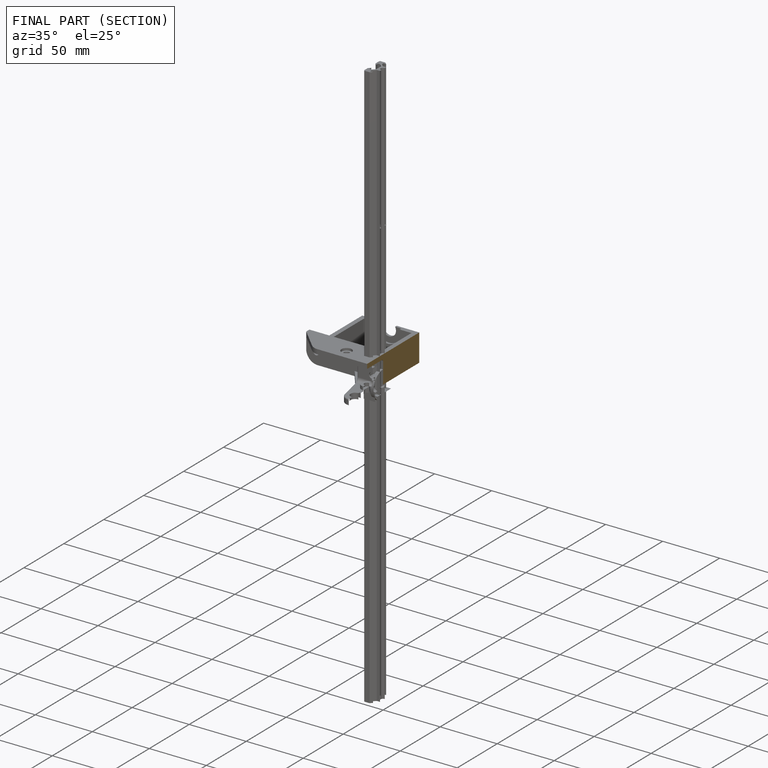
[diagram: finished part — half-section view (interior)]
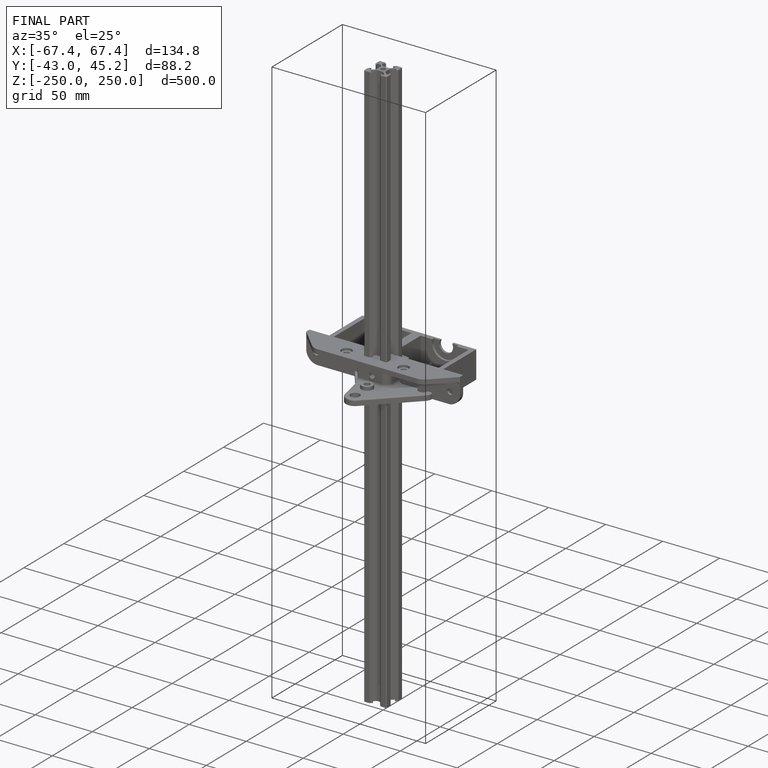
[diagram: finished part — iso view with bounding-box wireframe]
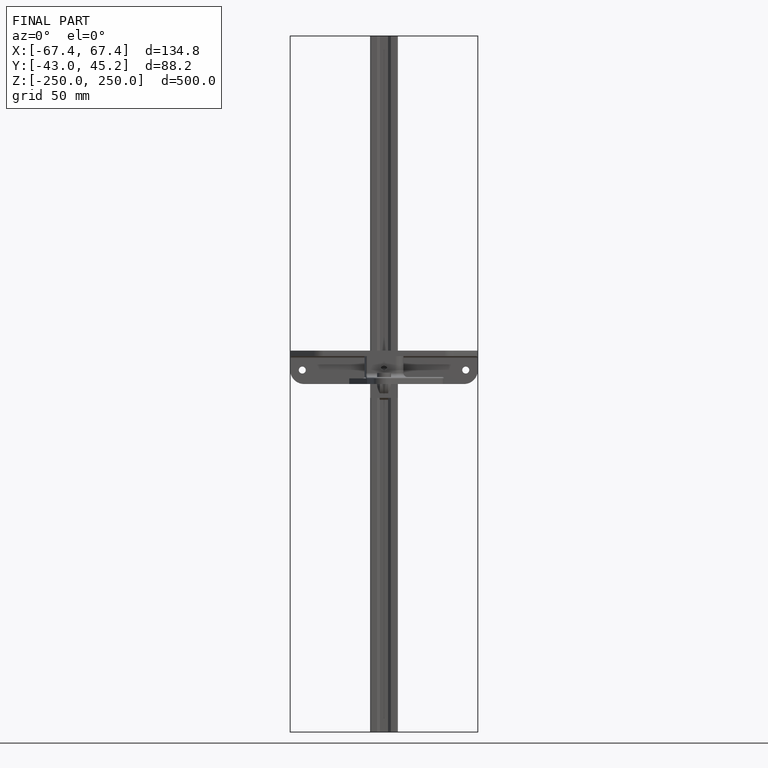
[diagram: finished part — front view with bounding-box wireframe]
